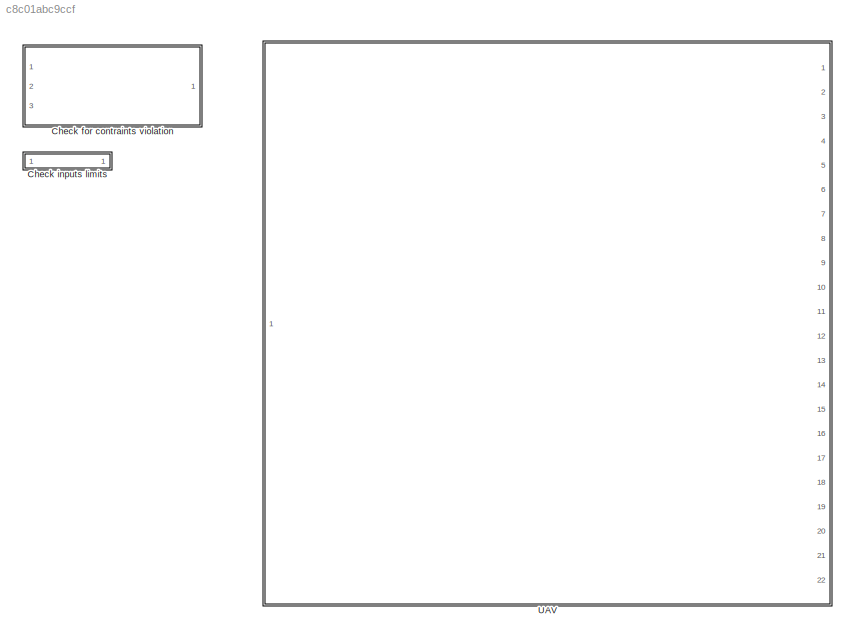
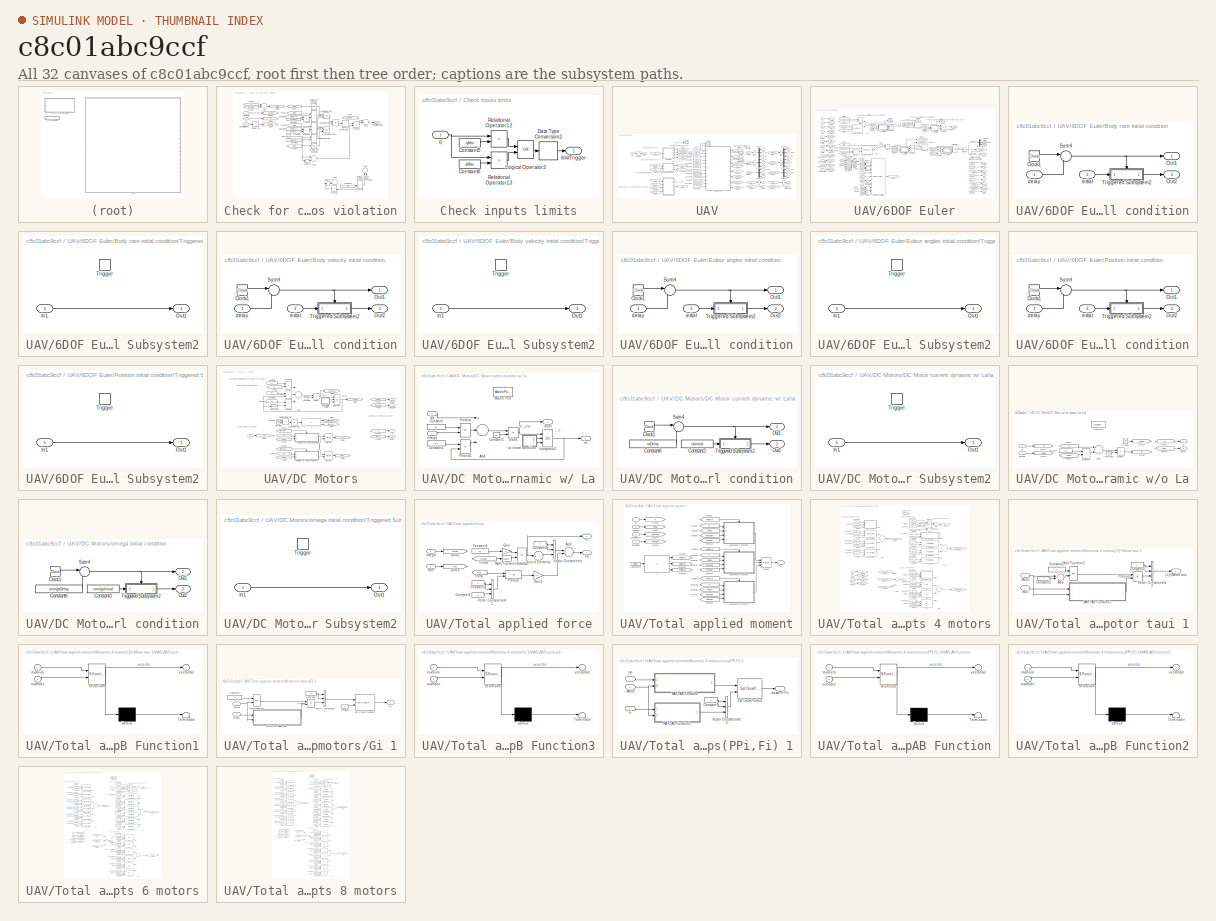
[diagram: thumbnail index - all 32 canvases of the model, root first then tree order]
MODEL slx_c8c01abc9ccf
KIND library
CONFIG AbsTol = auto
CONFIG FixedStep = auto
CONFIG MaxStep = auto
CONFIG MinStep = auto
CONFIG RelTol = 1e-3
CONFIG SampleTimeConstraint = Unconstrained
CONFIG Solver = ode45
CONFIG SolverMode = Auto
CONFIG SolverName = ode45
CONFIG StartTime = 0.0
CONFIG StopTime = 10.0
BLOCK [SubSystem] Check for contraints violation
  Ports = [3, 1]
  RequestExecContextInheritance = off
  Variant = off
BLOCK [Sum] Check for contraints violation/Add
  InputSameDT = off
  Inputs = +-
  OutDataTypeStr = Inherit: Inherit via internal rule
  Ports = [2, 1]
  SaturateOnIntegerOverflow = off
BLOCK [Sum] Check for contraints violation/Add1
  InputSameDT = off
  OutDataTypeStr = Inherit: Inherit via internal rule
  Ports = [2, 1]
  SaturateOnIntegerOverflow = off
BLOCK [Sum] Check for contraints violation/Add2
  InputSameDT = off
  Inputs = +-
  OutDataTypeStr = Inherit: Inherit via internal rule
  Ports = [2, 1]
  SaturateOnIntegerOverflow = off
BLOCK [Sum] Check for contraints violation/Add3
  Commented = on
  InputSameDT = off
  OutDataTypeStr = Inherit: Inherit via internal rule
  Ports = [2, 1]
  SaturateOnIntegerOverflow = off
BLOCK [Sum] Check for contraints violation/Add4
  Commented = on
  InputSameDT = off
  Inputs = -+
  OutDataTypeStr = Inherit: Inherit via internal rule
  Ports = [2, 1]
  SaturateOnIntegerOverflow = off
BLOCK [Clock] Check for contraints violation/Clock
BLOCK [Reference] Check for contraints violation/Compare To Constant  REF=simulink/Logic and Bit
Operations/Compare
To Constant
  Ports = [1, 1]
  SourceBlock = simulink/Logic and Bit\nOperations/Compare\nTo Constant
  SourceType = Compare To Constant
BLOCK [Reference] Check for contraints violation/Compare To Constant3  REF=simulink/Logic and Bit
Operations/Compare
To Constant
  Ports = [1, 1]
  SourceBlock = simulink/Logic and Bit\nOperations/Compare\nTo Constant
  SourceType = Compare To Constant
BLOCK [Constant] Check for contraints violation/Constant1
  Commented = on
BLOCK [Constant] Check for contraints violation/Constant2
  Value = currentTimeThreshold
BLOCK [Constant] Check for contraints violation/Constant3
  Commented = on
  Value = 0.05
BLOCK [Constant] Check for contraints violation/Constant4
  Value = violationFactor
BLOCK [Constant] Check for contraints violation/Constant5
  Value = lowerQTol
BLOCK [Constant] Check for contraints violation/Constant6
  Value = violationFactor
BLOCK [Constant] Check for contraints violation/Constant7
  Value = upperQTol
BLOCK [DataTypeConversion] Check for contraints violation/Data Type Conversion2
  OutDataTypeStr = double
  RndMeth = Floor
  SaturateOnIntegerOverflow = off
BLOCK [From] Check for contraints violation/From
  GotoTag = errorQ
BLOCK [From] Check for contraints violation/From1
  GotoTag = qDesired
BLOCK [From] Check for contraints violation/From2
  GotoTag = errorQ
BLOCK [From] Check for contraints violation/From3
  GotoTag = errorQ
BLOCK [From] Check for contraints violation/From4
  GotoTag = errorQ
BLOCK [From] Check for contraints violation/From5
  GotoTag = q
BLOCK [From] Check for contraints violation/From7
  GotoTag = sumVioliationQ
BLOCK [Goto] Check for contraints violation/Goto1
  GotoTag = q
BLOCK [Goto] Check for contraints violation/Goto33
  GotoTag = qDesired
BLOCK [Goto] Check for contraints violation/Goto4
  GotoTag = sumVioliationQ
BLOCK [Goto] Check for contraints violation/Goto5
  GotoTag = errorQ
BLOCK [Logic] Check for contraints violation/Logical Operator
  AllPortsSameDT = off
  Inputs = 3
  OutDataTypeStr = boolean
  Ports = [3, 1]
BLOCK [Logic] Check for contraints violation/Logical Operator1
  AllPortsSameDT = off
  Inputs = 3
  OutDataTypeStr = boolean
  Ports = [3, 1]
BLOCK [Logic] Check for contraints violation/Logical Operator2
  AllPortsSameDT = off
  Operator = OR
  OutDataTypeStr = boolean
  Ports = [2, 1]
BLOCK [Memory] Check for contraints violation/Memory1
BLOCK [Memory] Check for contraints violation/Memory11
BLOCK [Memory] Check for contraints violation/Memory2
  Commented = on
BLOCK [Product] Check for contraints violation/Product
  InputSameDT = off
  OutDataTypeStr = Inherit: Inherit via internal rule
  Ports = [2, 1]
  RndMeth = Floor
  SaturateOnIntegerOverflow = off
BLOCK [Product] Check for contraints violation/Product1
  InputSameDT = off
  OutDataTypeStr = Inherit: Inherit via internal rule
  Ports = [2, 1]
  RndMeth = Floor
  SaturateOnIntegerOverflow = off
BLOCK [Product] Check for contraints violation/Product2
  InputSameDT = off
  OutDataTypeStr = Inherit: Inherit via internal rule
  Ports = [2, 1]
  RndMeth = Floor
  SaturateOnIntegerOverflow = off
BLOCK [Product] Check for contraints violation/Product3
  Commented = on
  InputSameDT = off
  OutDataTypeStr = Inherit: Inherit via internal rule
  Ports = [2, 1]
  RndMeth = Floor
  SaturateOnIntegerOverflow = off
BLOCK [RelationalOperator] Check for contraints violation/Relational Operator
  InputSameDT = off
  Operator = >
  OutDataTypeStr = boolean
  Ports = [2, 1]
  ZeroCross = off
BLOCK [RelationalOperator] Check for contraints violation/Relational Operator1
  InputSameDT = off
  Operator = >
  OutDataTypeStr = boolean
  Ports = [2, 1]
  ZeroCross = off
BLOCK [RelationalOperator] Check for contraints violation/Relational Operator2
  InputSameDT = off
  Operator = <
  OutDataTypeStr = boolean
  Ports = [2, 1]
  ZeroCross = off
BLOCK [RelationalOperator] Check for contraints violation/Relational Operator3
  Commented = on
  InputSameDT = off
  Operator = <
  OutDataTypeStr = boolean
  Ports = [2, 1]
  ZeroCross = off
BLOCK [Inport] Check for contraints violation/q
  IconDisplay = Port number
  Port = 2
BLOCK [Inport] Check for contraints violation/qDesired
  IconDisplay = Port number
BLOCK [Inport] Check for contraints violation/sumVioliationQ
  IconDisplay = Port number
  Port = 3
BLOCK [Outport] Check for contraints violation/sumVioliationQOut
  IconDisplay = Port number
BLOCK [SubSystem] Check inputs limits
  Ports = [1, 1]
  RequestExecContextInheritance = off
  Variant = off
BLOCK [Constant] Check inputs limits/Constant5
  Value = qMin
BLOCK [Constant] Check inputs limits/Constant6
  Value = qMax
BLOCK [DataTypeConversion] Check inputs limits/Data Type Conversion2
  OutDataTypeStr = double
  RndMeth = Floor
  SaturateOnIntegerOverflow = off
BLOCK [Logic] Check inputs limits/Logical Operator2
  AllPortsSameDT = off
  Operator = OR
  OutDataTypeStr = boolean
  Ports = [2, 1]
BLOCK [RelationalOperator] Check inputs limits/Relational Operator12
  InputSameDT = off
  Operator = <
  OutDataTypeStr = boolean
  Ports = [2, 1]
  ZeroCross = off
BLOCK [RelationalOperator] Check inputs limits/Relational Operator13
  InputSameDT = off
  Operator = >
  OutDataTypeStr = boolean
  Ports = [2, 1]
  ZeroCross = off
BLOCK [Outport] Check inputs limits/limitTrigger
  IconDisplay = Port number
BLOCK [Inport] Check inputs limits/q
  IconDisplay = Port number
BLOCK [SubSystem] UAV
  Ports = [1, 22]
  RequestExecContextInheritance = off
  Variant = off
BLOCK [Scope] UAV/ omega
  Commented = on
  Ports = [1]
  ScopeSpecificationString = Simulink.scopes.TimeScopeBlockCfg('CurrentConfiguration', extmgr.ConfigurationSet(extmgr.Configuration('Core','General UI',true),extmgr.Configuration('Core','Source UI',true),extmgr.Configuration('Sources','WiredSimulink',true),extmgr.Configuration('Visuals','Time Domain',true,'SerializedDisplays',{struct('MinYLimReal','-120.20208','MaxYLimReal','1081.8187','YLabelReal','','MinYLimMag',' 0.00000',...<+1473ch>
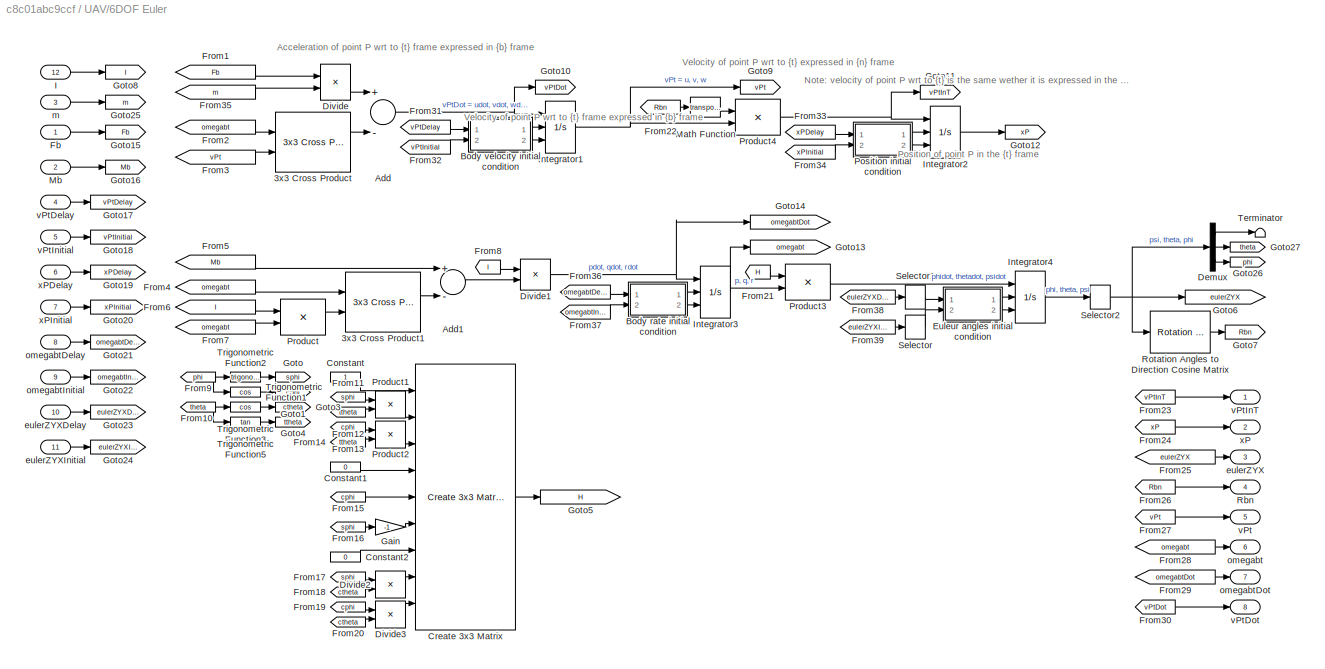
BLOCK [SubSystem] UAV/6DOF Euler
  Ports = [12, 8]
  RequestExecContextInheritance = off
  Variant = off
BLOCK [Reference] UAV/6DOF Euler/3x3 Cross Product  REF=aerolibutil/3x3 Cross Product
  Ports = [2, 1]
  SourceBlock = aerolibutil/3x3 Cross Product
  SourceType = CrossProduct
BLOCK [Reference] UAV/6DOF Euler/3x3 Cross Product1  REF=aerolibutil/3x3 Cross Product
  Ports = [2, 1]
  SourceBlock = aerolibutil/3x3 Cross Product
  SourceType = CrossProduct
BLOCK [Sum] UAV/6DOF Euler/Add
  InputSameDT = off
  Inputs = +-
  OutDataTypeStr = Inherit: Inherit via internal rule
  Ports = [2, 1]
  SaturateOnIntegerOverflow = off
BLOCK [Sum] UAV/6DOF Euler/Add1
  InputSameDT = off
  Inputs = +-
  OutDataTypeStr = Inherit: Inherit via internal rule
  Ports = [2, 1]
  SaturateOnIntegerOverflow = off
BLOCK [SubSystem] UAV/6DOF Euler/Body rate initial condition
  Ports = [2, 2]
  RequestExecContextInheritance = off
  Variant = off
BLOCK [Clock] UAV/6DOF Euler/Body rate initial condition/Clock1
BLOCK [Outport] UAV/6DOF Euler/Body rate initial condition/Out1
  IconDisplay = Port number
BLOCK [Outport] UAV/6DOF Euler/Body rate initial condition/Out2
  IconDisplay = Port number
  Port = 2
BLOCK [Sum] UAV/6DOF Euler/Body rate initial condition/Sum4
  IconShape = round
  InputSameDT = off
  Inputs = |-+
  OutDataTypeStr = Inherit: Inherit via internal rule
  Ports = [2, 1]
  SaturateOnIntegerOverflow = off
BLOCK [SubSystem] UAV/6DOF Euler/Body rate initial condition/Triggered Subsystem2
  Ports = [1, 1, 0, 1]
  RequestExecContextInheritance = off
  TreatAsAtomicUnit = on
  Variant = off
BLOCK [Inport] UAV/6DOF Euler/Body rate initial condition/Triggered Subsystem2/In1
  IconDisplay = Port number
BLOCK [Outport] UAV/6DOF Euler/Body rate initial condition/Triggered Subsystem2/Out1
  IconDisplay = Port number
BLOCK [TriggerPort] UAV/6DOF Euler/Body rate initial condition/Triggered Subsystem2/Trigger
  Ports = []
  StatesWhenEnabling = held
  TriggerType = falling
  VariantControl = Variant
BLOCK [Inport] UAV/6DOF Euler/Body rate initial condition/delay
  IconDisplay = Port number
BLOCK [Inport] UAV/6DOF Euler/Body rate initial condition/initial
  IconDisplay = Port number
  Port = 2
BLOCK [SubSystem] UAV/6DOF Euler/Body velocity initial condition
  Ports = [2, 2]
  RequestExecContextInheritance = off
  Variant = off
BLOCK [Clock] UAV/6DOF Euler/Body velocity initial condition/Clock1
BLOCK [Outport] UAV/6DOF Euler/Body velocity initial condition/Out1
  IconDisplay = Port number
BLOCK [Outport] UAV/6DOF Euler/Body velocity initial condition/Out2
  IconDisplay = Port number
  Port = 2
BLOCK [Sum] UAV/6DOF Euler/Body velocity initial condition/Sum4
  IconShape = round
  InputSameDT = off
  Inputs = |-+
  OutDataTypeStr = Inherit: Inherit via internal rule
  Ports = [2, 1]
  SaturateOnIntegerOverflow = off
BLOCK [SubSystem] UAV/6DOF Euler/Body velocity initial condition/Triggered Subsystem2
  Ports = [1, 1, 0, 1]
  RequestExecContextInheritance = off
  TreatAsAtomicUnit = on
  Variant = off
BLOCK [Inport] UAV/6DOF Euler/Body velocity initial condition/Triggered Subsystem2/In1
  IconDisplay = Port number
BLOCK [Outport] UAV/6DOF Euler/Body velocity initial condition/Triggered Subsystem2/Out1
  IconDisplay = Port number
BLOCK [TriggerPort] UAV/6DOF Euler/Body velocity initial condition/Triggered Subsystem2/Trigger
  Ports = []
  StatesWhenEnabling = held
  TriggerType = falling
  VariantControl = Variant
BLOCK [Inport] UAV/6DOF Euler/Body velocity initial condition/delay
  IconDisplay = Port number
BLOCK [Inport] UAV/6DOF Euler/Body velocity initial condition/initial
  IconDisplay = Port number
  Port = 2
BLOCK [Constant] UAV/6DOF Euler/Constant
BLOCK [Constant] UAV/6DOF Euler/Constant1
  Value = 0
BLOCK [Constant] UAV/6DOF Euler/Constant2
  Value = 0
BLOCK [Reference] UAV/6DOF Euler/Create 3x3 Matrix  REF=aerolibutil/Create 3x3 Matrix
  Ports = [9, 1]
  SourceBlock = aerolibutil/Create 3x3 Matrix
  SourceType = Create 3x3 Matrix
BLOCK [Demux] UAV/6DOF Euler/Demux
  DisplayOption = bar
  Outputs = 3
  Ports = [1, 3]
BLOCK [Product] UAV/6DOF Euler/Divide
  InputSameDT = off
  Inputs = */
  OutDataTypeStr = Inherit: Inherit via internal rule
  Ports = [2, 1]
  RndMeth = Floor
  SaturateOnIntegerOverflow = off
BLOCK [Product] UAV/6DOF Euler/Divide1
  InputSameDT = off
  Inputs = /*
  Multiplication = Matrix(*)
  OutDataTypeStr = Inherit: Inherit via internal rule
  Ports = [2, 1]
  RndMeth = Floor
  SaturateOnIntegerOverflow = off
BLOCK [Product] UAV/6DOF Euler/Divide2
  InputSameDT = off
  Inputs = */
  OutDataTypeStr = Inherit: Inherit via internal rule
  Ports = [2, 1]
  RndMeth = Floor
  SaturateOnIntegerOverflow = off
BLOCK [Product] UAV/6DOF Euler/Divide3
  InputSameDT = off
  Inputs = */
  OutDataTypeStr = Inherit: Inherit via internal rule
  Ports = [2, 1]
  RndMeth = Floor
  SaturateOnIntegerOverflow = off
BLOCK [SubSystem] UAV/6DOF Euler/Euleur angles initial condition
  Ports = [2, 2]
  RequestExecContextInheritance = off
  Variant = off
BLOCK [Clock] UAV/6DOF Euler/Euleur angles initial condition/Clock1
BLOCK [Outport] UAV/6DOF Euler/Euleur angles initial condition/Out1
  IconDisplay = Port number
BLOCK [Outport] UAV/6DOF Euler/Euleur angles initial condition/Out2
  IconDisplay = Port number
  Port = 2
BLOCK [Sum] UAV/6DOF Euler/Euleur angles initial condition/Sum4
  IconShape = round
  InputSameDT = off
  Inputs = |-+
  OutDataTypeStr = Inherit: Inherit via internal rule
  Ports = [2, 1]
  SaturateOnIntegerOverflow = off
BLOCK [SubSystem] UAV/6DOF Euler/Euleur angles initial condition/Triggered Subsystem2
  Ports = [1, 1, 0, 1]
  RequestExecContextInheritance = off
  TreatAsAtomicUnit = on
  Variant = off
BLOCK [Inport] UAV/6DOF Euler/Euleur angles initial condition/Triggered Subsystem2/In1
  IconDisplay = Port number
BLOCK [Outport] UAV/6DOF Euler/Euleur angles initial condition/Triggered Subsystem2/Out1
  IconDisplay = Port number
BLOCK [TriggerPort] UAV/6DOF Euler/Euleur angles initial condition/Triggered Subsystem2/Trigger
  Ports = []
  StatesWhenEnabling = held
  TriggerType = falling
  VariantControl = Variant
BLOCK [Inport] UAV/6DOF Euler/Euleur angles initial condition/delay
  IconDisplay = Port number
BLOCK [Inport] UAV/6DOF Euler/Euleur angles initial condition/initial
  IconDisplay = Port number
  Port = 2
BLOCK [Inport] UAV/6DOF Euler/Fb
  IconDisplay = Port number
BLOCK [From] UAV/6DOF Euler/From1
  GotoTag = Fb
BLOCK [From] UAV/6DOF Euler/From10
  GotoTag = theta
BLOCK [From] UAV/6DOF Euler/From11
  GotoTag = sphi
BLOCK [From] UAV/6DOF Euler/From12
  GotoTag = ttheta
BLOCK [From] UAV/6DOF Euler/From13
  GotoTag = cphi
BLOCK [From] UAV/6DOF Euler/From14
  GotoTag = ttheta
BLOCK [From] UAV/6DOF Euler/From15
  GotoTag = cphi
BLOCK [From] UAV/6DOF Euler/From16
  GotoTag = sphi
BLOCK [From] UAV/6DOF Euler/From17
  GotoTag = sphi
BLOCK [From] UAV/6DOF Euler/From18
  GotoTag = ctheta
BLOCK [From] UAV/6DOF Euler/From19
  GotoTag = cphi
BLOCK [From] UAV/6DOF Euler/From2
  GotoTag = omegabt
BLOCK [From] UAV/6DOF Euler/From20
  GotoTag = ctheta
BLOCK [From] UAV/6DOF Euler/From21
  GotoTag = H
BLOCK [From] UAV/6DOF Euler/From22
  GotoTag = Rbn
BLOCK [From] UAV/6DOF Euler/From23
  GotoTag = vPtInT
BLOCK [From] UAV/6DOF Euler/From24
  GotoTag = xP
BLOCK [From] UAV/6DOF Euler/From25
  GotoTag = eulerZYX
BLOCK [From] UAV/6DOF Euler/From26
  GotoTag = Rbn
BLOCK [From] UAV/6DOF Euler/From27
  GotoTag = vPt
BLOCK [From] UAV/6DOF Euler/From28
  GotoTag = omegabt
BLOCK [From] UAV/6DOF Euler/From29
  GotoTag = omegabtDot
BLOCK [From] UAV/6DOF Euler/From3
  GotoTag = vPt
BLOCK [From] UAV/6DOF Euler/From30
  GotoTag = vPtDot
BLOCK [From] UAV/6DOF Euler/From31
  GotoTag = vPtDelay
BLOCK [From] UAV/6DOF Euler/From32
  GotoTag = vPtInitial
BLOCK [From] UAV/6DOF Euler/From33
  GotoTag = xPDelay
BLOCK [From] UAV/6DOF Euler/From34
  GotoTag = xPInitial
BLOCK [From] UAV/6DOF Euler/From35
  GotoTag = m
BLOCK [From] UAV/6DOF Euler/From36
  GotoTag = omegabtDelay
BLOCK [From] UAV/6DOF Euler/From37
  GotoTag = omegabtInitial
BLOCK [From] UAV/6DOF Euler/From38
  GotoTag = eulerZYXDelay
BLOCK [From] UAV/6DOF Euler/From39
  GotoTag = eulerZYXInitial
BLOCK [From] UAV/6DOF Euler/From4
  GotoTag = omegabt
BLOCK [From] UAV/6DOF Euler/From5
  GotoTag = Mb
BLOCK [From] UAV/6DOF Euler/From6
  GotoTag = I
BLOCK [From] UAV/6DOF Euler/From7
  GotoTag = omegabt
BLOCK [From] UAV/6DOF Euler/From8
  GotoTag = I
BLOCK [From] UAV/6DOF Euler/From9
  GotoTag = phi
BLOCK [Gain] UAV/6DOF Euler/Gain
  Gain = -1
  OutDataTypeStr = Inherit: Inherit via internal rule
  ParamDataTypeStr = Inherit: Inherit via internal rule
  SaturateOnIntegerOverflow = off
BLOCK [Goto] UAV/6DOF Euler/Goto
  GotoTag = sphi
BLOCK [Goto] UAV/6DOF Euler/Goto1
  GotoTag = cphi
BLOCK [Goto] UAV/6DOF Euler/Goto10
  GotoTag = vPtDot
BLOCK [Goto] UAV/6DOF Euler/Goto11
  GotoTag = vPtInT
BLOCK [Goto] UAV/6DOF Euler/Goto12
  GotoTag = xP
BLOCK [Goto] UAV/6DOF Euler/Goto13
  GotoTag = omegabt
BLOCK [Goto] UAV/6DOF Euler/Goto14
  GotoTag = omegabtDot
BLOCK [Goto] UAV/6DOF Euler/Goto15
  GotoTag = Fb
BLOCK [Goto] UAV/6DOF Euler/Goto16
  GotoTag = Mb
BLOCK [Goto] UAV/6DOF Euler/Goto17
  GotoTag = vPtDelay
BLOCK [Goto] UAV/6DOF Euler/Goto18
  GotoTag = vPtInitial
BLOCK [Goto] UAV/6DOF Euler/Goto19
  GotoTag = xPDelay
BLOCK [Goto] UAV/6DOF Euler/Goto20
  GotoTag = xPInitial
BLOCK [Goto] UAV/6DOF Euler/Goto21
  GotoTag = omegabtDelay
BLOCK [Goto] UAV/6DOF Euler/Goto22
  GotoTag = omegabtInitial
BLOCK [Goto] UAV/6DOF Euler/Goto23
  GotoTag = eulerZYXDelay
BLOCK [Goto] UAV/6DOF Euler/Goto24
  GotoTag = eulerZYXInitial
BLOCK [Goto] UAV/6DOF Euler/Goto25
  GotoTag = m
BLOCK [Goto] UAV/6DOF Euler/Goto26
  GotoTag = phi
BLOCK [Goto] UAV/6DOF Euler/Goto27
  GotoTag = theta
BLOCK [Goto] UAV/6DOF Euler/Goto3
  GotoTag = ctheta
BLOCK [Goto] UAV/6DOF Euler/Goto4
  GotoTag = ttheta
BLOCK [Goto] UAV/6DOF Euler/Goto5
  GotoTag = H
BLOCK [Goto] UAV/6DOF Euler/Goto6
  GotoTag = eulerZYX
BLOCK [Goto] UAV/6DOF Euler/Goto7
  GotoTag = Rbn
BLOCK [Goto] UAV/6DOF Euler/Goto8
  GotoTag = I
BLOCK [Goto] UAV/6DOF Euler/Goto9
  GotoTag = vPt
BLOCK [Inport] UAV/6DOF Euler/I
  IconDisplay = Port number
  Port = 12
BLOCK [Integrator] UAV/6DOF Euler/Integrator1
  ExternalReset = falling
  InitialConditionSource = external
  Ports = [3, 1]
BLOCK [Integrator] UAV/6DOF Euler/Integrator2
  ExternalReset = falling
  InitialConditionSource = external
  Ports = [3, 1]
BLOCK [Integrator] UAV/6DOF Euler/Integrator3
  ExternalReset = falling
  InitialConditionSource = external
  Ports = [3, 1]
BLOCK [Integrator] UAV/6DOF Euler/Integrator4
  ExternalReset = falling
  InitialConditionSource = external
  Ports = [3, 1]
  WrapState = on
  WrappedStateLowerValue = -[pi;pi/2;pi]
  WrappedStateUpperValue = [pi;pi/2;pi]
BLOCK [Math] UAV/6DOF Euler/Math Function
  Operator = transpose
  Ports = [1, 1]
BLOCK [Inport] UAV/6DOF Euler/Mb
  IconDisplay = Port number
  Port = 2
BLOCK [SubSystem] UAV/6DOF Euler/Position initial condition
  Ports = [2, 2]
  RequestExecContextInheritance = off
  Variant = off
BLOCK [Clock] UAV/6DOF Euler/Position initial condition/Clock1
BLOCK [Outport] UAV/6DOF Euler/Position initial condition/Out1
  IconDisplay = Port number
BLOCK [Outport] UAV/6DOF Euler/Position initial condition/Out2
  IconDisplay = Port number
  Port = 2
BLOCK [Sum] UAV/6DOF Euler/Position initial condition/Sum4
  IconShape = round
  InputSameDT = off
  Inputs = |-+
  OutDataTypeStr = Inherit: Inherit via internal rule
  Ports = [2, 1]
  SaturateOnIntegerOverflow = off
BLOCK [SubSystem] UAV/6DOF Euler/Position initial condition/Triggered Subsystem2
  Ports = [1, 1, 0, 1]
  RequestExecContextInheritance = off
  TreatAsAtomicUnit = on
  Variant = off
BLOCK [Inport] UAV/6DOF Euler/Position initial condition/Triggered Subsystem2/In1
  IconDisplay = Port number
BLOCK [Outport] UAV/6DOF Euler/Position initial condition/Triggered Subsystem2/Out1
  IconDisplay = Port number
BLOCK [TriggerPort] UAV/6DOF Euler/Position initial condition/Triggered Subsystem2/Trigger
  Ports = []
  StatesWhenEnabling = held
  TriggerType = falling
  VariantControl = Variant
BLOCK [Inport] UAV/6DOF Euler/Position initial condition/delay
  IconDisplay = Port number
BLOCK [Inport] UAV/6DOF Euler/Position initial condition/initial
  IconDisplay = Port number
  Port = 2
BLOCK [Product] UAV/6DOF Euler/Product
  InputSameDT = off
  Multiplication = Matrix(*)
  OutDataTypeStr = Inherit: Inherit via internal rule
  Ports = [2, 1]
  RndMeth = Floor
  SaturateOnIntegerOverflow = off
BLOCK [Product] UAV/6DOF Euler/Product1
  InputSameDT = off
  OutDataTypeStr = Inherit: Inherit via internal rule
  Ports = [2, 1]
  RndMeth = Floor
  SaturateOnIntegerOverflow = off
BLOCK [Product] UAV/6DOF Euler/Product2
  InputSameDT = off
  OutDataTypeStr = Inherit: Inherit via internal rule
  Ports = [2, 1]
  RndMeth = Floor
  SaturateOnIntegerOverflow = off
BLOCK [Product] UAV/6DOF Euler/Product3
  InputSameDT = off
  Multiplication = Matrix(*)
  OutDataTypeStr = Inherit: Inherit via internal rule
  Ports = [2, 1]
  RndMeth = Floor
  SaturateOnIntegerOverflow = off
BLOCK [Product] UAV/6DOF Euler/Product4
  InputSameDT = off
  Multiplication = Matrix(*)
  OutDataTypeStr = Inherit: Inherit via internal rule
  Ports = [2, 1]
  RndMeth = Floor
  SaturateOnIntegerOverflow = off
BLOCK [Outport] UAV/6DOF Euler/Rbn
  IconDisplay = Port number
  Port = 4
BLOCK [Reference] UAV/6DOF Euler/Rotation Angles to Direction Cosine Matrix  REF=aerolibtransform2/Rotation Angles to
Direction Cosine Matrix
  AttributesFormatString = Rotation Order: %<rotationOrder>
  Ports = [1, 1]
  SourceBlock = aerolibtransform2/Rotation Angles to\nDirection Cosine Matrix
  SourceType = Ang2DCM
BLOCK [Selector] UAV/6DOF Euler/Selector
  IndexOptions = Index vector (dialog)
  Indices = [3 2 1]
  InputPortWidth = 3
  OutputSizes = 1
  Ports = [1, 1]
BLOCK [Selector] UAV/6DOF Euler/Selector1
  IndexOptions = Index vector (dialog)
  Indices = [3 2 1]
  InputPortWidth = 3
  OutputSizes = 1
  Ports = [1, 1]
BLOCK [Selector] UAV/6DOF Euler/Selector2
  IndexOptions = Index vector (dialog)
  Indices = [3 2 1]
  InputPortWidth = 3
  OutputSizes = 1
  Ports = [1, 1]
BLOCK [Terminator] UAV/6DOF Euler/Terminator
BLOCK [Trigonometry] UAV/6DOF Euler/Trigonometric Function1
  Operator = cos
  Ports = [1, 1]
BLOCK [Trigonometry] UAV/6DOF Euler/Trigonometric Function2
  Ports = [1, 1]
BLOCK [Trigonometry] UAV/6DOF Euler/Trigonometric Function3
  Operator = cos
  Ports = [1, 1]
BLOCK [Trigonometry] UAV/6DOF Euler/Trigonometric Function5
  Operator = tan
  Ports = [1, 1]
BLOCK [Outport] UAV/6DOF Euler/eulerZYX
  IconDisplay = Port number
  Port = 3
BLOCK [Inport] UAV/6DOF Euler/eulerZYXDelay
  IconDisplay = Port number
  Port = 10
BLOCK [Inport] UAV/6DOF Euler/eulerZYXInitial
  IconDisplay = Port number
  Port = 11
BLOCK [Inport] UAV/6DOF Euler/m
  IconDisplay = Port number
  Port = 3
BLOCK [Outport] UAV/6DOF Euler/omegabt
  IconDisplay = Port number
  Port = 6
BLOCK [Inport] UAV/6DOF Euler/omegabtDelay
  IconDisplay = Port number
  Port = 8
BLOCK [Outport] UAV/6DOF Euler/omegabtDot
  IconDisplay = Port number
  Port = 7
BLOCK [Inport] UAV/6DOF Euler/omegabtInitial
  IconDisplay = Port number
  Port = 9
BLOCK [Outport] UAV/6DOF Euler/vPt
  IconDisplay = Port number
  Port = 5
BLOCK [Inport] UAV/6DOF Euler/vPtDelay
  IconDisplay = Port number
  Port = 4
BLOCK [Outport] UAV/6DOF Euler/vPtDot
  IconDisplay = Port number
  Port = 8
BLOCK [Outport] UAV/6DOF Euler/vPtInT
  IconDisplay = Port number
BLOCK [Inport] UAV/6DOF Euler/vPtInitial
  IconDisplay = Port number
  Port = 5
BLOCK [Outport] UAV/6DOF Euler/xP
  IconDisplay = Port number
  Port = 2
BLOCK [Inport] UAV/6DOF Euler/xPDelay
  IconDisplay = Port number
  Port = 6
BLOCK [Inport] UAV/6DOF Euler/xPInitial
  IconDisplay = Port number
  Port = 7
BLOCK [Constant] UAV/Constant1
  Value = vPtDelay
BLOCK [Constant] UAV/Constant10
  Value = eulerZYXInitial
BLOCK [Constant] UAV/Constant2
  Value = xPInitial
BLOCK [Constant] UAV/Constant3
  Value = omegabtDelay
BLOCK [Constant] UAV/Constant4
  Value = I
BLOCK [Constant] UAV/Constant5
  Value = vPtInitial
BLOCK [Constant] UAV/Constant6
  Value = xPDelay
BLOCK [Constant] UAV/Constant7
  Value = m
BLOCK [Constant] UAV/Constant8
  Value = omegabtInitial
BLOCK [Constant] UAV/Constant9
  Value = eulerZYXDelay
BLOCK [SubSystem] UAV/DC Motors
  Ports = [1, 4]
  RequestExecContextInheritance = off
  Variant = off
BLOCK [Sum] UAV/DC Motors/Add1
  InputSameDT = off
  Inputs = +--
  OutDataTypeStr = Inherit: Inherit via internal rule
  Ports = [3, 1]
  SaturateOnIntegerOverflow = off
BLOCK [Constant] UAV/DC Motors/Constant2
  Value = 0
BLOCK [Constant] UAV/DC Motors/Constant3
  Value = Bm
BLOCK [Constant] UAV/DC Motors/Constant4
  Value = kD
BLOCK [Constant] UAV/DC Motors/Constant5
  Value = Jm
BLOCK [Constant] UAV/DC Motors/Constant6
  Value = km
BLOCK [Constant] UAV/DC Motors/Constant7
  Value = La
BLOCK [SubSystem] UAV/DC Motors/DC Motor current dynamic w// La
  Ports = [2, 2, 0, 0, 0, 0, 0, 1]
  RequestExecContextInheritance = off
  TreatAsAtomicUnit = on
  Variant = off
BLOCK [ActionPort] UAV/DC Motors/DC Motor current dynamic w// La/Action Port
BLOCK [Sum] UAV/DC Motors/DC Motor current dynamic w// La/Add
  InputSameDT = off
  Inputs = +--
  OutDataTypeStr = Inherit: Inherit via internal rule
  Ports = [3, 1]
  SaturateOnIntegerOverflow = off
BLOCK [Constant] UAV/DC Motors/DC Motor current dynamic w// La/Constant
  Value = ke
BLOCK [Constant] UAV/DC Motors/DC Motor current dynamic w// La/Constant1
  Value = Ra
BLOCK [Constant] UAV/DC Motors/DC Motor current dynamic w// La/Constant2
  Value = La
BLOCK [Product] UAV/DC Motors/DC Motor current dynamic w// La/Divide
  InputSameDT = off
  Inputs = */
  OutDataTypeStr = Inherit: Inherit via internal rule
  Ports = [2, 1]
  RndMeth = Floor
  SaturateOnIntegerOverflow = off
BLOCK [Integrator] UAV/DC Motors/DC Motor current dynamic w// La/Integrator2
  ExternalReset = falling
  InitialConditionSource = external
  Ports = [3, 1]
BLOCK [Product] UAV/DC Motors/DC Motor current dynamic w// La/Product
  InputSameDT = off
  OutDataTypeStr = Inherit: Inherit via internal rule
  Ports = [2, 1]
  RndMeth = Floor
  SaturateOnIntegerOverflow = off
BLOCK [Product] UAV/DC Motors/DC Motor current dynamic w// La/Product1
  InputSameDT = off
  OutDataTypeStr = Inherit: Inherit via internal rule
  Ports = [2, 1]
  RndMeth = Floor
  SaturateOnIntegerOverflow = off
BLOCK [Inport] UAV/DC Motors/DC Motor current dynamic w// La/Va
  IconDisplay = Port number
BLOCK [Outport] UAV/DC Motors/DC Motor current dynamic w// La/ia
  IconDisplay = Port number
BLOCK [SubSystem] UAV/DC Motors/DC Motor current dynamic w// La/ia initial condition
  Ports = [0, 2]
  RequestExecContextInheritance = off
  Variant = off
BLOCK [Clock] UAV/DC Motors/DC Motor current dynamic w// La/ia initial condition/Clock1
BLOCK [Constant] UAV/DC Motors/DC Motor current dynamic w// La/ia initial condition/Constant3
  Value = iaInitial
BLOCK [Constant] UAV/DC Motors/DC Motor current dynamic w// La/ia initial condition/Constant6
  Value = iaDelay
BLOCK [Outport] UAV/DC Motors/DC Motor current dynamic w// La/ia initial condition/Out1
  IconDisplay = Port number
BLOCK [Outport] UAV/DC Motors/DC Motor current dynamic w// La/ia initial condition/Out2
  IconDisplay = Port number
  Port = 2
BLOCK [Sum] UAV/DC Motors/DC Motor current dynamic w// La/ia initial condition/Sum4
  IconShape = round
  InputSameDT = off
  Inputs = |-+
  OutDataTypeStr = Inherit: Inherit via internal rule
  Ports = [2, 1]
  SaturateOnIntegerOverflow = off
BLOCK [SubSystem] UAV/DC Motors/DC Motor current dynamic w// La/ia initial condition/Triggered Subsystem2
  Ports = [1, 1, 0, 1]
  RequestExecContextInheritance = off
  TreatAsAtomicUnit = on
  Variant = off
BLOCK [Inport] UAV/DC Motors/DC Motor current dynamic w// La/ia initial condition/Triggered Subsystem2/In1
  IconDisplay = Port number
BLOCK [Outport] UAV/DC Motors/DC Motor current dynamic w// La/ia initial condition/Triggered Subsystem2/Out1
  IconDisplay = Port number
BLOCK [TriggerPort] UAV/DC Motors/DC Motor current dynamic w// La/ia initial condition/Triggered Subsystem2/Trigger
  Ports = []
  StatesWhenEnabling = held
  TriggerType = falling
  VariantControl = Variant
BLOCK [Outport] UAV/DC Motors/DC Motor current dynamic w// La/iaDot
  IconDisplay = Port number
  Port = 2
BLOCK [Inport] UAV/DC Motors/DC Motor current dynamic w// La/omega
  IconDisplay = Port number
  Port = 2
BLOCK [SubSystem] UAV/DC Motors/DC Motor current dynamic w//o La
  Ports = [2, 2, 0, 0, 0, 0, 0, 1]
  RequestExecContextInheritance = off
  TreatAsAtomicUnit = on
  Variant = off
BLOCK [ActionPort] UAV/DC Motors/DC Motor current dynamic w//o La/Action Port
BLOCK [Sum] UAV/DC Motors/DC Motor current dynamic w//o La/Add2
  InputSameDT = off
  Inputs = +-
  OutDataTypeStr = Inherit: Inherit via internal rule
  Ports = [2, 1]
  SaturateOnIntegerOverflow = off
BLOCK [Constant] UAV/DC Motors/DC Motor current dynamic w//o La/Constant7
  Value = ke
BLOCK [Constant] UAV/DC Motors/DC Motor current dynamic w//o La/Constant9
  Value = Ra
BLOCK [Product] UAV/DC Motors/DC Motor current dynamic w//o La/Divide2
  InputSameDT = off
  Inputs = */
  OutDataTypeStr = Inherit: Inherit via internal rule
  Ports = [2, 1]
  RndMeth = Floor
  SaturateOnIntegerOverflow = off
BLOCK [From] UAV/DC Motors/DC Motor current dynamic w//o La/From1
  GotoTag = ia
BLOCK [From] UAV/DC Motors/DC Motor current dynamic w//o La/From2
  GotoTag = iaDot
BLOCK [From] UAV/DC Motors/DC Motor current dynamic w//o La/From7
  GotoTag = Va
BLOCK [From] UAV/DC Motors/DC Motor current dynamic w//o La/From8
  GotoTag = omega
BLOCK [Goto] UAV/DC Motors/DC Motor current dynamic w//o La/Goto1
  GotoTag = Va
BLOCK [Goto] UAV/DC Motors/DC Motor current dynamic w//o La/Goto2
  GotoTag = omega
BLOCK [Goto] UAV/DC Motors/DC Motor current dynamic w//o La/Goto5
  GotoTag = ia
BLOCK [Goto] UAV/DC Motors/DC Motor current dynamic w//o La/Goto7
  GotoTag = iaDot
BLOCK [Ground] UAV/DC Motors/DC Motor current dynamic w//o La/Ground
BLOCK [Product] UAV/DC Motors/DC Motor current dynamic w//o La/Product5
  InputSameDT = off
  OutDataTypeStr = Inherit: Inherit via internal rule
  Ports = [2, 1]
  RndMeth = Floor
  SaturateOnIntegerOverflow = off
BLOCK [Inport] UAV/DC Motors/DC Motor current dynamic w//o La/Va
  IconDisplay = Port number
BLOCK [Outport] UAV/DC Motors/DC Motor current dynamic w//o La/ia
  IconDisplay = Port number
BLOCK [Outport] UAV/DC Motors/DC Motor current dynamic w//o La/iaDot
  IconDisplay = Port number
  Port = 2
BLOCK [Inport] UAV/DC Motors/DC Motor current dynamic w//o La/omega
  IconDisplay = Port number
  Port = 2
BLOCK [Product] UAV/DC Motors/Divide1
  InputSameDT = off
  Inputs = */
  OutDataTypeStr = Inherit: Inherit via internal rule
  Ports = [2, 1]
  RndMeth = Floor
  SaturateOnIntegerOverflow = off
BLOCK [From] UAV/DC Motors/From
  GotoTag = Va
BLOCK [From] UAV/DC Motors/From1
  GotoTag = withLaEnable
BLOCK [From] UAV/DC Motors/From10
  GotoTag = withoutLaEnable
BLOCK [From] UAV/DC Motors/From2
  GotoTag = ia
BLOCK [From] UAV/DC Motors/From3
  GotoTag = ia
BLOCK [From] UAV/DC Motors/From4
  GotoTag = omega
BLOCK [From] UAV/DC Motors/From5
  GotoTag = omegaDot
BLOCK [From] UAV/DC Motors/From6
  GotoTag = iaDot
BLOCK [From] UAV/DC Motors/From7
  GotoTag = omega
BLOCK [From] UAV/DC Motors/From8
  GotoTag = Va
BLOCK [From] UAV/DC Motors/From9
  GotoTag = omega
BLOCK [Goto] UAV/DC Motors/Goto1
  GotoTag = omega
BLOCK [Goto] UAV/DC Motors/Goto2
  GotoTag = Va
BLOCK [Goto] UAV/DC Motors/Goto3
  GotoTag = omegaDot
BLOCK [Goto] UAV/DC Motors/Goto4
  GotoTag = withLaEnable
BLOCK [Goto] UAV/DC Motors/Goto5
  GotoTag = ia
BLOCK [Goto] UAV/DC Motors/Goto6
  GotoTag = iaDot
BLOCK [Goto] UAV/DC Motors/Goto7
  GotoTag = withoutLaEnable
BLOCK [If] UAV/DC Motors/If
  IfExpression = u1 == 0
  Ports = [1, 2]
BLOCK [Integrator] UAV/DC Motors/Integrator1
  ExternalReset = falling
  InitialConditionSource = external
  Ports = [3, 1]
BLOCK [Logic] UAV/DC Motors/Logical Operator
  AllPortsSameDT = off
  Inputs = 1
  Operator = OR
  OutDataTypeStr = boolean
  Ports = [1, 1]
BLOCK [Math] UAV/DC Motors/Math Function
  Operator = square
  Ports = [1, 1]
BLOCK [Merge] UAV/DC Motors/Merge
  Ports = [2, 1]
BLOCK [Merge] UAV/DC Motors/Merge1
  Ports = [2, 1]
BLOCK [Product] UAV/DC Motors/Product2
  InputSameDT = off
  OutDataTypeStr = Inherit: Inherit via internal rule
  Ports = [2, 1]
  RndMeth = Floor
  SaturateOnIntegerOverflow = off
BLOCK [Product] UAV/DC Motors/Product3
  InputSameDT = off
  OutDataTypeStr = Inherit: Inherit via internal rule
  Ports = [2, 1]
  RndMeth = Floor
  SaturateOnIntegerOverflow = off
BLOCK [Product] UAV/DC Motors/Product4
  InputSameDT = off
  OutDataTypeStr = Inherit: Inherit via internal rule
  Ports = [2, 1]
  RndMeth = Floor
  SaturateOnIntegerOverflow = off
BLOCK [RelationalOperator] UAV/DC Motors/Relational Operator
  InputSameDT = off
  Operator = ==
  OutDataTypeStr = boolean
  Ports = [2, 1]
BLOCK [Inport] UAV/DC Motors/Va
  IconDisplay = Port number
BLOCK [Outport] UAV/DC Motors/ia
  IconDisplay = Port number
  Port = 3
BLOCK [Outport] UAV/DC Motors/iaDot
  IconDisplay = Port number
  Port = 4
BLOCK [Outport] UAV/DC Motors/omega
  IconDisplay = Port number
BLOCK [SubSystem] UAV/DC Motors/omega initial condition
  Ports = [0, 2]
  RequestExecContextInheritance = off
  Variant = off
BLOCK [Clock] UAV/DC Motors/omega initial condition/Clock1
BLOCK [Constant] UAV/DC Motors/omega initial condition/Constant3
  Value = omegaInitial
BLOCK [Constant] UAV/DC Motors/omega initial condition/Constant6
  Value = omegaDelay
BLOCK [Outport] UAV/DC Motors/omega initial condition/Out1
  IconDisplay = Port number
BLOCK [Outport] UAV/DC Motors/omega initial condition/Out2
  IconDisplay = Port number
  Port = 2
BLOCK [Sum] UAV/DC Motors/omega initial condition/Sum4
  IconShape = round
  InputSameDT = off
  Inputs = |-+
  OutDataTypeStr = Inherit: Inherit via internal rule
  Ports = [2, 1]
  SaturateOnIntegerOverflow = off
BLOCK [SubSystem] UAV/DC Motors/omega initial condition/Triggered Subsystem2
  Ports = [1, 1, 0, 1]
  RequestExecContextInheritance = off
  TreatAsAtomicUnit = on
  Variant = off
BLOCK [Inport] UAV/DC Motors/omega initial condition/Triggered Subsystem2/In1
  IconDisplay = Port number
BLOCK [Outport] UAV/DC Motors/omega initial condition/Triggered Subsystem2/Out1
  IconDisplay = Port number
BLOCK [TriggerPort] UAV/DC Motors/omega initial condition/Triggered Subsystem2/Trigger
  Ports = []
  StatesWhenEnabling = held
  TriggerType = falling
  VariantControl = Variant
BLOCK [Outport] UAV/DC Motors/omegaDot
  IconDisplay = Port number
  Port = 2
BLOCK [Demux] UAV/Demux
  DisplayOption = bar
  Outputs = 3
  Ports = [1, 3]
BLOCK [Demux] UAV/Demux1
  DisplayOption = bar
  Outputs = 3
  Ports = [1, 3]
BLOCK [Demux] UAV/Demux2
  DisplayOption = bar
  Outputs = 3
  Ports = [1, 3]
BLOCK [Demux] UAV/Demux3
  DisplayOption = bar
  Outputs = 3
  Ports = [1, 3]
BLOCK [Demux] UAV/Demux4
  DisplayOption = bar
  Outputs = 3
  Ports = [1, 3]
BLOCK [Demux] UAV/Demux5
  DisplayOption = bar
  Outputs = 3
  Ports = [1, 3]
BLOCK [Scope] UAV/Euler Angles
  Commented = on
  Ports = [1]
  ScopeSpecificationString = Simulink.scopes.TimeScopeBlockCfg('CurrentConfiguration', extmgr.ConfigurationSet(extmgr.Configuration('Core','General UI',true),extmgr.Configuration('Core','Source UI',true),extmgr.Configuration('Sources','WiredSimulink',true,'DataLoggingVariableName','ScopeData1'),extmgr.Configuration('Visuals','Time Domain',true,'SerializedDisplays',{struct('MinYLimReal','-0.54323','MaxYLimReal','0.06036','YLab...<+1625ch>
BLOCK [Scope] UAV/Fb & Mb
  Commented = on
  NumInputPorts = 2
  Ports = [2]
  ScopeSpecificationString = Simulink.scopes.TimeScopeBlockCfg('CurrentConfiguration', extmgr.ConfigurationSet(extmgr.Configuration('Core','General UI',true),extmgr.Configuration('Core','Source UI',true),extmgr.Configuration('Sources','WiredSimulink',true,'DataLoggingVariableName','ScopeData2'),extmgr.Configuration('Visuals','Time Domain',true,'SerializedDisplays',{struct('MinYLimReal','-3.8547','MaxYLimReal','11.32458','YLab...<+2091ch>
BLOCK [From] UAV/From1
  GotoTag = Fb
BLOCK [From] UAV/From10
  GotoTag = xP
BLOCK [From] UAV/From11
  GotoTag = vPt
BLOCK [From] UAV/From12
  GotoTag = vPtDot
BLOCK [From] UAV/From13
  GotoTag = eulerZYX
BLOCK [From] UAV/From14
  GotoTag = omegabt
BLOCK [From] UAV/From15
  GotoTag = omegabtDot
BLOCK [From] UAV/From16
  GotoTag = omega
BLOCK [From] UAV/From17
  GotoTag = omegaDot
BLOCK [From] UAV/From18
  GotoTag = ia
BLOCK [From] UAV/From19
  GotoTag = iaDot
BLOCK [From] UAV/From2
  GotoTag = Mb
BLOCK [From] UAV/From20
  GotoTag = vPtInT
BLOCK [From] UAV/From3
  GotoTag = omega
BLOCK [From] UAV/From4
  GotoTag = Rbn
BLOCK [From] UAV/From5
  GotoTag = Va
BLOCK [From] UAV/From6
  GotoTag = Fi
BLOCK [From] UAV/From7
  GotoTag = omega
BLOCK [From] UAV/From8
  GotoTag = omegaDot
BLOCK [From] UAV/From9
  GotoTag = omegabt
BLOCK [Goto] UAV/Goto1
  GotoTag = omega
BLOCK [Goto] UAV/Goto14
  GotoTag = vPtInT
BLOCK [Goto] UAV/Goto15
  GotoTag = Va
BLOCK [Goto] UAV/Goto16
  GotoTag = xP
BLOCK [Goto] UAV/Goto17
  GotoTag = eulerZYX
BLOCK [Goto] UAV/Goto18
  GotoTag = Rbn
BLOCK [Goto] UAV/Goto19
  GotoTag = vPt
BLOCK [Goto] UAV/Goto20
  GotoTag = omegabt
BLOCK [Goto] UAV/Goto21
  GotoTag = omegabtDot
BLOCK [Goto] UAV/Goto22
  GotoTag = vPtDot
BLOCK [Goto] UAV/Goto3
  GotoTag = ia
BLOCK [Goto] UAV/Goto4
  GotoTag = omegaDot
BLOCK [Goto] UAV/Goto5
  GotoTag = iaDot
BLOCK [Goto] UAV/Goto6
  GotoTag = Fb
BLOCK [Goto] UAV/Goto7
  GotoTag = Fi
BLOCK [Goto] UAV/Goto9
  GotoTag = Mb
BLOCK [InitialCondition] UAV/IC
  Value = omegaInitial
BLOCK [InitialCondition] UAV/IC1
  Value = xPInitial
BLOCK [InitialCondition] UAV/IC2
  Value = iaInitial
BLOCK [InitialCondition] UAV/IC3
  Value = vPtInitial
BLOCK [InitialCondition] UAV/IC4
  Value = eulerZYXInitial
BLOCK [InitialCondition] UAV/IC5
  Value = omegabtInitial
BLOCK [Scope] UAV/Position
  Commented = on
  Ports = [1]
  ScopeSpecificationString = Simulink.scopes.TimeScopeBlockCfg('CurrentConfiguration', extmgr.ConfigurationSet(extmgr.Configuration('Core','General UI',true),extmgr.Configuration('Core','Source UI',true),extmgr.Configuration('Sources','WiredSimulink',true,'DataLoggingVariableName','ScopeData3'),extmgr.Configuration('Visuals','Time Domain',true,'SerializedDisplays',{struct('MinYLimReal','-204.20939','MaxYLimReal','81.26424','Y...<+1498ch>
BLOCK [Saturate] UAV/Saturation
  InputPortMap = u0
  LowerLimit = VaMin
  Ports = [1, 1]
  UpperLimit = VaMax
BLOCK [Terminator] UAV/Terminator
BLOCK [SubSystem] UAV/Total applied force
  Ports = [2, 2]
  RequestExecContextInheritance = off
  Variant = off
BLOCK [Sum] UAV/Total applied force/Add
  InputSameDT = off
  OutDataTypeStr = Inherit: Inherit via internal rule
  Ports = [2, 1]
  SaturateOnIntegerOverflow = off
BLOCK [Constant] UAV/Total applied force/Constant1
  Value = 0
BLOCK [Constant] UAV/Total applied force/Constant2
  Value = 0
BLOCK [Constant] UAV/Total applied force/Constant3
  Value = g
BLOCK [Constant] UAV/Total applied force/Constant4
  Value = kT
BLOCK [Outport] UAV/Total applied force/Fb
  IconDisplay = Port number
BLOCK [Outport] UAV/Total applied force/Fi
  IconDisplay = Port number
  Port = 2
BLOCK [From] UAV/Total applied force/From1
  GotoTag = omega
BLOCK [From] UAV/Total applied force/From2
  GotoTag = Rbn
BLOCK [Gain] UAV/Total applied force/Gain
  Gain = -1
  OutDataTypeStr = Inherit: Inherit via internal rule
  ParamDataTypeStr = Inherit: Inherit via internal rule
  SaturateOnIntegerOverflow = off
BLOCK [Gain] UAV/Total applied force/Gain1
  Gain = m
  OutDataTypeStr = Inherit: Inherit via internal rule
  ParamDataTypeStr = Inherit: Inherit via internal rule
  SaturateOnIntegerOverflow = off
BLOCK [Goto] UAV/Total applied force/Goto1
  GotoTag = omega
BLOCK [Goto] UAV/Total applied force/Goto3
  GotoTag = Rbn
BLOCK [Math] UAV/Total applied force/Math Function1
  Operator = square
  Ports = [1, 1]
BLOCK [Product] UAV/Total applied force/Product
  InputSameDT = off
  Multiplication = Matrix(*)
  OutDataTypeStr = Inherit: Inherit via internal rule
  Ports = [2, 1]
  RndMeth = Floor
  SaturateOnIntegerOverflow = off
BLOCK [Product] UAV/Total applied force/Product3
  InputSameDT = off
  OutDataTypeStr = Inherit: Inherit via internal rule
  Ports = [2, 1]
  RndMeth = Floor
  SaturateOnIntegerOverflow = off
BLOCK [Inport] UAV/Total applied force/Rbn
  IconDisplay = Port number
  Port = 2
BLOCK [Sum] UAV/Total applied force/Sum of Elements
  InputSameDT = off
  Inputs = +
  OutDataTypeStr = Inherit: Inherit via internal rule
  Ports = [1, 1]
  SaturateOnIntegerOverflow = off
BLOCK [Concatenate] UAV/Total applied force/Vector Concatenate
  NumInputs = 3
  Ports = [3, 1]
BLOCK [Concatenate] UAV/Total applied force/Vector Concatenate1
  NumInputs = 3
  Ports = [3, 1]
BLOCK [Inport] UAV/Total applied force/omega
  IconDisplay = Port number
BLOCK [SubSystem] UAV/Total applied moment
  Ports = [4, 1]
  RequestExecContextInheritance = off
  Variant = off
BLOCK [Constant] UAV/Total applied moment/Constant19
  Value = nMotors
BLOCK [Inport] UAV/Total applied moment/Fi
  IconDisplay = Port number
BLOCK [From] UAV/Total applied moment/From13
  GotoTag = omegabt
BLOCK [From] UAV/Total applied moment/From14
  GotoTag = omegabt
BLOCK [From] UAV/Total applied moment/From2
  GotoTag = nMotors4
BLOCK [From] UAV/Total applied moment/From3
  GotoTag = nMotors6
BLOCK [From] UAV/Total applied moment/From30
  GotoTag = Fi
BLOCK [From] UAV/Total applied moment/From31
  GotoTag = omega
BLOCK [From] UAV/Total applied moment/From32
  GotoTag = omegaDot
BLOCK [From] UAV/Total applied moment/From33
  GotoTag = omegabt
BLOCK [From] UAV/Total applied moment/From35
  GotoTag = Fi
BLOCK [From] UAV/Total applied moment/From36
  GotoTag = omega
BLOCK [From] UAV/Total applied moment/From37
  GotoTag = omegaDot
BLOCK [From] UAV/Total applied moment/From4
  GotoTag = nMotors8
BLOCK [From] UAV/Total applied moment/From5
  GotoTag = Fi
BLOCK [From] UAV/Total applied moment/From6
  GotoTag = omega
BLOCK [From] UAV/Total applied moment/From8
  GotoTag = omegaDot
BLOCK [Goto] UAV/Total applied moment/Goto1
  GotoTag = Fi
BLOCK [Goto] UAV/Total applied moment/Goto12
  GotoTag = nMotors6
BLOCK [Goto] UAV/Total applied moment/Goto13
  GotoTag = nMotors8
BLOCK [Goto] UAV/Total applied moment/Goto2
  GotoTag = omega
BLOCK [Goto] UAV/Total applied moment/Goto4
  GotoTag = omegaDot
BLOCK [Goto] UAV/Total applied moment/Goto5
  GotoTag = omegabt
BLOCK [Goto] UAV/Total applied moment/Goto6
  GotoTag = nMotors4
BLOCK [If] UAV/Total applied moment/If
  ElseIfExpressions = u1 == 6, u1 == 8
  IfExpression = u1 == 4
  Ports = [1, 3]
  ShowElse = off
BLOCK [Outport] UAV/Total applied moment/Mb
  IconDisplay = Port number
BLOCK [Merge] UAV/Total applied moment/Merge
  Inputs = 3
  Ports = [3, 1]
BLOCK [SubSystem] UAV/Total applied moment/Moments 4 motors
  Ports = [4, 1, 0, 0, 0, 0, 0, 1]
  RequestExecContextInheritance = off
  TreatAsAtomicUnit = on
  Variant = off
BLOCK [SubSystem] UAV/Total applied moment/Moments 4 motors/(-1)^iMotor taui 1
  Ports = [2, 1]
  RequestExecContextInheritance = off
  Variant = off
BLOCK [Outport] UAV/Total applied moment/Moments 4 motors/(-1)^iMotor taui 1/(-1)^iMotor taui
  IconDisplay = Port number
BLOCK [Sum] UAV/Total applied moment/Moments 4 motors/(-1)^iMotor taui 1/Add
  InputSameDT = off
  Inputs = +-
  OutDataTypeStr = Inherit: Inherit via internal rule
  Ports = [2, 1]
  SaturateOnIntegerOverflow = off
BLOCK [Constant] UAV/Total applied moment/Moments 4 motors/(-1)^iMotor taui 1/Constant1
  Value = 0
BLOCK [Constant] UAV/Total applied moment/Moments 4 motors/(-1)^iMotor taui 1/Constant2
  Value = -1
BLOCK [Constant] UAV/Total applied moment/Moments 4 motors/(-1)^iMotor taui 1/Constant3
BLOCK [SubSystem] UAV/Total applied moment/Moments 4 motors/(-1)^iMotor taui 1/MATLAB Function1
  ErrorFcn = Stateflow.Translate.translate
  PermitHierarchicalResolution = ExplicitOnly
  Ports = [2, 1]
  RequestExecContextInheritance = off
  SFBlockType = MATLAB Function
  TreatAsAtomicUnit = on
  Variant = off
BLOCK [Demux] UAV/Total applied moment/Moments 4 motors/(-1)^iMotor taui 1/MATLAB Function1/ Demux 
  Outputs = 1
  Ports = [1, 1]
BLOCK [S-Function] UAV/Total applied moment/Moments 4 motors/(-1)^iMotor taui 1/MATLAB Function1/ SFunction 
  EnableBusSupport = off
  FunctionName = sf_sfun
  PortCounts = [2 2]
  Ports = [2, 2]
  SFunctionDeploymentMode = off
  Tag = Stateflow S-Function uav_library 25
BLOCK [Terminator] UAV/Total applied moment/Moments 4 motors/(-1)^iMotor taui 1/MATLAB Function1/ Terminator 
BLOCK [Inport] UAV/Total applied moment/Moments 4 motors/(-1)^iMotor taui 1/MATLAB Function1/matrixIn
  IconDisplay = Port number
BLOCK [Inport] UAV/Total applied moment/Moments 4 motors/(-1)^iMotor taui 1/MATLAB Function1/rowIndex
  IconDisplay = Port number
  Port = 2
BLOCK [Outport] UAV/Total applied moment/Moments 4 motors/(-1)^iMotor taui 1/MATLAB Function1/vectorOut
  IconDisplay = Port number
BLOCK [Math] UAV/Total applied moment/Moments 4 motors/(-1)^iMotor taui 1/Math Function2
  Operator = pow
  Ports = [2, 1]
BLOCK [Product] UAV/Total applied moment/Moments 4 motors/(-1)^iMotor taui 1/Product1
  InputSameDT = off
  OutDataTypeStr = Inherit: Inherit via internal rule
  Ports = [2, 1]
  RndMeth = Floor
  SaturateOnIntegerOverflow = off
BLOCK [Concatenate] UAV/Total applied moment/Moments 4 motors/(-1)^iMotor taui 1/Vector Concatenate2
  NumInputs = 3
  Ports = [3, 1]
BLOCK [Inport] UAV/Total applied moment/Moments 4 motors/(-1)^iMotor taui 1/iMotor
  IconDisplay = Port number
BLOCK [Inport] UAV/Total applied moment/Moments 4 motors/(-1)^iMotor taui 1/taui
  IconDisplay = Port number
  Port = 2
BLOCK [Reference] UAV/Total applied moment/Moments 4 motors/(-1)^iMotor taui 2  REF=uav_library/UAV/Total applied moment/Moments 4 motors/(-1)^iMotor taui 1  (lib defined in slx_c8c01abc9ccf)
  Ports = [2, 1]
  SourceBlock = uav_library/UAV/Total applied moment/Moments 4 motors/(-1)^iMotor taui 1
  SourceType = SubSystem
BLOCK [Reference] UAV/Total applied moment/Moments 4 motors/(-1)^iMotor taui 3  REF=uav_library/UAV/Total applied moment/Moments 4 motors/(-1)^iMotor taui 1  (lib defined in slx_c8c01abc9ccf)
  Ports = [2, 1]
  SourceBlock = uav_library/UAV/Total applied moment/Moments 4 motors/(-1)^iMotor taui 1
  SourceType = SubSystem
BLOCK [Reference] UAV/Total applied moment/Moments 4 motors/(-1)^iMotor taui 4  REF=uav_library/UAV/Total applied moment/Moments 4 motors/(-1)^iMotor taui 1  (lib defined in slx_c8c01abc9ccf)
  Ports = [2, 1]
  SourceBlock = uav_library/UAV/Total applied moment/Moments 4 motors/(-1)^iMotor taui 1
  SourceType = SubSystem
BLOCK [ActionPort] UAV/Total applied moment/Moments 4 motors/Action Port
BLOCK [Sum] UAV/Total applied moment/Moments 4 motors/Add
  InputSameDT = off
  OutDataTypeStr = Inherit: Inherit via internal rule
  Ports = [2, 1]
  SaturateOnIntegerOverflow = off
BLOCK [Sum] UAV/Total applied moment/Moments 4 motors/Add1
  InputSameDT = off
  Inputs = +++
  OutDataTypeStr = Inherit: Inherit via internal rule
  Ports = [3, 1]
  SaturateOnIntegerOverflow = off
BLOCK [Sum] UAV/Total applied moment/Moments 4 motors/Add2
  InputSameDT = off
  Inputs = ++++
  OutDataTypeStr = Inherit: Inherit via internal rule
  Ports = [4, 1]
  SaturateOnIntegerOverflow = off
BLOCK [Sum] UAV/Total applied moment/Moments 4 motors/Add3
  InputSameDT = off
  Inputs = ++++
  OutDataTypeStr = Inherit: Inherit via internal rule
  Ports = [4, 1]
  SaturateOnIntegerOverflow = off
BLOCK [Sum] UAV/Total applied moment/Moments 4 motors/Add4
  InputSameDT = off
  Inputs = ++++
  OutDataTypeStr = Inherit: Inherit via internal rule
  Ports = [4, 1]
  SaturateOnIntegerOverflow = off
BLOCK [Constant] UAV/Total applied moment/Moments 4 motors/Constant1
  Value = kD
BLOCK [Constant] UAV/Total applied moment/Moments 4 motors/Constant10
  Value = 3
BLOCK [Constant] UAV/Total applied moment/Moments 4 motors/Constant11
  Value = PP
BLOCK [Constant] UAV/Total applied moment/Moments 4 motors/Constant12
  Value = 4
BLOCK [Constant] UAV/Total applied moment/Moments 4 motors/Constant13
  Value = 4
BLOCK [Constant] UAV/Total applied moment/Moments 4 motors/Constant14
  Value = PP
BLOCK [Constant] UAV/Total applied moment/Moments 4 motors/Constant15
  Value = 4
BLOCK [Constant] UAV/Total applied moment/Moments 4 motors/Constant16
BLOCK [Constant] UAV/Total applied moment/Moments 4 motors/Constant17
  Value = PP
BLOCK [Constant] UAV/Total applied moment/Moments 4 motors/Constant2
  Value = Jm
BLOCK [Constant] UAV/Total applied moment/Moments 4 motors/Constant27
BLOCK [Constant] UAV/Total applied moment/Moments 4 motors/Constant3
  Value = 2
BLOCK [Constant] UAV/Total applied moment/Moments 4 motors/Constant4
  Value = 3
BLOCK [Constant] UAV/Total applied moment/Moments 4 motors/Constant5
  Value = 2
BLOCK [Constant] UAV/Total applied moment/Moments 4 motors/Constant6
BLOCK [Constant] UAV/Total applied moment/Moments 4 motors/Constant7
  Value = 3
BLOCK [Constant] UAV/Total applied moment/Moments 4 motors/Constant8
  Value = PP
BLOCK [Constant] UAV/Total applied moment/Moments 4 motors/Constant9
  Value = 2
BLOCK [Inport] UAV/Total applied moment/Moments 4 motors/Fi
  IconDisplay = Port number
BLOCK [From] UAV/Total applied moment/Moments 4 motors/From1
  GotoTag = omega
BLOCK [From] UAV/Total applied moment/Moments 4 motors/From10
  GotoTag = omega
BLOCK [From] UAV/Total applied moment/Moments 4 motors/From11
  GotoTag = taui
BLOCK [From] UAV/Total applied moment/Moments 4 motors/From12
  GotoTag = omegaDot
BLOCK [From] UAV/Total applied moment/Moments 4 motors/From15
  GotoTag = taui
BLOCK [From] UAV/Total applied moment/Moments 4 motors/From16
  GotoTag = omega
BLOCK [From] UAV/Total applied moment/Moments 4 motors/From17
  GotoTag = omegabt
BLOCK [From] UAV/Total applied moment/Moments 4 motors/From18
  GotoTag = omega
BLOCK [From] UAV/Total applied moment/Moments 4 motors/From19
  GotoTag = omegabt
BLOCK [From] UAV/Total applied moment/Moments 4 motors/From20
  GotoTag = taui
BLOCK [From] UAV/Total applied moment/Moments 4 motors/From21
  GotoTag = Fi
BLOCK [From] UAV/Total applied moment/Moments 4 motors/From22
  GotoTag = Fi
BLOCK [From] UAV/Total applied moment/Moments 4 motors/From23
  GotoTag = Fi
BLOCK [From] UAV/Total applied moment/Moments 4 motors/From24
  GotoTag = omega
BLOCK [From] UAV/Total applied moment/Moments 4 motors/From25
  GotoTag = omegabt
BLOCK [From] UAV/Total applied moment/Moments 4 motors/From26
  GotoTag = omegabt
BLOCK [From] UAV/Total applied moment/Moments 4 motors/From27
  GotoTag = sumGeneratedMoment
BLOCK [From] UAV/Total applied moment/Moments 4 motors/From28
  GotoTag = sumInducedMoment
BLOCK [From] UAV/Total applied moment/Moments 4 motors/From29
  GotoTag = sumGyroscopicMoment
BLOCK [From] UAV/Total applied moment/Moments 4 motors/From7
  GotoTag = taui
BLOCK [From] UAV/Total applied moment/Moments 4 motors/From9
  GotoTag = Fi
BLOCK [SubSystem] UAV/Total applied moment/Moments 4 motors/Gi 1
  Ports = [3, 1]
  RequestExecContextInheritance = off
  Variant = off
BLOCK [Reference] UAV/Total applied moment/Moments 4 motors/Gi 1/3x3 Cross Product1  REF=aerolibutil/3x3 Cross Product
  Ports = [2, 1]
  SourceBlock = aerolibutil/3x3 Cross Product
  SourceType = CrossProduct
BLOCK [Constant] UAV/Total applied moment/Moments 4 motors/Gi 1/Constant3
  Value = -1
BLOCK [Constant] UAV/Total applied moment/Moments 4 motors/Gi 1/Constant5
  Value = 0
BLOCK [Outport] UAV/Total applied moment/Moments 4 motors/Gi 1/Gi
  IconDisplay = Port number
BLOCK [SubSystem] UAV/Total applied moment/Moments 4 motors/Gi 1/MATLAB Function3
  ErrorFcn = Stateflow.Translate.translate
  PermitHierarchicalResolution = ExplicitOnly
  Ports = [2, 1]
  RequestExecContextInheritance = off
  SFBlockType = MATLAB Function
  TreatAsAtomicUnit = on
  Variant = off
BLOCK [Demux] UAV/Total applied moment/Moments 4 motors/Gi 1/MATLAB Function3/ Demux 
  Outputs = 1
  Ports = [1, 1]
BLOCK [S-Function] UAV/Total applied moment/Moments 4 motors/Gi 1/MATLAB Function3/ SFunction 
  EnableBusSupport = off
  FunctionName = sf_sfun
  PortCounts = [2 2]
  Ports = [2, 2]
  SFunctionDeploymentMode = off
  Tag = Stateflow S-Function uav_library 29
BLOCK [Terminator] UAV/Total applied moment/Moments 4 motors/Gi 1/MATLAB Function3/ Terminator 
BLOCK [Inport] UAV/Total applied moment/Moments 4 motors/Gi 1/MATLAB Function3/matrixIn
  IconDisplay = Port number
BLOCK [Inport] UAV/Total applied moment/Moments 4 motors/Gi 1/MATLAB Function3/rowIndex
  IconDisplay = Port number
  Port = 2
BLOCK [Outport] UAV/Total applied moment/Moments 4 motors/Gi 1/MATLAB Function3/vectorOut
  IconDisplay = Port number
BLOCK [Math] UAV/Total applied moment/Moments 4 motors/Gi 1/Math Function
  Operator = pow
  Ports = [2, 1]
BLOCK [Product] UAV/Total applied moment/Moments 4 motors/Gi 1/Product
  InputSameDT = off
  OutDataTypeStr = Inherit: Inherit via internal rule
  Ports = [2, 1]
  RndMeth = Floor
  SaturateOnIntegerOverflow = off
BLOCK [Concatenate] UAV/Total applied moment/Moments 4 motors/Gi 1/Vector Concatenate1
  NumInputs = 3
  Ports = [3, 1]
BLOCK [Inport] UAV/Total applied moment/Moments 4 motors/Gi 1/iMotor
  IconDisplay = Port number
BLOCK [Inport] UAV/Total applied moment/Moments 4 motors/Gi 1/omega
  IconDisplay = Port number
  Port = 3
BLOCK [Inport] UAV/Total applied moment/Moments 4 motors/Gi 1/omegabt
  IconDisplay = Port number
  Port = 2
BLOCK [Reference] UAV/Total applied moment/Moments 4 motors/Gi 2  REF=uav_library/UAV/Total applied moment/Moments 4 motors/Gi 1  (lib defined in slx_c8c01abc9ccf)
  Ports = [3, 1]
  SourceBlock = uav_library/UAV/Total applied moment/Moments 4 motors/Gi 1
  SourceType = SubSystem
BLOCK [Reference] UAV/Total applied moment/Moments 4 motors/Gi 3  REF=uav_library/UAV/Total applied moment/Moments 4 motors/Gi 1  (lib defined in slx_c8c01abc9ccf)
  Ports = [3, 1]
  SourceBlock = uav_library/UAV/Total applied moment/Moments 4 motors/Gi 1
  SourceType = SubSystem
BLOCK [Reference] UAV/Total applied moment/Moments 4 motors/Gi 4  REF=uav_library/UAV/Total applied moment/Moments 4 motors/Gi 1  (lib defined in slx_c8c01abc9ccf)
  Ports = [3, 1]
  SourceBlock = uav_library/UAV/Total applied moment/Moments 4 motors/Gi 1
  SourceType = SubSystem
BLOCK [Goto] UAV/Total applied moment/Moments 4 motors/Goto1
  GotoTag = Fi
BLOCK [Goto] UAV/Total applied moment/Moments 4 motors/Goto10
  GotoTag = sumInducedMoment
BLOCK [Goto] UAV/Total applied moment/Moments 4 motors/Goto2
  GotoTag = omega
BLOCK [Goto] UAV/Total applied moment/Moments 4 motors/Goto3
  GotoTag = taui
BLOCK [Goto] UAV/Total applied moment/Moments 4 motors/Goto4
  GotoTag = omegaDot
BLOCK [Goto] UAV/Total applied moment/Moments 4 motors/Goto5
  GotoTag = omegabt
BLOCK [Goto] UAV/Total applied moment/Moments 4 motors/Goto7
  GotoTag = sumGeneratedMoment
BLOCK [Goto] UAV/Total applied moment/Moments 4 motors/Goto8
  GotoTag = sumGyroscopicMoment
BLOCK [Math] UAV/Total applied moment/Moments 4 motors/Math Function2
  Operator = square
  Ports = [1, 1]
BLOCK [Outport] UAV/Total applied moment/Moments 4 motors/Mb
  IconDisplay = Port number
BLOCK [Product] UAV/Total applied moment/Moments 4 motors/Product1
  InputSameDT = off
  OutDataTypeStr = Inherit: Inherit via internal rule
  Ports = [2, 1]
  RndMeth = Floor
  SaturateOnIntegerOverflow = off
BLOCK [Product] UAV/Total applied moment/Moments 4 motors/Product2
  InputSameDT = off
  OutDataTypeStr = Inherit: Inherit via internal rule
  Ports = [2, 1]
  RndMeth = Floor
  SaturateOnIntegerOverflow = off
BLOCK [SubSystem] UAV/Total applied moment/Moments 4 motors/cross(PPi,Fi) 1
  Ports = [3, 1]
  RequestExecContextInheritance = off
  Variant = off
BLOCK [Reference] UAV/Total applied moment/Moments 4 motors/cross(PPi,Fi) 1/3x3 Cross Product  REF=aerolibutil/3x3 Cross Product
  Ports = [2, 1]
  SourceBlock = aerolibutil/3x3 Cross Product
  SourceType = CrossProduct
BLOCK [Constant] UAV/Total applied moment/Moments 4 motors/cross(PPi,Fi) 1/Constant7
  Value = 0
BLOCK [Inport] UAV/Total applied moment/Moments 4 motors/cross(PPi,Fi) 1/Fi
  IconDisplay = Port number
  Port = 3
BLOCK [SubSystem] UAV/Total applied moment/Moments 4 motors/cross(PPi,Fi) 1/MATLAB Function
  ErrorFcn = Stateflow.Translate.translate
  PermitHierarchicalResolution = ExplicitOnly
  Ports = [2, 1]
  RequestExecContextInheritance = off
  SFBlockType = MATLAB Function
  TreatAsAtomicUnit = on
  Variant = off
BLOCK [Demux] UAV/Total applied moment/Moments 4 motors/cross(PPi,Fi) 1/MATLAB Function/ Demux 
  Outputs = 1
  Ports = [1, 1]
BLOCK [S-Function] UAV/Total applied moment/Moments 4 motors/cross(PPi,Fi) 1/MATLAB Function/ SFunction 
  EnableBusSupport = off
  FunctionName = sf_sfun
  PortCounts = [2 2]
  Ports = [2, 2]
  SFunctionDeploymentMode = off
  Tag = Stateflow S-Function uav_library 1
BLOCK [Terminator] UAV/Total applied moment/Moments 4 motors/cross(PPi,Fi) 1/MATLAB Function/ Terminator 
BLOCK [Inport] UAV/Total applied moment/Moments 4 motors/cross(PPi,Fi) 1/MATLAB Function/colIndex
  IconDisplay = Port number
  Port = 2
BLOCK [Inport] UAV/Total applied moment/Moments 4 motors/cross(PPi,Fi) 1/MATLAB Function/matrixIn
  IconDisplay = Port number
BLOCK [Outport] UAV/Total applied moment/Moments 4 motors/cross(PPi,Fi) 1/MATLAB Function/vectorOut
  IconDisplay = Port number
BLOCK [SubSystem] UAV/Total applied moment/Moments 4 motors/cross(PPi,Fi) 1/MATLAB Function2
  ErrorFcn = Stateflow.Translate.translate
  PermitHierarchicalResolution = ExplicitOnly
  Ports = [2, 1]
  RequestExecContextInheritance = off
  SFBlockType = MATLAB Function
  TreatAsAtomicUnit = on
  Variant = off
BLOCK [Demux] UAV/Total applied moment/Moments 4 motors/cross(PPi,Fi) 1/MATLAB Function2/ Demux 
  Outputs = 1
  Ports = [1, 1]
BLOCK [S-Function] UAV/Total applied moment/Moments 4 motors/cross(PPi,Fi) 1/MATLAB Function2/ SFunction 
  EnableBusSupport = off
  FunctionName = sf_sfun
  PortCounts = [2 2]
  Ports = [2, 2]
  SFunctionDeploymentMode = off
  Tag = Stateflow S-Function uav_library 2
BLOCK [Terminator] UAV/Total applied moment/Moments 4 motors/cross(PPi,Fi) 1/MATLAB Function2/ Terminator 
BLOCK [Inport] UAV/Total applied moment/Moments 4 motors/cross(PPi,Fi) 1/MATLAB Function2/matrixIn
  IconDisplay = Port number
BLOCK [Inport] UAV/Total applied moment/Moments 4 motors/cross(PPi,Fi) 1/MATLAB Function2/rowIndex
  IconDisplay = Port number
  Port = 2
BLOCK [Outport] UAV/Total applied moment/Moments 4 motors/cross(PPi,Fi) 1/MATLAB Function2/vectorOut
  IconDisplay = Port number
BLOCK [Inport] UAV/Total applied moment/Moments 4 motors/cross(PPi,Fi) 1/PP
  IconDisplay = Port number
BLOCK [Concatenate] UAV/Total applied moment/Moments 4 motors/cross(PPi,Fi) 1/Vector Concatenate3
  NumInputs = 3
  Ports = [3, 1]
BLOCK [Outport] UAV/Total applied moment/Moments 4 motors/cross(PPi,Fi) 1/cross(PPi,Fi)
  IconDisplay = Port number
BLOCK [Inport] UAV/Total applied moment/Moments 4 motors/cross(PPi,Fi) 1/iMotor
  IconDisplay = Port number
  Port = 2
BLOCK [Reference] UAV/Total applied moment/Moments 4 motors/cross(PPi,Fi) 2  REF=uav_library/UAV/Total applied moment/Moments 4 motors/cross(PPi,Fi) 1  (lib defined in slx_c8c01abc9ccf)
  Ports = [3, 1]
  SourceBlock = uav_library/UAV/Total applied moment/Moments 4 motors/cross(PPi,Fi) 1
  SourceType = SubSystem
BLOCK [Reference] UAV/Total applied moment/Moments 4 motors/cross(PPi,Fi) 3  REF=uav_library/UAV/Total applied moment/Moments 4 motors/cross(PPi,Fi) 1  (lib defined in slx_c8c01abc9ccf)
  Ports = [3, 1]
  SourceBlock = uav_library/UAV/Total applied moment/Moments 4 motors/cross(PPi,Fi) 1
  SourceType = SubSystem
BLOCK [Reference] UAV/Total applied moment/Moments 4 motors/cross(PPi,Fi) 4  REF=uav_library/UAV/Total applied moment/Moments 4 motors/cross(PPi,Fi) 1  (lib defined in slx_c8c01abc9ccf)
  Ports = [3, 1]
  SourceBlock = uav_library/UAV/Total applied moment/Moments 4 motors/cross(PPi,Fi) 1
  SourceType = SubSystem
BLOCK [Inport] UAV/Total applied moment/Moments 4 motors/omega
  IconDisplay = Port number
  Port = 2
BLOCK [Inport] UAV/Total applied moment/Moments 4 motors/omegaDot
  IconDisplay = Port number
  Port = 3
BLOCK [Inport] UAV/Total applied moment/Moments 4 motors/omegabt
  IconDisplay = Port number
  Port = 4
BLOCK [SubSystem] UAV/Total applied moment/Moments 6 motors
  Ports = [4, 1, 0, 0, 0, 0, 0, 1]
  RequestExecContextInheritance = off
  TreatAsAtomicUnit = on
  Variant = off
BLOCK [Reference] UAV/Total applied moment/Moments 6 motors/(-1)^iMotor taui 1  REF=uav_library/UAV/Total applied moment/Moments 4 motors/(-1)^iMotor taui 1  (lib defined in slx_c8c01abc9ccf)
  Ports = [2, 1]
  SourceBlock = uav_library/UAV/Total applied moment/Moments 4 motors/(-1)^iMotor taui 1
  SourceType = SubSystem
BLOCK [Reference] UAV/Total applied moment/Moments 6 motors/(-1)^iMotor taui 2  REF=uav_library/UAV/Total applied moment/Moments 4 motors/(-1)^iMotor taui 1  (lib defined in slx_c8c01abc9ccf)
  Ports = [2, 1]
  SourceBlock = uav_library/UAV/Total applied moment/Moments 4 motors/(-1)^iMotor taui 1
  SourceType = SubSystem
BLOCK [Reference] UAV/Total applied moment/Moments 6 motors/(-1)^iMotor taui 3  REF=uav_library/UAV/Total applied moment/Moments 4 motors/(-1)^iMotor taui 1  (lib defined in slx_c8c01abc9ccf)
  Ports = [2, 1]
  SourceBlock = uav_library/UAV/Total applied moment/Moments 4 motors/(-1)^iMotor taui 1
  SourceType = SubSystem
BLOCK [Reference] UAV/Total applied moment/Moments 6 motors/(-1)^iMotor taui 4  REF=uav_library/UAV/Total applied moment/Moments 4 motors/(-1)^iMotor taui 1  (lib defined in slx_c8c01abc9ccf)
  Ports = [2, 1]
  SourceBlock = uav_library/UAV/Total applied moment/Moments 4 motors/(-1)^iMotor taui 1
  SourceType = SubSystem
BLOCK [Reference] UAV/Total applied moment/Moments 6 motors/(-1)^iMotor taui 5  REF=uav_library/UAV/Total applied moment/Moments 4 motors/(-1)^iMotor taui 1  (lib defined in slx_c8c01abc9ccf)
  Ports = [2, 1]
  SourceBlock = uav_library/UAV/Total applied moment/Moments 4 motors/(-1)^iMotor taui 1
  SourceType = SubSystem
BLOCK [Reference] UAV/Total applied moment/Moments 6 motors/(-1)^iMotor taui 6  REF=uav_library/UAV/Total applied moment/Moments 4 motors/(-1)^iMotor taui 1  (lib defined in slx_c8c01abc9ccf)
  Ports = [2, 1]
  SourceBlock = uav_library/UAV/Total applied moment/Moments 4 motors/(-1)^iMotor taui 1
  SourceType = SubSystem
BLOCK [ActionPort] UAV/Total applied moment/Moments 6 motors/Action Port
  ActionType = elseif
BLOCK [Sum] UAV/Total applied moment/Moments 6 motors/Add
  InputSameDT = off
  OutDataTypeStr = Inherit: Inherit via internal rule
  Ports = [2, 1]
  SaturateOnIntegerOverflow = off
BLOCK [Sum] UAV/Total applied moment/Moments 6 motors/Add1
  InputSameDT = off
  Inputs = +++
  OutDataTypeStr = Inherit: Inherit via internal rule
  Ports = [3, 1]
  SaturateOnIntegerOverflow = off
BLOCK [Sum] UAV/Total applied moment/Moments 6 motors/Add2
  InputSameDT = off
  Inputs = ++++++
  OutDataTypeStr = Inherit: Inherit via internal rule
  Ports = [6, 1]
  SaturateOnIntegerOverflow = off
BLOCK [Sum] UAV/Total applied moment/Moments 6 motors/Add3
  InputSameDT = off
  Inputs = ++++++
  OutDataTypeStr = Inherit: Inherit via internal rule
  Ports = [6, 1]
  SaturateOnIntegerOverflow = off
BLOCK [Sum] UAV/Total applied moment/Moments 6 motors/Add4
  InputSameDT = off
  Inputs = ++++++
  OutDataTypeStr = Inherit: Inherit via internal rule
  Ports = [6, 1]
  SaturateOnIntegerOverflow = off
BLOCK [Constant] UAV/Total applied moment/Moments 6 motors/Constant1
  Value = kD
BLOCK [Constant] UAV/Total applied moment/Moments 6 motors/Constant10
  Value = 3
BLOCK [Constant] UAV/Total applied moment/Moments 6 motors/Constant11
  Value = PP
BLOCK [Constant] UAV/Total applied moment/Moments 6 motors/Constant12
  Value = 4
BLOCK [Constant] UAV/Total applied moment/Moments 6 motors/Constant13
  Value = 4
BLOCK [Constant] UAV/Total applied moment/Moments 6 motors/Constant14
  Value = PP
BLOCK [Constant] UAV/Total applied moment/Moments 6 motors/Constant15
  Value = 4
BLOCK [Constant] UAV/Total applied moment/Moments 6 motors/Constant16
BLOCK [Constant] UAV/Total applied moment/Moments 6 motors/Constant17
  Value = PP
BLOCK [Constant] UAV/Total applied moment/Moments 6 motors/Constant18
  Value = 5
BLOCK [Constant] UAV/Total applied moment/Moments 6 motors/Constant19
  Value = PP
BLOCK [Constant] UAV/Total applied moment/Moments 6 motors/Constant2
  Value = Jm
BLOCK [Constant] UAV/Total applied moment/Moments 6 motors/Constant20
  Value = 6
BLOCK [Constant] UAV/Total applied moment/Moments 6 motors/Constant21
  Value = PP
BLOCK [Constant] UAV/Total applied moment/Moments 6 motors/Constant22
  Value = 5
BLOCK [Constant] UAV/Total applied moment/Moments 6 motors/Constant23
  Value = 6
BLOCK [Constant] UAV/Total applied moment/Moments 6 motors/Constant24
  Value = 5
BLOCK [Constant] UAV/Total applied moment/Moments 6 motors/Constant25
  Value = 6
BLOCK [Constant] UAV/Total applied moment/Moments 6 motors/Constant27
BLOCK [Constant] UAV/Total applied moment/Moments 6 motors/Constant3
  Value = 2
BLOCK [Constant] UAV/Total applied moment/Moments 6 motors/Constant4
  Value = 3
BLOCK [Constant] UAV/Total applied moment/Moments 6 motors/Constant5
  Value = 2
BLOCK [Constant] UAV/Total applied moment/Moments 6 motors/Constant6
BLOCK [Constant] UAV/Total applied moment/Moments 6 motors/Constant7
  Value = 3
BLOCK [Constant] UAV/Total applied moment/Moments 6 motors/Constant8
  Value = PP
BLOCK [Constant] UAV/Total applied moment/Moments 6 motors/Constant9
  Value = 2
BLOCK [Inport] UAV/Total applied moment/Moments 6 motors/Fi
  IconDisplay = Port number
BLOCK [From] UAV/Total applied moment/Moments 6 motors/From1
  GotoTag = omega
BLOCK [From] UAV/Total applied moment/Moments 6 motors/From10
  GotoTag = omega
BLOCK [From] UAV/Total applied moment/Moments 6 motors/From11
  GotoTag = taui
BLOCK [From] UAV/Total applied moment/Moments 6 motors/From12
  GotoTag = omegaDot
BLOCK [From] UAV/Total applied moment/Moments 6 motors/From13
  GotoTag = omega
BLOCK [From] UAV/Total applied moment/Moments 6 motors/From14
  GotoTag = omegabt
BLOCK [From] UAV/Total applied moment/Moments 6 motors/From15
  GotoTag = taui
BLOCK [From] UAV/Total applied moment/Moments 6 motors/From16
  GotoTag = omega
BLOCK [From] UAV/Total applied moment/Moments 6 motors/From17
  GotoTag = omegabt
BLOCK [From] UAV/Total applied moment/Moments 6 motors/From18
  GotoTag = omega
BLOCK [From] UAV/Total applied moment/Moments 6 motors/From19
  GotoTag = omegabt
BLOCK [From] UAV/Total applied moment/Moments 6 motors/From2
  GotoTag = Fi
BLOCK [From] UAV/Total applied moment/Moments 6 motors/From20
  GotoTag = taui
BLOCK [From] UAV/Total applied moment/Moments 6 motors/From21
  GotoTag = Fi
BLOCK [From] UAV/Total applied moment/Moments 6 motors/From22
  GotoTag = Fi
BLOCK [From] UAV/Total applied moment/Moments 6 motors/From23
  GotoTag = Fi
BLOCK [From] UAV/Total applied moment/Moments 6 motors/From24
  GotoTag = omega
BLOCK [From] UAV/Total applied moment/Moments 6 motors/From25
  GotoTag = omegabt
BLOCK [From] UAV/Total applied moment/Moments 6 motors/From26
  GotoTag = omegabt
BLOCK [From] UAV/Total applied moment/Moments 6 motors/From27
  GotoTag = sumGeneratedMoment
BLOCK [From] UAV/Total applied moment/Moments 6 motors/From28
  GotoTag = sumInducedMoment
BLOCK [From] UAV/Total applied moment/Moments 6 motors/From29
  GotoTag = sumGyroscopicMoment
BLOCK [From] UAV/Total applied moment/Moments 6 motors/From3
  GotoTag = Fi
BLOCK [From] UAV/Total applied moment/Moments 6 motors/From4
  GotoTag = taui
BLOCK [From] UAV/Total applied moment/Moments 6 motors/From5
  GotoTag = taui
BLOCK [From] UAV/Total applied moment/Moments 6 motors/From6
  GotoTag = omega
BLOCK [From] UAV/Total applied moment/Moments 6 motors/From7
  GotoTag = taui
BLOCK [From] UAV/Total applied moment/Moments 6 motors/From8
  GotoTag = omegabt
BLOCK [From] UAV/Total applied moment/Moments 6 motors/From9
  GotoTag = Fi
BLOCK [Reference] UAV/Total applied moment/Moments 6 motors/Gi 1  REF=uav_library/UAV/Total applied moment/Moments 4 motors/Gi 1  (lib defined in slx_c8c01abc9ccf)
  Ports = [3, 1]
  SourceBlock = uav_library/UAV/Total applied moment/Moments 4 motors/Gi 1
  SourceType = SubSystem
BLOCK [Reference] UAV/Total applied moment/Moments 6 motors/Gi 2  REF=uav_library/UAV/Total applied moment/Moments 4 motors/Gi 1  (lib defined in slx_c8c01abc9ccf)
  Ports = [3, 1]
  SourceBlock = uav_library/UAV/Total applied moment/Moments 4 motors/Gi 1
  SourceType = SubSystem
BLOCK [Reference] UAV/Total applied moment/Moments 6 motors/Gi 3  REF=uav_library/UAV/Total applied moment/Moments 4 motors/Gi 1  (lib defined in slx_c8c01abc9ccf)
  Ports = [3, 1]
  SourceBlock = uav_library/UAV/Total applied moment/Moments 4 motors/Gi 1
  SourceType = SubSystem
BLOCK [Reference] UAV/Total applied moment/Moments 6 motors/Gi 4  REF=uav_library/UAV/Total applied moment/Moments 4 motors/Gi 1  (lib defined in slx_c8c01abc9ccf)
  Ports = [3, 1]
  SourceBlock = uav_library/UAV/Total applied moment/Moments 4 motors/Gi 1
  SourceType = SubSystem
BLOCK [Reference] UAV/Total applied moment/Moments 6 motors/Gi 5  REF=uav_library/UAV/Total applied moment/Moments 4 motors/Gi 1  (lib defined in slx_c8c01abc9ccf)
  Ports = [3, 1]
  SourceBlock = uav_library/UAV/Total applied moment/Moments 4 motors/Gi 1
  SourceType = SubSystem
BLOCK [Reference] UAV/Total applied moment/Moments 6 motors/Gi 6  REF=uav_library/UAV/Total applied moment/Moments 4 motors/Gi 1  (lib defined in slx_c8c01abc9ccf)
  Ports = [3, 1]
  SourceBlock = uav_library/UAV/Total applied moment/Moments 4 motors/Gi 1
  SourceType = SubSystem
BLOCK [Goto] UAV/Total applied moment/Moments 6 motors/Goto1
  GotoTag = Fi
BLOCK [Goto] UAV/Total applied moment/Moments 6 motors/Goto10
  GotoTag = sumInducedMoment
BLOCK [Goto] UAV/Total applied moment/Moments 6 motors/Goto2
  GotoTag = omega
BLOCK [Goto] UAV/Total applied moment/Moments 6 motors/Goto3
  GotoTag = taui
BLOCK [Goto] UAV/Total applied moment/Moments 6 motors/Goto4
  GotoTag = omegaDot
BLOCK [Goto] UAV/Total applied moment/Moments 6 motors/Goto5
  GotoTag = omegabt
BLOCK [Goto] UAV/Total applied moment/Moments 6 motors/Goto7
  GotoTag = sumGeneratedMoment
BLOCK [Goto] UAV/Total applied moment/Moments 6 motors/Goto8
  GotoTag = sumGyroscopicMoment
BLOCK [Math] UAV/Total applied moment/Moments 6 motors/Math Function2
  Operator = square
  Ports = [1, 1]
BLOCK [Outport] UAV/Total applied moment/Moments 6 motors/Mb
  IconDisplay = Port number
BLOCK [Product] UAV/Total applied moment/Moments 6 motors/Product1
  InputSameDT = off
  OutDataTypeStr = Inherit: Inherit via internal rule
  Ports = [2, 1]
  RndMeth = Floor
  SaturateOnIntegerOverflow = off
BLOCK [Product] UAV/Total applied moment/Moments 6 motors/Product2
  InputSameDT = off
  OutDataTypeStr = Inherit: Inherit via internal rule
  Ports = [2, 1]
  RndMeth = Floor
  SaturateOnIntegerOverflow = off
BLOCK [Reference] UAV/Total applied moment/Moments 6 motors/cross(PPi,Fi) 1  REF=uav_library/UAV/Total applied moment/Moments 4 motors/cross(PPi,Fi) 1  (lib defined in slx_c8c01abc9ccf)
  Ports = [3, 1]
  SourceBlock = uav_library/UAV/Total applied moment/Moments 4 motors/cross(PPi,Fi) 1
  SourceType = SubSystem
BLOCK [Reference] UAV/Total applied moment/Moments 6 motors/cross(PPi,Fi) 2  REF=uav_library/UAV/Total applied moment/Moments 4 motors/cross(PPi,Fi) 1  (lib defined in slx_c8c01abc9ccf)
  Ports = [3, 1]
  SourceBlock = uav_library/UAV/Total applied moment/Moments 4 motors/cross(PPi,Fi) 1
  SourceType = SubSystem
BLOCK [Reference] UAV/Total applied moment/Moments 6 motors/cross(PPi,Fi) 3  REF=uav_library/UAV/Total applied moment/Moments 4 motors/cross(PPi,Fi) 1  (lib defined in slx_c8c01abc9ccf)
  Ports = [3, 1]
  SourceBlock = uav_library/UAV/Total applied moment/Moments 4 motors/cross(PPi,Fi) 1
  SourceType = SubSystem
BLOCK [Reference] UAV/Total applied moment/Moments 6 motors/cross(PPi,Fi) 4  REF=uav_library/UAV/Total applied moment/Moments 4 motors/cross(PPi,Fi) 1  (lib defined in slx_c8c01abc9ccf)
  Ports = [3, 1]
  SourceBlock = uav_library/UAV/Total applied moment/Moments 4 motors/cross(PPi,Fi) 1
  SourceType = SubSystem
BLOCK [Reference] UAV/Total applied moment/Moments 6 motors/cross(PPi,Fi) 5  REF=uav_library/UAV/Total applied moment/Moments 4 motors/cross(PPi,Fi) 1  (lib defined in slx_c8c01abc9ccf)
  Ports = [3, 1]
  SourceBlock = uav_library/UAV/Total applied moment/Moments 4 motors/cross(PPi,Fi) 1
  SourceType = SubSystem
BLOCK [Reference] UAV/Total applied moment/Moments 6 motors/cross(PPi,Fi) 6  REF=uav_library/UAV/Total applied moment/Moments 4 motors/cross(PPi,Fi) 1  (lib defined in slx_c8c01abc9ccf)
  Ports = [3, 1]
  SourceBlock = uav_library/UAV/Total applied moment/Moments 4 motors/cross(PPi,Fi) 1
  SourceType = SubSystem
BLOCK [Inport] UAV/Total applied moment/Moments 6 motors/omega
  IconDisplay = Port number
  Port = 2
BLOCK [Inport] UAV/Total applied moment/Moments 6 motors/omegaDot
  IconDisplay = Port number
  Port = 3
BLOCK [Inport] UAV/Total applied moment/Moments 6 motors/omegabt
  IconDisplay = Port number
  Port = 4
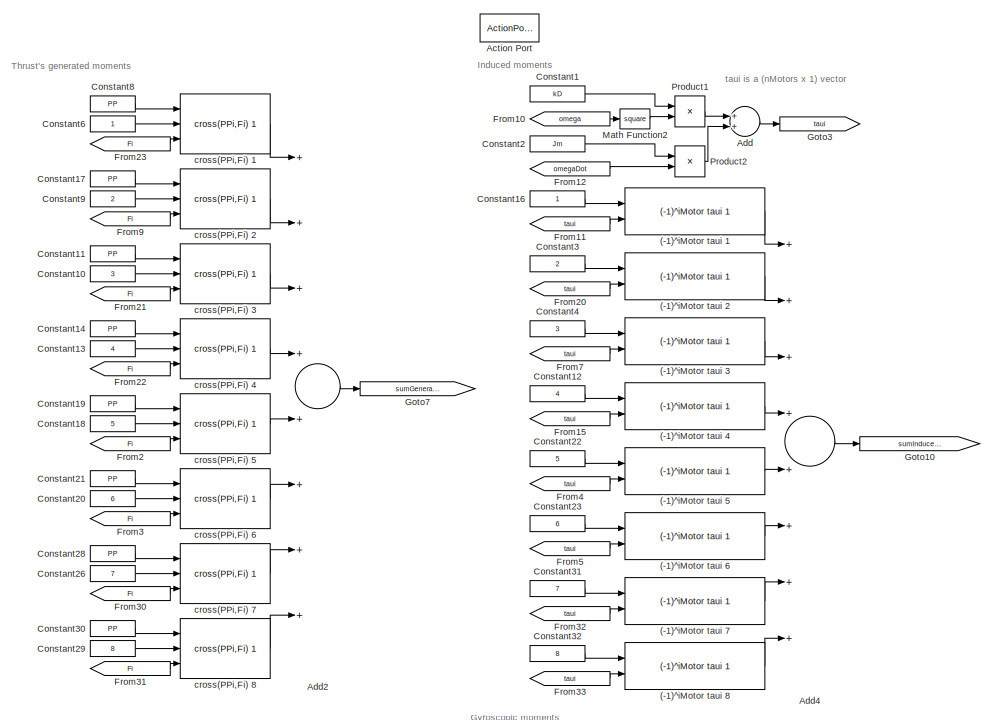
[diagram: UAV/Total applied moment/Moments 8 motors - part 1/2, full width, top band]
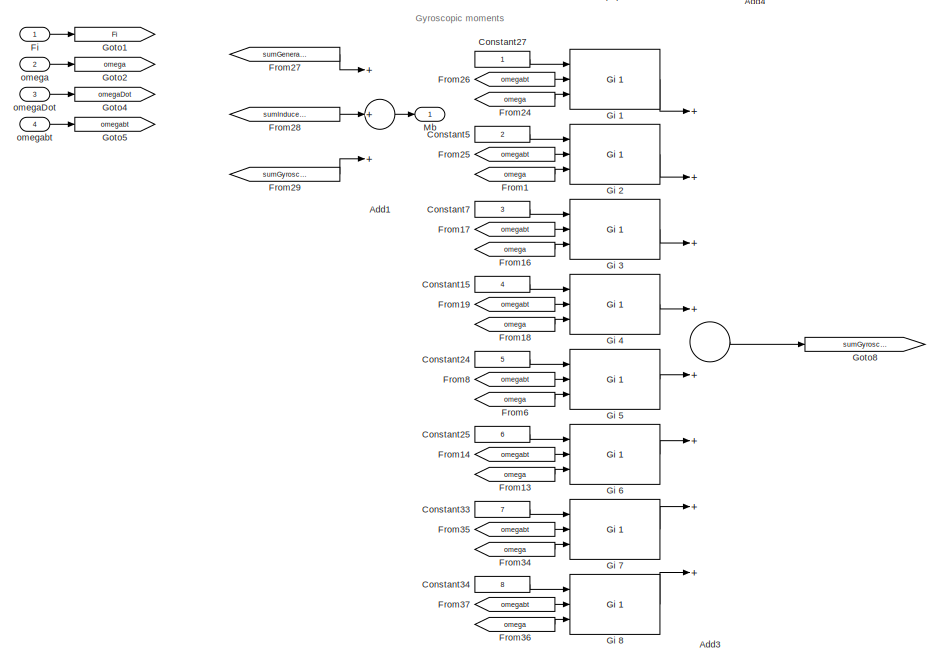
[diagram: UAV/Total applied moment/Moments 8 motors - part 2/2, full width, bottom band]
BLOCK [SubSystem] UAV/Total applied moment/Moments 8 motors
  Ports = [4, 1, 0, 0, 0, 0, 0, 1]
  RequestExecContextInheritance = off
  TreatAsAtomicUnit = on
  Variant = off
BLOCK [Reference] UAV/Total applied moment/Moments 8 motors/(-1)^iMotor taui 1  REF=uav_library/UAV/Total applied moment/Moments 4 motors/(-1)^iMotor taui 1  (lib defined in slx_c8c01abc9ccf)
  Ports = [2, 1]
  SourceBlock = uav_library/UAV/Total applied moment/Moments 4 motors/(-1)^iMotor taui 1
  SourceType = SubSystem
BLOCK [Reference] UAV/Total applied moment/Moments 8 motors/(-1)^iMotor taui 2  REF=uav_library/UAV/Total applied moment/Moments 4 motors/(-1)^iMotor taui 1  (lib defined in slx_c8c01abc9ccf)
  Ports = [2, 1]
  SourceBlock = uav_library/UAV/Total applied moment/Moments 4 motors/(-1)^iMotor taui 1
  SourceType = SubSystem
BLOCK [Reference] UAV/Total applied moment/Moments 8 motors/(-1)^iMotor taui 3  REF=uav_library/UAV/Total applied moment/Moments 4 motors/(-1)^iMotor taui 1  (lib defined in slx_c8c01abc9ccf)
  Ports = [2, 1]
  SourceBlock = uav_library/UAV/Total applied moment/Moments 4 motors/(-1)^iMotor taui 1
  SourceType = SubSystem
BLOCK [Reference] UAV/Total applied moment/Moments 8 motors/(-1)^iMotor taui 4  REF=uav_library/UAV/Total applied moment/Moments 4 motors/(-1)^iMotor taui 1  (lib defined in slx_c8c01abc9ccf)
  Ports = [2, 1]
  SourceBlock = uav_library/UAV/Total applied moment/Moments 4 motors/(-1)^iMotor taui 1
  SourceType = SubSystem
BLOCK [Reference] UAV/Total applied moment/Moments 8 motors/(-1)^iMotor taui 5  REF=uav_library/UAV/Total applied moment/Moments 4 motors/(-1)^iMotor taui 1  (lib defined in slx_c8c01abc9ccf)
  Ports = [2, 1]
  SourceBlock = uav_library/UAV/Total applied moment/Moments 4 motors/(-1)^iMotor taui 1
  SourceType = SubSystem
BLOCK [Reference] UAV/Total applied moment/Moments 8 motors/(-1)^iMotor taui 6  REF=uav_library/UAV/Total applied moment/Moments 4 motors/(-1)^iMotor taui 1  (lib defined in slx_c8c01abc9ccf)
  Ports = [2, 1]
  SourceBlock = uav_library/UAV/Total applied moment/Moments 4 motors/(-1)^iMotor taui 1
  SourceType = SubSystem
BLOCK [Reference] UAV/Total applied moment/Moments 8 motors/(-1)^iMotor taui 7  REF=uav_library/UAV/Total applied moment/Moments 4 motors/(-1)^iMotor taui 1  (lib defined in slx_c8c01abc9ccf)
  Ports = [2, 1]
  SourceBlock = uav_library/UAV/Total applied moment/Moments 4 motors/(-1)^iMotor taui 1
  SourceType = SubSystem
BLOCK [Reference] UAV/Total applied moment/Moments 8 motors/(-1)^iMotor taui 8  REF=uav_library/UAV/Total applied moment/Moments 4 motors/(-1)^iMotor taui 1  (lib defined in slx_c8c01abc9ccf)
  Ports = [2, 1]
  SourceBlock = uav_library/UAV/Total applied moment/Moments 4 motors/(-1)^iMotor taui 1
  SourceType = SubSystem
BLOCK [ActionPort] UAV/Total applied moment/Moments 8 motors/Action Port
  ActionType = elseif
BLOCK [Sum] UAV/Total applied moment/Moments 8 motors/Add
  InputSameDT = off
  OutDataTypeStr = Inherit: Inherit via internal rule
  Ports = [2, 1]
  SaturateOnIntegerOverflow = off
BLOCK [Sum] UAV/Total applied moment/Moments 8 motors/Add1
  InputSameDT = off
  Inputs = +++
  OutDataTypeStr = Inherit: Inherit via internal rule
  Ports = [3, 1]
  SaturateOnIntegerOverflow = off
BLOCK [Sum] UAV/Total applied moment/Moments 8 motors/Add2
  InputSameDT = off
  Inputs = ++++++++
  OutDataTypeStr = Inherit: Inherit via internal rule
  Ports = [8, 1]
  SaturateOnIntegerOverflow = off
BLOCK [Sum] UAV/Total applied moment/Moments 8 motors/Add3
  InputSameDT = off
  Inputs = ++++++++
  OutDataTypeStr = Inherit: Inherit via internal rule
  Ports = [8, 1]
  SaturateOnIntegerOverflow = off
BLOCK [Sum] UAV/Total applied moment/Moments 8 motors/Add4
  InputSameDT = off
  Inputs = ++++++++
  OutDataTypeStr = Inherit: Inherit via internal rule
  Ports = [8, 1]
  SaturateOnIntegerOverflow = off
BLOCK [Constant] UAV/Total applied moment/Moments 8 motors/Constant1
  Value = kD
BLOCK [Constant] UAV/Total applied moment/Moments 8 motors/Constant10
  Value = 3
BLOCK [Constant] UAV/Total applied moment/Moments 8 motors/Constant11
  Value = PP
BLOCK [Constant] UAV/Total applied moment/Moments 8 motors/Constant12
  Value = 4
BLOCK [Constant] UAV/Total applied moment/Moments 8 motors/Constant13
  Value = 4
BLOCK [Constant] UAV/Total applied moment/Moments 8 motors/Constant14
  Value = PP
BLOCK [Constant] UAV/Total applied moment/Moments 8 motors/Constant15
  Value = 4
BLOCK [Constant] UAV/Total applied moment/Moments 8 motors/Constant16
BLOCK [Constant] UAV/Total applied moment/Moments 8 motors/Constant17
  Value = PP
BLOCK [Constant] UAV/Total applied moment/Moments 8 motors/Constant18
  Value = 5
BLOCK [Constant] UAV/Total applied moment/Moments 8 motors/Constant19
  Value = PP
BLOCK [Constant] UAV/Total applied moment/Moments 8 motors/Constant2
  Value = Jm
BLOCK [Constant] UAV/Total applied moment/Moments 8 motors/Constant20
  Value = 6
BLOCK [Constant] UAV/Total applied moment/Moments 8 motors/Constant21
  Value = PP
BLOCK [Constant] UAV/Total applied moment/Moments 8 motors/Constant22
  Value = 5
BLOCK [Constant] UAV/Total applied moment/Moments 8 motors/Constant23
  Value = 6
BLOCK [Constant] UAV/Total applied moment/Moments 8 motors/Constant24
  Value = 5
BLOCK [Constant] UAV/Total applied moment/Moments 8 motors/Constant25
  Value = 6
BLOCK [Constant] UAV/Total applied moment/Moments 8 motors/Constant26
  Value = 7
BLOCK [Constant] UAV/Total applied moment/Moments 8 motors/Constant27
BLOCK [Constant] UAV/Total applied moment/Moments 8 motors/Constant28
  Value = PP
BLOCK [Constant] UAV/Total applied moment/Moments 8 motors/Constant29
  Value = 8
BLOCK [Constant] UAV/Total applied moment/Moments 8 motors/Constant3
  Value = 2
BLOCK [Constant] UAV/Total applied moment/Moments 8 motors/Constant30
  Value = PP
BLOCK [Constant] UAV/Total applied moment/Moments 8 motors/Constant31
  Value = 7
BLOCK [Constant] UAV/Total applied moment/Moments 8 motors/Constant32
  Value = 8
BLOCK [Constant] UAV/Total applied moment/Moments 8 motors/Constant33
  Value = 7
BLOCK [Constant] UAV/Total applied moment/Moments 8 motors/Constant34
  Value = 8
BLOCK [Constant] UAV/Total applied moment/Moments 8 motors/Constant4
  Value = 3
BLOCK [Constant] UAV/Total applied moment/Moments 8 motors/Constant5
  Value = 2
BLOCK [Constant] UAV/Total applied moment/Moments 8 motors/Constant6
BLOCK [Constant] UAV/Total applied moment/Moments 8 motors/Constant7
  Value = 3
BLOCK [Constant] UAV/Total applied moment/Moments 8 motors/Constant8
  Value = PP
BLOCK [Constant] UAV/Total applied moment/Moments 8 motors/Constant9
  Value = 2
BLOCK [Inport] UAV/Total applied moment/Moments 8 motors/Fi
  IconDisplay = Port number
BLOCK [From] UAV/Total applied moment/Moments 8 motors/From1
  GotoTag = omega
BLOCK [From] UAV/Total applied moment/Moments 8 motors/From10
  GotoTag = omega
BLOCK [From] UAV/Total applied moment/Moments 8 motors/From11
  GotoTag = taui
BLOCK [From] UAV/Total applied moment/Moments 8 motors/From12
  GotoTag = omegaDot
BLOCK [From] UAV/Total applied moment/Moments 8 motors/From13
  GotoTag = omega
BLOCK [From] UAV/Total applied moment/Moments 8 motors/From14
  GotoTag = omegabt
BLOCK [From] UAV/Total applied moment/Moments 8 motors/From15
  GotoTag = taui
BLOCK [From] UAV/Total applied moment/Moments 8 motors/From16
  GotoTag = omega
BLOCK [From] UAV/Total applied moment/Moments 8 motors/From17
  GotoTag = omegabt
BLOCK [From] UAV/Total applied moment/Moments 8 motors/From18
  GotoTag = omega
BLOCK [From] UAV/Total applied moment/Moments 8 motors/From19
  GotoTag = omegabt
BLOCK [From] UAV/Total applied moment/Moments 8 motors/From2
  GotoTag = Fi
BLOCK [From] UAV/Total applied moment/Moments 8 motors/From20
  GotoTag = taui
BLOCK [From] UAV/Total applied moment/Moments 8 motors/From21
  GotoTag = Fi
BLOCK [From] UAV/Total applied moment/Moments 8 motors/From22
  GotoTag = Fi
BLOCK [From] UAV/Total applied moment/Moments 8 motors/From23
  GotoTag = Fi
BLOCK [From] UAV/Total applied moment/Moments 8 motors/From24
  GotoTag = omega
BLOCK [From] UAV/Total applied moment/Moments 8 motors/From25
  GotoTag = omegabt
BLOCK [From] UAV/Total applied moment/Moments 8 motors/From26
  GotoTag = omegabt
BLOCK [From] UAV/Total applied moment/Moments 8 motors/From27
  GotoTag = sumGeneratedMoment
BLOCK [From] UAV/Total applied moment/Moments 8 motors/From28
  GotoTag = sumInducedMoment
BLOCK [From] UAV/Total applied moment/Moments 8 motors/From29
  GotoTag = sumGyroscopicMoment
BLOCK [From] UAV/Total applied moment/Moments 8 motors/From3
  GotoTag = Fi
BLOCK [From] UAV/Total applied moment/Moments 8 motors/From30
  GotoTag = Fi
BLOCK [From] UAV/Total applied moment/Moments 8 motors/From31
  GotoTag = Fi
BLOCK [From] UAV/Total applied moment/Moments 8 motors/From32
  GotoTag = taui
BLOCK [From] UAV/Total applied moment/Moments 8 motors/From33
  GotoTag = taui
BLOCK [From] UAV/Total applied moment/Moments 8 motors/From34
  GotoTag = omega
BLOCK [From] UAV/Total applied moment/Moments 8 motors/From35
  GotoTag = omegabt
BLOCK [From] UAV/Total applied moment/Moments 8 motors/From36
  GotoTag = omega
BLOCK [From] UAV/Total applied moment/Moments 8 motors/From37
  GotoTag = omegabt
BLOCK [From] UAV/Total applied moment/Moments 8 motors/From4
  GotoTag = taui
BLOCK [From] UAV/Total applied moment/Moments 8 motors/From5
  GotoTag = taui
BLOCK [From] UAV/Total applied moment/Moments 8 motors/From6
  GotoTag = omega
BLOCK [From] UAV/Total applied moment/Moments 8 motors/From7
  GotoTag = taui
BLOCK [From] UAV/Total applied moment/Moments 8 motors/From8
  GotoTag = omegabt
BLOCK [From] UAV/Total applied moment/Moments 8 motors/From9
  GotoTag = Fi
BLOCK [Reference] UAV/Total applied moment/Moments 8 motors/Gi 1  REF=uav_library/UAV/Total applied moment/Moments 4 motors/Gi 1  (lib defined in slx_c8c01abc9ccf)
  Ports = [3, 1]
  SourceBlock = uav_library/UAV/Total applied moment/Moments 4 motors/Gi 1
  SourceType = SubSystem
BLOCK [Reference] UAV/Total applied moment/Moments 8 motors/Gi 2  REF=uav_library/UAV/Total applied moment/Moments 4 motors/Gi 1  (lib defined in slx_c8c01abc9ccf)
  Ports = [3, 1]
  SourceBlock = uav_library/UAV/Total applied moment/Moments 4 motors/Gi 1
  SourceType = SubSystem
BLOCK [Reference] UAV/Total applied moment/Moments 8 motors/Gi 3  REF=uav_library/UAV/Total applied moment/Moments 4 motors/Gi 1  (lib defined in slx_c8c01abc9ccf)
  Ports = [3, 1]
  SourceBlock = uav_library/UAV/Total applied moment/Moments 4 motors/Gi 1
  SourceType = SubSystem
BLOCK [Reference] UAV/Total applied moment/Moments 8 motors/Gi 4  REF=uav_library/UAV/Total applied moment/Moments 4 motors/Gi 1  (lib defined in slx_c8c01abc9ccf)
  Ports = [3, 1]
  SourceBlock = uav_library/UAV/Total applied moment/Moments 4 motors/Gi 1
  SourceType = SubSystem
BLOCK [Reference] UAV/Total applied moment/Moments 8 motors/Gi 5  REF=uav_library/UAV/Total applied moment/Moments 4 motors/Gi 1  (lib defined in slx_c8c01abc9ccf)
  Ports = [3, 1]
  SourceBlock = uav_library/UAV/Total applied moment/Moments 4 motors/Gi 1
  SourceType = SubSystem
BLOCK [Reference] UAV/Total applied moment/Moments 8 motors/Gi 6  REF=uav_library/UAV/Total applied moment/Moments 4 motors/Gi 1  (lib defined in slx_c8c01abc9ccf)
  Ports = [3, 1]
  SourceBlock = uav_library/UAV/Total applied moment/Moments 4 motors/Gi 1
  SourceType = SubSystem
BLOCK [Reference] UAV/Total applied moment/Moments 8 motors/Gi 7  REF=uav_library/UAV/Total applied moment/Moments 4 motors/Gi 1  (lib defined in slx_c8c01abc9ccf)
  Ports = [3, 1]
  SourceBlock = uav_library/UAV/Total applied moment/Moments 4 motors/Gi 1
  SourceType = SubSystem
BLOCK [Reference] UAV/Total applied moment/Moments 8 motors/Gi 8  REF=uav_library/UAV/Total applied moment/Moments 4 motors/Gi 1  (lib defined in slx_c8c01abc9ccf)
  Ports = [3, 1]
  SourceBlock = uav_library/UAV/Total applied moment/Moments 4 motors/Gi 1
  SourceType = SubSystem
BLOCK [Goto] UAV/Total applied moment/Moments 8 motors/Goto1
  GotoTag = Fi
BLOCK [Goto] UAV/Total applied moment/Moments 8 motors/Goto10
  GotoTag = sumInducedMoment
BLOCK [Goto] UAV/Total applied moment/Moments 8 motors/Goto2
  GotoTag = omega
BLOCK [Goto] UAV/Total applied moment/Moments 8 motors/Goto3
  GotoTag = taui
BLOCK [Goto] UAV/Total applied moment/Moments 8 motors/Goto4
  GotoTag = omegaDot
BLOCK [Goto] UAV/Total applied moment/Moments 8 motors/Goto5
  GotoTag = omegabt
BLOCK [Goto] UAV/Total applied moment/Moments 8 motors/Goto7
  GotoTag = sumGeneratedMoment
BLOCK [Goto] UAV/Total applied moment/Moments 8 motors/Goto8
  GotoTag = sumGyroscopicMoment
BLOCK [Math] UAV/Total applied moment/Moments 8 motors/Math Function2
  Operator = square
  Ports = [1, 1]
BLOCK [Outport] UAV/Total applied moment/Moments 8 motors/Mb
  IconDisplay = Port number
BLOCK [Product] UAV/Total applied moment/Moments 8 motors/Product1
  InputSameDT = off
  OutDataTypeStr = Inherit: Inherit via internal rule
  Ports = [2, 1]
  RndMeth = Floor
  SaturateOnIntegerOverflow = off
BLOCK [Product] UAV/Total applied moment/Moments 8 motors/Product2
  InputSameDT = off
  OutDataTypeStr = Inherit: Inherit via internal rule
  Ports = [2, 1]
  RndMeth = Floor
  SaturateOnIntegerOverflow = off
BLOCK [Reference] UAV/Total applied moment/Moments 8 motors/cross(PPi,Fi) 1  REF=uav_library/UAV/Total applied moment/Moments 4 motors/cross(PPi,Fi) 1  (lib defined in slx_c8c01abc9ccf)
  Ports = [3, 1]
  SourceBlock = uav_library/UAV/Total applied moment/Moments 4 motors/cross(PPi,Fi) 1
  SourceType = SubSystem
BLOCK [Reference] UAV/Total applied moment/Moments 8 motors/cross(PPi,Fi) 2  REF=uav_library/UAV/Total applied moment/Moments 4 motors/cross(PPi,Fi) 1  (lib defined in slx_c8c01abc9ccf)
  Ports = [3, 1]
  SourceBlock = uav_library/UAV/Total applied moment/Moments 4 motors/cross(PPi,Fi) 1
  SourceType = SubSystem
BLOCK [Reference] UAV/Total applied moment/Moments 8 motors/cross(PPi,Fi) 3  REF=uav_library/UAV/Total applied moment/Moments 4 motors/cross(PPi,Fi) 1  (lib defined in slx_c8c01abc9ccf)
  Ports = [3, 1]
  SourceBlock = uav_library/UAV/Total applied moment/Moments 4 motors/cross(PPi,Fi) 1
  SourceType = SubSystem
BLOCK [Reference] UAV/Total applied moment/Moments 8 motors/cross(PPi,Fi) 4  REF=uav_library/UAV/Total applied moment/Moments 4 motors/cross(PPi,Fi) 1  (lib defined in slx_c8c01abc9ccf)
  Ports = [3, 1]
  SourceBlock = uav_library/UAV/Total applied moment/Moments 4 motors/cross(PPi,Fi) 1
  SourceType = SubSystem
BLOCK [Reference] UAV/Total applied moment/Moments 8 motors/cross(PPi,Fi) 5  REF=uav_library/UAV/Total applied moment/Moments 4 motors/cross(PPi,Fi) 1  (lib defined in slx_c8c01abc9ccf)
  Ports = [3, 1]
  SourceBlock = uav_library/UAV/Total applied moment/Moments 4 motors/cross(PPi,Fi) 1
  SourceType = SubSystem
BLOCK [Reference] UAV/Total applied moment/Moments 8 motors/cross(PPi,Fi) 6  REF=uav_library/UAV/Total applied moment/Moments 4 motors/cross(PPi,Fi) 1  (lib defined in slx_c8c01abc9ccf)
  Ports = [3, 1]
  SourceBlock = uav_library/UAV/Total applied moment/Moments 4 motors/cross(PPi,Fi) 1
  SourceType = SubSystem
BLOCK [Reference] UAV/Total applied moment/Moments 8 motors/cross(PPi,Fi) 7  REF=uav_library/UAV/Total applied moment/Moments 4 motors/cross(PPi,Fi) 1  (lib defined in slx_c8c01abc9ccf)
  Ports = [3, 1]
  SourceBlock = uav_library/UAV/Total applied moment/Moments 4 motors/cross(PPi,Fi) 1
  SourceType = SubSystem
BLOCK [Reference] UAV/Total applied moment/Moments 8 motors/cross(PPi,Fi) 8  REF=uav_library/UAV/Total applied moment/Moments 4 motors/cross(PPi,Fi) 1  (lib defined in slx_c8c01abc9ccf)
  Ports = [3, 1]
  SourceBlock = uav_library/UAV/Total applied moment/Moments 4 motors/cross(PPi,Fi) 1
  SourceType = SubSystem
BLOCK [Inport] UAV/Total applied moment/Moments 8 motors/omega
  IconDisplay = Port number
  Port = 2
BLOCK [Inport] UAV/Total applied moment/Moments 8 motors/omegaDot
  IconDisplay = Port number
  Port = 3
BLOCK [Inport] UAV/Total applied moment/Moments 8 motors/omegabt
  IconDisplay = Port number
  Port = 4
BLOCK [Inport] UAV/Total applied moment/omega
  IconDisplay = Port number
  Port = 2
BLOCK [Inport] UAV/Total applied moment/omegaDot
  IconDisplay = Port number
  Port = 3
BLOCK [Inport] UAV/Total applied moment/omegabt
  IconDisplay = Port number
  Port = 4
BLOCK [Inport] UAV/Va
  IconDisplay = Port number
BLOCK [Outport] UAV/ia
  IconDisplay = Port number
  Port = 21
BLOCK [Outport] UAV/iadot
  IconDisplay = Port number
  Port = 22
BLOCK [Outport] UAV/omega
  IconDisplay = Port number
  Port = 19
BLOCK [Outport] UAV/omegadot
  IconDisplay = Port number
  Port = 20
BLOCK [Outport] UAV/p
  IconDisplay = Port number
  Port = 13
BLOCK [Outport] UAV/pdot
  IconDisplay = Port number
  Port = 16
BLOCK [Outport] UAV/phi
  IconDisplay = Port number
  Port = 12
BLOCK [Outport] UAV/psi
  IconDisplay = Port number
  Port = 10
BLOCK [Outport] UAV/q
  IconDisplay = Port number
  Port = 14
BLOCK [Outport] UAV/qdot
  IconDisplay = Port number
  Port = 17
BLOCK [Outport] UAV/r
  IconDisplay = Port number
  Port = 15
BLOCK [Outport] UAV/rdot
  IconDisplay = Port number
  Port = 18
BLOCK [Outport] UAV/theta
  IconDisplay = Port number
  Port = 11
BLOCK [Outport] UAV/u
  IconDisplay = Port number
  Port = 4
BLOCK [Outport] UAV/udot
  IconDisplay = Port number
  Port = 7
BLOCK [Outport] UAV/v
  IconDisplay = Port number
  Port = 5
BLOCK [Outport] UAV/vdot
  IconDisplay = Port number
  Port = 8
BLOCK [Outport] UAV/w
  IconDisplay = Port number
  Port = 6
BLOCK [Outport] UAV/wdot
  IconDisplay = Port number
  Port = 9
BLOCK [Outport] UAV/x
  IconDisplay = Port number
BLOCK [Outport] UAV/y
  IconDisplay = Port number
  Port = 2
BLOCK [Outport] UAV/z
  IconDisplay = Port number
  Port = 3
ANNOTATION UAV: All outputs are (nMotors x 1) vectors
ANNOTATION UAV: Fb is a 3x1 vector
ANNOTATION UAV: Fi is a (nMotors x 1) vector and corresponds to the thrusth of each motor
ANNOTATION UAV: Mb is a 3x1 vector
ANNOTATION UAV: Rbn is the rotation matrix from body frame to NED frame
ANNOTATION UAV: Va is a (nMotors x 1) vector
ANNOTATION UAV: omega is a (nMotors x 1) vector
ANNOTATION UAV: omegabt is a 3x1 vector and corresponds the the angular rate p, q, r
ANNOTATION UAV/6DOF Euler: Acceleration of point P wrt to {t} frame expressed in {b} frame
ANNOTATION UAV/6DOF Euler: Note: velocity of point P wrt to {t} is the same wether it is expressed in the {t} or {n} frame.
ANNOTATION UAV/6DOF Euler: Position of point P in the {t} frame
ANNOTATION UAV/6DOF Euler: Velocity of point P wrt to {t} expressed in {n} frame
ANNOTATION UAV/6DOF Euler: Velocity of point P wrt to {t} frame expressed in {b} frame
ANNOTATION UAV/DC Motors: All constants (km, Bm, kD, etc.) are (nMotors x 1) vectors. All operations are element-wises.
ANNOTATION UAV/DC Motors: All outputs are (nMotors x 1) vectors
ANNOTATION UAV/DC Motors: Va is a (nMotors x 1) vector
ANNOTATION UAV/DC Motors: \omega
ANNOTATION UAV/DC Motors: d\omega/dt
ANNOTATION UAV/DC Motors/DC Motor current dynamic w// La: di_a/dt
ANNOTATION UAV/DC Motors/DC Motor current dynamic w// La: i_a
ANNOTATION UAV/DC Motors/DC Motor current dynamic w//o La: i_a
ANNOTATION UAV/Total applied moment/Moments 4 motors: Gyroscopic moments
ANNOTATION UAV/Total applied moment/Moments 4 motors: Induced moments
ANNOTATION UAV/Total applied moment/Moments 4 motors: Thrust's generated moments
ANNOTATION UAV/Total applied moment/Moments 4 motors: taui is a (nMotors x 1) vector
ANNOTATION UAV/Total applied moment/Moments 6 motors: Gyroscopic moments
ANNOTATION UAV/Total applied moment/Moments 6 motors: Induced moments
ANNOTATION UAV/Total applied moment/Moments 6 motors: Thrust's generated moments
ANNOTATION UAV/Total applied moment/Moments 6 motors: taui is a (nMotors x 1) vector
ANNOTATION UAV/Total applied moment/Moments 8 motors: Gyroscopic moments
ANNOTATION UAV/Total applied moment/Moments 8 motors: Induced moments
ANNOTATION UAV/Total applied moment/Moments 8 motors: Thrust's generated moments
ANNOTATION UAV/Total applied moment/Moments 8 motors: taui is a (nMotors x 1) vector
LINE Check for contraints violation/Add1:1 -> Check for contraints violation/sumVioliationQOut:1
LINE Check for contraints violation/Add2:1 -> Check for contraints violation/Product2:2
LINE Check for contraints violation/Add:1 -> Check for contraints violation/Goto5:1
NET Check for contraints violation/Clock:1 -> Check for contraints violation/Add2:1, Check for contraints violation/Memory1:1, Check for contraints violation/Relational Operator:1
LINE Check for contraints violation/Compare To Constant3:1 -> Check for contraints violation/Logical Operator1:3
LINE Check for contraints violation/Compare To Constant:1 -> Check for contraints violation/Logical Operator:1
LINE Check for contraints violation/Constant1:1 -> Check for contraints violation/Add4:2
LINE Check for contraints violation/Constant2:1 -> Check for contraints violation/Relational Operator:2
LINE Check for contraints violation/Constant3:1 -> Check for contraints violation/Relational Operator3:2
LINE Check for contraints violation/Constant4:1 -> Check for contraints violation/Product:1
LINE Check for contraints violation/Constant5:1 -> Check for contraints violation/Product:2
LINE Check for contraints violation/Constant6:1 -> Check for contraints violation/Product1:1
LINE Check for contraints violation/Constant7:1 -> Check for contraints violation/Product1:2
LINE Check for contraints violation/Data Type Conversion2:1 -> Check for contraints violation/Product2:1
LINE Check for contraints violation/From1:1 -> Check for contraints violation/Add:2
LINE Check for contraints violation/From2:1 -> Check for contraints violation/Relational Operator1:1
LINE Check for contraints violation/From3:1 -> Check for contraints violation/Relational Operator2:1
LINE Check for contraints violation/From4:1 -> Check for contraints violation/Compare To Constant3:1
LINE Check for contraints violation/From5:1 -> Check for contraints violation/Add:1
LINE Check for contraints violation/From7:1 -> Check for contraints violation/Add1:1
LINE Check for contraints violation/From:1 -> Check for contraints violation/Compare To Constant:1
LINE Check for contraints violation/Logical Operator1:1 -> Check for contraints violation/Logical Operator2:2
LINE Check for contraints violation/Logical Operator2:1 -> Check for contraints violation/Data Type Conversion2:1
LINE Check for contraints violation/Logical Operator:1 -> Check for contraints violation/Logical Operator2:1
LINE Check for contraints violation/Memory11:1 -> Check for contraints violation/Goto4:1
LINE Check for contraints violation/Memory1:1 -> Check for contraints violation/Add2:2
LINE Check for contraints violation/Memory2:1 -> Check for contraints violation/Add3:2
LINE Check for contraints violation/Product1:1 -> Check for contraints violation/Relational Operator1:2
LINE Check for contraints violation/Product2:1 -> Check for contraints violation/Add1:2
LINE Check for contraints violation/Product3:1 -> Check for contraints violation/Memory2:1
LINE Check for contraints violation/Product:1 -> Check for contraints violation/Relational Operator2:2
LINE Check for contraints violation/Relational Operator1:1 -> Check for contraints violation/Logical Operator:2
LINE Check for contraints violation/Relational Operator2:1 -> Check for contraints violation/Logical Operator1:1
NET Check for contraints violation/Relational Operator3:1 -> Check for contraints violation/Add4:1, Check for contraints violation/Product3:2
NET Check for contraints violation/Relational Operator:1 -> Check for contraints violation/Logical Operator1:2, Check for contraints violation/Logical Operator:3
LINE Check for contraints violation/q:1 -> Check for contraints violation/Goto1:1
LINE Check for contraints violation/qDesired:1 -> Check for contraints violation/Goto33:1
LINE Check for contraints violation/sumVioliationQ:1 -> Check for contraints violation/Memory11:1
LINE Check inputs limits/Constant5:1 -> Check inputs limits/Relational Operator12:2
LINE Check inputs limits/Constant6:1 -> Check inputs limits/Relational Operator13:2
LINE Check inputs limits/Data Type Conversion2:1 -> Check inputs limits/limitTrigger:1
LINE Check inputs limits/Logical Operator2:1 -> Check inputs limits/Data Type Conversion2:1
LINE Check inputs limits/Relational Operator12:1 -> Check inputs limits/Logical Operator2:1
LINE Check inputs limits/Relational Operator13:1 -> Check inputs limits/Logical Operator2:2
NET Check inputs limits/q:1 -> Check inputs limits/Relational Operator12:1, Check inputs limits/Relational Operator13:1
LINE UAV/6DOF Euler/3x3 Cross Product1:1 -> UAV/6DOF Euler/Add1:2
LINE UAV/6DOF Euler/3x3 Cross Product:1 -> UAV/6DOF Euler/Add:2
LINE UAV/6DOF Euler/Add1:1 -> UAV/6DOF Euler/Divide1:2
NET UAV/6DOF Euler/Add:1 -> UAV/6DOF Euler/Goto10:1, UAV/6DOF Euler/Integrator1:1
LINE UAV/6DOF Euler/Body rate initial condition/Clock1:1 -> UAV/6DOF Euler/Body rate initial condition/Sum4:1
NET UAV/6DOF Euler/Body rate initial condition/Sum4:1 -> UAV/6DOF Euler/Body rate initial condition/Out1:1, UAV/6DOF Euler/Body rate initial condition/Triggered Subsystem2:trigger
LINE UAV/6DOF Euler/Body rate initial condition/Triggered Subsystem2/In1:1 -> UAV/6DOF Euler/Body rate initial condition/Triggered Subsystem2/Out1:1
LINE UAV/6DOF Euler/Body rate initial condition/Triggered Subsystem2:1 -> UAV/6DOF Euler/Body rate initial condition/Out2:1
LINE UAV/6DOF Euler/Body rate initial condition/delay:1 -> UAV/6DOF Euler/Body rate initial condition/Sum4:2
LINE UAV/6DOF Euler/Body rate initial condition/initial:1 -> UAV/6DOF Euler/Body rate initial condition/Triggered Subsystem2:1
LINE UAV/6DOF Euler/Body rate initial condition:1 -> UAV/6DOF Euler/Integrator3:2
LINE UAV/6DOF Euler/Body rate initial condition:2 -> UAV/6DOF Euler/Integrator3:3
LINE UAV/6DOF Euler/Body velocity initial condition/Clock1:1 -> UAV/6DOF Euler/Body velocity initial condition/Sum4:1
NET UAV/6DOF Euler/Body velocity initial condition/Sum4:1 -> UAV/6DOF Euler/Body velocity initial condition/Out1:1, UAV/6DOF Euler/Body velocity initial condition/Triggered Subsystem2:trigger
LINE UAV/6DOF Euler/Body velocity initial condition/Triggered Subsystem2/In1:1 -> UAV/6DOF Euler/Body velocity initial condition/Triggered Subsystem2/Out1:1
LINE UAV/6DOF Euler/Body velocity initial condition/Triggered Subsystem2:1 -> UAV/6DOF Euler/Body velocity initial condition/Out2:1
LINE UAV/6DOF Euler/Body velocity initial condition/delay:1 -> UAV/6DOF Euler/Body velocity initial condition/Sum4:2
LINE UAV/6DOF Euler/Body velocity initial condition/initial:1 -> UAV/6DOF Euler/Body velocity initial condition/Triggered Subsystem2:1
LINE UAV/6DOF Euler/Body velocity initial condition:1 -> UAV/6DOF Euler/Integrator1:2
LINE UAV/6DOF Euler/Body velocity initial condition:2 -> UAV/6DOF Euler/Integrator1:3
LINE UAV/6DOF Euler/Constant1:1 -> UAV/6DOF Euler/Create 3x3 Matrix:4
LINE UAV/6DOF Euler/Constant2:1 -> UAV/6DOF Euler/Create 3x3 Matrix:7
LINE UAV/6DOF Euler/Constant:1 -> UAV/6DOF Euler/Create 3x3 Matrix:1
LINE UAV/6DOF Euler/Create 3x3 Matrix:1 -> UAV/6DOF Euler/Goto5:1
LINE UAV/6DOF Euler/Demux:1 -> UAV/6DOF Euler/Terminator:1
LINE UAV/6DOF Euler/Demux:2 -> UAV/6DOF Euler/Goto27:1
LINE UAV/6DOF Euler/Demux:3 -> UAV/6DOF Euler/Goto26:1
NET UAV/6DOF Euler/Divide1:1 -> UAV/6DOF Euler/Goto14:1, UAV/6DOF Euler/Integrator3:1
LINE UAV/6DOF Euler/Divide2:1 -> UAV/6DOF Euler/Create 3x3 Matrix:8
LINE UAV/6DOF Euler/Divide3:1 -> UAV/6DOF Euler/Create 3x3 Matrix:9
LINE UAV/6DOF Euler/Divide:1 -> UAV/6DOF Euler/Add:1
LINE UAV/6DOF Euler/Euleur angles initial condition/Clock1:1 -> UAV/6DOF Euler/Euleur angles initial condition/Sum4:1
NET UAV/6DOF Euler/Euleur angles initial condition/Sum4:1 -> UAV/6DOF Euler/Euleur angles initial condition/Out1:1, UAV/6DOF Euler/Euleur angles initial condition/Triggered Subsystem2:trigger
LINE UAV/6DOF Euler/Euleur angles initial condition/Triggered Subsystem2/In1:1 -> UAV/6DOF Euler/Euleur angles initial condition/Triggered Subsystem2/Out1:1
LINE UAV/6DOF Euler/Euleur angles initial condition/Triggered Subsystem2:1 -> UAV/6DOF Euler/Euleur angles initial condition/Out2:1
LINE UAV/6DOF Euler/Euleur angles initial condition/delay:1 -> UAV/6DOF Euler/Euleur angles initial condition/Sum4:2
LINE UAV/6DOF Euler/Euleur angles initial condition/initial:1 -> UAV/6DOF Euler/Euleur angles initial condition/Triggered Subsystem2:1
LINE UAV/6DOF Euler/Euleur angles initial condition:1 -> UAV/6DOF Euler/Integrator4:2
LINE UAV/6DOF Euler/Euleur angles initial condition:2 -> UAV/6DOF Euler/Integrator4:3
LINE UAV/6DOF Euler/Fb:1 -> UAV/6DOF Euler/Goto15:1
NET UAV/6DOF Euler/From10:1 -> UAV/6DOF Euler/Trigonometric Function3:1, UAV/6DOF Euler/Trigonometric Function5:1
LINE UAV/6DOF Euler/From11:1 -> UAV/6DOF Euler/Product1:1
LINE UAV/6DOF Euler/From12:1 -> UAV/6DOF Euler/Product1:2
LINE UAV/6DOF Euler/From13:1 -> UAV/6DOF Euler/Product2:1
LINE UAV/6DOF Euler/From14:1 -> UAV/6DOF Euler/Product2:2
LINE UAV/6DOF Euler/From15:1 -> UAV/6DOF Euler/Create 3x3 Matrix:5
LINE UAV/6DOF Euler/From16:1 -> UAV/6DOF Euler/Gain:1
LINE UAV/6DOF Euler/From17:1 -> UAV/6DOF Euler/Divide2:1
LINE UAV/6DOF Euler/From18:1 -> UAV/6DOF Euler/Divide2:2
LINE UAV/6DOF Euler/From19:1 -> UAV/6DOF Euler/Divide3:1
LINE UAV/6DOF Euler/From1:1 -> UAV/6DOF Euler/Divide:1
LINE UAV/6DOF Euler/From20:1 -> UAV/6DOF Euler/Divide3:2
LINE UAV/6DOF Euler/From21:1 -> UAV/6DOF Euler/Product3:1
LINE UAV/6DOF Euler/From22:1 -> UAV/6DOF Euler/Math Function:1
LINE UAV/6DOF Euler/From23:1 -> UAV/6DOF Euler/vPtInT:1
LINE UAV/6DOF Euler/From24:1 -> UAV/6DOF Euler/xP:1
LINE UAV/6DOF Euler/From25:1 -> UAV/6DOF Euler/eulerZYX:1
LINE UAV/6DOF Euler/From26:1 -> UAV/6DOF Euler/Rbn:1
LINE UAV/6DOF Euler/From27:1 -> UAV/6DOF Euler/vPt:1
LINE UAV/6DOF Euler/From28:1 -> UAV/6DOF Euler/omegabt:1
LINE UAV/6DOF Euler/From29:1 -> UAV/6DOF Euler/omegabtDot:1
LINE UAV/6DOF Euler/From2:1 -> UAV/6DOF Euler/3x3 Cross Product:1
LINE UAV/6DOF Euler/From30:1 -> UAV/6DOF Euler/vPtDot:1
LINE UAV/6DOF Euler/From31:1 -> UAV/6DOF Euler/Body velocity initial condition:1
LINE UAV/6DOF Euler/From32:1 -> UAV/6DOF Euler/Body velocity initial condition:2
LINE UAV/6DOF Euler/From33:1 -> UAV/6DOF Euler/Position initial condition:1
LINE UAV/6DOF Euler/From34:1 -> UAV/6DOF Euler/Position initial condition:2
LINE UAV/6DOF Euler/From35:1 -> UAV/6DOF Euler/Divide:2
LINE UAV/6DOF Euler/From36:1 -> UAV/6DOF Euler/Body rate initial condition:1
LINE UAV/6DOF Euler/From37:1 -> UAV/6DOF Euler/Body rate initial condition:2
LINE UAV/6DOF Euler/From38:1 -> UAV/6DOF Euler/Selector1:1
LINE UAV/6DOF Euler/From39:1 -> UAV/6DOF Euler/Selector:1
LINE UAV/6DOF Euler/From3:1 -> UAV/6DOF Euler/3x3 Cross Product:2
LINE UAV/6DOF Euler/From4:1 -> UAV/6DOF Euler/3x3 Cross Product1:1
LINE UAV/6DOF Euler/From5:1 -> UAV/6DOF Euler/Add1:1
LINE UAV/6DOF Euler/From6:1 -> UAV/6DOF Euler/Product:1
LINE UAV/6DOF Euler/From7:1 -> UAV/6DOF Euler/Product:2
LINE UAV/6DOF Euler/From8:1 -> UAV/6DOF Euler/Divide1:1
NET UAV/6DOF Euler/From9:1 -> UAV/6DOF Euler/Trigonometric Function1:1, UAV/6DOF Euler/Trigonometric Function2:1
LINE UAV/6DOF Euler/Gain:1 -> UAV/6DOF Euler/Create 3x3 Matrix:6
LINE UAV/6DOF Euler/I:1 -> UAV/6DOF Euler/Goto8:1
NET UAV/6DOF Euler/Integrator1:1 -> UAV/6DOF Euler/Goto9:1, UAV/6DOF Euler/Product4:2
LINE UAV/6DOF Euler/Integrator2:1 -> UAV/6DOF Euler/Goto12:1
NET UAV/6DOF Euler/Integrator3:1 -> UAV/6DOF Euler/Goto13:1, UAV/6DOF Euler/Product3:2
LINE UAV/6DOF Euler/Integrator4:1 -> UAV/6DOF Euler/Selector2:1
LINE UAV/6DOF Euler/Math Function:1 -> UAV/6DOF Euler/Product4:1
LINE UAV/6DOF Euler/Mb:1 -> UAV/6DOF Euler/Goto16:1
LINE UAV/6DOF Euler/Position initial condition/Clock1:1 -> UAV/6DOF Euler/Position initial condition/Sum4:1
NET UAV/6DOF Euler/Position initial condition/Sum4:1 -> UAV/6DOF Euler/Position initial condition/Out1:1, UAV/6DOF Euler/Position initial condition/Triggered Subsystem2:trigger
LINE UAV/6DOF Euler/Position initial condition/Triggered Subsystem2/In1:1 -> UAV/6DOF Euler/Position initial condition/Triggered Subsystem2/Out1:1
LINE UAV/6DOF Euler/Position initial condition/Triggered Subsystem2:1 -> UAV/6DOF Euler/Position initial condition/Out2:1
LINE UAV/6DOF Euler/Position initial condition/delay:1 -> UAV/6DOF Euler/Position initial condition/Sum4:2
LINE UAV/6DOF Euler/Position initial condition/initial:1 -> UAV/6DOF Euler/Position initial condition/Triggered Subsystem2:1
LINE UAV/6DOF Euler/Position initial condition:1 -> UAV/6DOF Euler/Integrator2:2
LINE UAV/6DOF Euler/Position initial condition:2 -> UAV/6DOF Euler/Integrator2:3
LINE UAV/6DOF Euler/Product1:1 -> UAV/6DOF Euler/Create 3x3 Matrix:2
LINE UAV/6DOF Euler/Product2:1 -> UAV/6DOF Euler/Create 3x3 Matrix:3
LINE UAV/6DOF Euler/Product3:1 -> UAV/6DOF Euler/Integrator4:1
NET UAV/6DOF Euler/Product4:1 -> UAV/6DOF Euler/Goto11:1, UAV/6DOF Euler/Integrator2:1
LINE UAV/6DOF Euler/Product:1 -> UAV/6DOF Euler/3x3 Cross Product1:2
LINE UAV/6DOF Euler/Rotation Angles to Direction Cosine Matrix:1 -> UAV/6DOF Euler/Goto7:1
LINE UAV/6DOF Euler/Selector1:1 -> UAV/6DOF Euler/Euleur angles initial condition:1
NET UAV/6DOF Euler/Selector2:1 -> UAV/6DOF Euler/Demux:1, UAV/6DOF Euler/Goto6:1, UAV/6DOF Euler/Rotation Angles to Direction Cosine Matrix:1
LINE UAV/6DOF Euler/Selector:1 -> UAV/6DOF Euler/Euleur angles initial condition:2
LINE UAV/6DOF Euler/Trigonometric Function1:1 -> UAV/6DOF Euler/Goto1:1
LINE UAV/6DOF Euler/Trigonometric Function2:1 -> UAV/6DOF Euler/Goto:1
LINE UAV/6DOF Euler/Trigonometric Function3:1 -> UAV/6DOF Euler/Goto3:1
LINE UAV/6DOF Euler/Trigonometric Function5:1 -> UAV/6DOF Euler/Goto4:1
LINE UAV/6DOF Euler/eulerZYXDelay:1 -> UAV/6DOF Euler/Goto23:1
LINE UAV/6DOF Euler/eulerZYXInitial:1 -> UAV/6DOF Euler/Goto24:1
LINE UAV/6DOF Euler/m:1 -> UAV/6DOF Euler/Goto25:1
LINE UAV/6DOF Euler/omegabtDelay:1 -> UAV/6DOF Euler/Goto21:1
LINE UAV/6DOF Euler/omegabtInitial:1 -> UAV/6DOF Euler/Goto22:1
LINE UAV/6DOF Euler/vPtDelay:1 -> UAV/6DOF Euler/Goto17:1
LINE UAV/6DOF Euler/vPtInitial:1 -> UAV/6DOF Euler/Goto18:1
LINE UAV/6DOF Euler/xPDelay:1 -> UAV/6DOF Euler/Goto19:1
LINE UAV/6DOF Euler/xPInitial:1 -> UAV/6DOF Euler/Goto20:1
LINE UAV/6DOF Euler:1 -> UAV/Goto14:1
NET UAV/6DOF Euler:2 -> UAV/Goto16:1, UAV/Position:1
NET UAV/6DOF Euler:3 -> UAV/Euler Angles:1, UAV/Goto17:1
LINE UAV/6DOF Euler:4 -> UAV/Goto18:1
LINE UAV/6DOF Euler:5 -> UAV/Goto19:1
LINE UAV/6DOF Euler:6 -> UAV/Goto20:1
LINE UAV/6DOF Euler:7 -> UAV/Goto21:1
LINE UAV/6DOF Euler:8 -> UAV/Goto22:1
LINE UAV/Constant10:1 -> UAV/6DOF Euler:11
LINE UAV/Constant1:1 -> UAV/6DOF Euler:4
LINE UAV/Constant2:1 -> UAV/6DOF Euler:7
LINE UAV/Constant3:1 -> UAV/6DOF Euler:8
LINE UAV/Constant4:1 -> UAV/6DOF Euler:12
LINE UAV/Constant5:1 -> UAV/6DOF Euler:5
LINE UAV/Constant6:1 -> UAV/6DOF Euler:6
LINE UAV/Constant7:1 -> UAV/6DOF Euler:3
LINE UAV/Constant8:1 -> UAV/6DOF Euler:9
LINE UAV/Constant9:1 -> UAV/6DOF Euler:10
LINE UAV/DC Motors/Add1:1 -> UAV/DC Motors/Divide1:1
LINE UAV/DC Motors/Constant2:1 -> UAV/DC Motors/Relational Operator:2
LINE UAV/DC Motors/Constant3:1 -> UAV/DC Motors/Product2:1
LINE UAV/DC Motors/Constant4:1 -> UAV/DC Motors/Product3:1
LINE UAV/DC Motors/Constant5:1 -> UAV/DC Motors/Divide1:2
LINE UAV/DC Motors/Constant6:1 -> UAV/DC Motors/Product4:1
LINE UAV/DC Motors/Constant7:1 -> UAV/DC Motors/Relational Operator:1
LINE UAV/DC Motors/DC Motor current dynamic w// La/Add:1 -> UAV/DC Motors/DC Motor current dynamic w// La/Divide:1
LINE UAV/DC Motors/DC Motor current dynamic w// La/Constant1:1 -> UAV/DC Motors/DC Motor current dynamic w// La/Product1:1
LINE UAV/DC Motors/DC Motor current dynamic w// La/Constant2:1 -> UAV/DC Motors/DC Motor current dynamic w// La/Divide:2
LINE UAV/DC Motors/DC Motor current dynamic w// La/Constant:1 -> UAV/DC Motors/DC Motor current dynamic w// La/Product:1
NET UAV/DC Motors/DC Motor current dynamic w// La/Divide:1 -> UAV/DC Motors/DC Motor current dynamic w// La/Integrator2:1, UAV/DC Motors/DC Motor current dynamic w// La/iaDot:1
NET UAV/DC Motors/DC Motor current dynamic w// La/Integrator2:1 -> UAV/DC Motors/DC Motor current dynamic w// La/Product1:2, UAV/DC Motors/DC Motor current dynamic w// La/ia:1
LINE UAV/DC Motors/DC Motor current dynamic w// La/Product1:1 -> UAV/DC Motors/DC Motor current dynamic w// La/Add:3
LINE UAV/DC Motors/DC Motor current dynamic w// La/Product:1 -> UAV/DC Motors/DC Motor current dynamic w// La/Add:2
LINE UAV/DC Motors/DC Motor current dynamic w// La/Va:1 -> UAV/DC Motors/DC Motor current dynamic w// La/Add:1
LINE UAV/DC Motors/DC Motor current dynamic w// La/ia initial condition/Clock1:1 -> UAV/DC Motors/DC Motor current dynamic w// La/ia initial condition/Sum4:1
LINE UAV/DC Motors/DC Motor current dynamic w// La/ia initial condition/Constant3:1 -> UAV/DC Motors/DC Motor current dynamic w// La/ia initial condition/Triggered Subsystem2:1
LINE UAV/DC Motors/DC Motor current dynamic w// La/ia initial condition/Constant6:1 -> UAV/DC Motors/DC Motor current dynamic w// La/ia initial condition/Sum4:2
NET UAV/DC Motors/DC Motor current dynamic w// La/ia initial condition/Sum4:1 -> UAV/DC Motors/DC Motor current dynamic w// La/ia initial condition/Out1:1, UAV/DC Motors/DC Motor current dynamic w// La/ia initial condition/Triggered Subsystem2:trigger
LINE UAV/DC Motors/DC Motor current dynamic w// La/ia initial condition/Triggered Subsystem2/In1:1 -> UAV/DC Motors/DC Motor current dynamic w// La/ia initial condition/Triggered Subsystem2/Out1:1
LINE UAV/DC Motors/DC Motor current dynamic w// La/ia initial condition/Triggered Subsystem2:1 -> UAV/DC Motors/DC Motor current dynamic w// La/ia initial condition/Out2:1
LINE UAV/DC Motors/DC Motor current dynamic w// La/ia initial condition:1 -> UAV/DC Motors/DC Motor current dynamic w// La/Integrator2:2
LINE UAV/DC Motors/DC Motor current dynamic w// La/ia initial condition:2 -> UAV/DC Motors/DC Motor current dynamic w// La/Integrator2:3
LINE UAV/DC Motors/DC Motor current dynamic w// La/omega:1 -> UAV/DC Motors/DC Motor current dynamic w// La/Product:2
LINE UAV/DC Motors/DC Motor current dynamic w// La:1 -> UAV/DC Motors/Merge:1
LINE UAV/DC Motors/DC Motor current dynamic w// La:2 -> UAV/DC Motors/Merge1:1
LINE UAV/DC Motors/DC Motor current dynamic w//o La/Add2:1 -> UAV/DC Motors/DC Motor current dynamic w//o La/Divide2:1
LINE UAV/DC Motors/DC Motor current dynamic w//o La/Constant7:1 -> UAV/DC Motors/DC Motor current dynamic w//o La/Product5:1
LINE UAV/DC Motors/DC Motor current dynamic w//o La/Constant9:1 -> UAV/DC Motors/DC Motor current dynamic w//o La/Divide2:2
LINE UAV/DC Motors/DC Motor current dynamic w//o La/Divide2:1 -> UAV/DC Motors/DC Motor current dynamic w//o La/Goto5:1
LINE UAV/DC Motors/DC Motor current dynamic w//o La/From1:1 -> UAV/DC Motors/DC Motor current dynamic w//o La/ia:1
LINE UAV/DC Motors/DC Motor current dynamic w//o La/From2:1 -> UAV/DC Motors/DC Motor current dynamic w//o La/iaDot:1
LINE UAV/DC Motors/DC Motor current dynamic w//o La/From7:1 -> UAV/DC Motors/DC Motor current dynamic w//o La/Add2:1
LINE UAV/DC Motors/DC Motor current dynamic w//o La/From8:1 -> UAV/DC Motors/DC Motor current dynamic w//o La/Product5:2
LINE UAV/DC Motors/DC Motor current dynamic w//o La/Ground:1 -> UAV/DC Motors/DC Motor current dynamic w//o La/Goto7:1
LINE UAV/DC Motors/DC Motor current dynamic w//o La/Product5:1 -> UAV/DC Motors/DC Motor current dynamic w//o La/Add2:2
LINE UAV/DC Motors/DC Motor current dynamic w//o La/Va:1 -> UAV/DC Motors/DC Motor current dynamic w//o La/Goto1:1
LINE UAV/DC Motors/DC Motor current dynamic w//o La/omega:1 -> UAV/DC Motors/DC Motor current dynamic w//o La/Goto2:1
LINE UAV/DC Motors/DC Motor current dynamic w//o La:1 -> UAV/DC Motors/Merge:2
LINE UAV/DC Motors/DC Motor current dynamic w//o La:2 -> UAV/DC Motors/Merge1:2
NET UAV/DC Motors/Divide1:1 -> UAV/DC Motors/Goto3:1, UAV/DC Motors/Integrator1:1
LINE UAV/DC Motors/From10:1 -> UAV/DC Motors/DC Motor current dynamic w//o La:ifaction
LINE UAV/DC Motors/From1:1 -> UAV/DC Motors/DC Motor current dynamic w// La:ifaction
LINE UAV/DC Motors/From2:1 -> UAV/DC Motors/Product4:2
LINE UAV/DC Motors/From3:1 -> UAV/DC Motors/ia:1
LINE UAV/DC Motors/From4:1 -> UAV/DC Motors/omega:1
LINE UAV/DC Motors/From5:1 -> UAV/DC Motors/omegaDot:1
LINE UAV/DC Motors/From6:1 -> UAV/DC Motors/iaDot:1
LINE UAV/DC Motors/From7:1 -> UAV/DC Motors/DC Motor current dynamic w// La:2
LINE UAV/DC Motors/From8:1 -> UAV/DC Motors/DC Motor current dynamic w//o La:1
LINE UAV/DC Motors/From9:1 -> UAV/DC Motors/DC Motor current dynamic w//o La:2
LINE UAV/DC Motors/From:1 -> UAV/DC Motors/DC Motor current dynamic w// La:1
LINE UAV/DC Motors/If:1 -> UAV/DC Motors/Goto4:1
LINE UAV/DC Motors/If:2 -> UAV/DC Motors/Goto7:1
NET UAV/DC Motors/Integrator1:1 -> UAV/DC Motors/Goto1:1, UAV/DC Motors/Math Function:1, UAV/DC Motors/Product2:2
LINE UAV/DC Motors/Logical Operator:1 -> UAV/DC Motors/If:1
LINE UAV/DC Motors/Math Function:1 -> UAV/DC Motors/Product3:2
LINE UAV/DC Motors/Merge1:1 -> UAV/DC Motors/Goto6:1
LINE UAV/DC Motors/Merge:1 -> UAV/DC Motors/Goto5:1
LINE UAV/DC Motors/Product2:1 -> UAV/DC Motors/Add1:2
LINE UAV/DC Motors/Product3:1 -> UAV/DC Motors/Add1:3
LINE UAV/DC Motors/Product4:1 -> UAV/DC Motors/Add1:1
LINE UAV/DC Motors/Relational Operator:1 -> UAV/DC Motors/Logical Operator:1
LINE UAV/DC Motors/Va:1 -> UAV/DC Motors/Goto2:1
LINE UAV/DC Motors/omega initial condition/Clock1:1 -> UAV/DC Motors/omega initial condition/Sum4:1
LINE UAV/DC Motors/omega initial condition/Constant3:1 -> UAV/DC Motors/omega initial condition/Triggered Subsystem2:1
LINE UAV/DC Motors/omega initial condition/Constant6:1 -> UAV/DC Motors/omega initial condition/Sum4:2
NET UAV/DC Motors/omega initial condition/Sum4:1 -> UAV/DC Motors/omega initial condition/Out1:1, UAV/DC Motors/omega initial condition/Triggered Subsystem2:trigger
LINE UAV/DC Motors/omega initial condition/Triggered Subsystem2/In1:1 -> UAV/DC Motors/omega initial condition/Triggered Subsystem2/Out1:1
LINE UAV/DC Motors/omega initial condition/Triggered Subsystem2:1 -> UAV/DC Motors/omega initial condition/Out2:1
LINE UAV/DC Motors/omega initial condition:1 -> UAV/DC Motors/Integrator1:2
LINE UAV/DC Motors/omega initial condition:2 -> UAV/DC Motors/Integrator1:3
NET UAV/DC Motors:1 -> UAV/ omega:1, UAV/Goto1:1
LINE UAV/DC Motors:2 -> UAV/Goto4:1
LINE UAV/DC Motors:3 -> UAV/Goto3:1
LINE UAV/DC Motors:4 -> UAV/Goto5:1
LINE UAV/Demux1:1 -> UAV/u:1
LINE UAV/Demux1:2 -> UAV/v:1
LINE UAV/Demux1:3 -> UAV/w:1
LINE UAV/Demux2:1 -> UAV/udot:1
LINE UAV/Demux2:2 -> UAV/vdot:1
LINE UAV/Demux2:3 -> UAV/wdot:1
LINE UAV/Demux3:1 -> UAV/psi:1
LINE UAV/Demux3:2 -> UAV/theta:1
LINE UAV/Demux3:3 -> UAV/phi:1
LINE UAV/Demux4:1 -> UAV/p:1
LINE UAV/Demux4:2 -> UAV/q:1
LINE UAV/Demux4:3 -> UAV/r:1
LINE UAV/Demux5:1 -> UAV/pdot:1
LINE UAV/Demux5:2 -> UAV/qdot:1
LINE UAV/Demux5:3 -> UAV/rdot:1
LINE UAV/Demux:1 -> UAV/x:1
LINE UAV/Demux:2 -> UAV/y:1
LINE UAV/Demux:3 -> UAV/z:1
LINE UAV/From10:1 -> UAV/IC1:1
LINE UAV/From11:1 -> UAV/IC3:1
LINE UAV/From12:1 -> UAV/Demux2:1
LINE UAV/From13:1 -> UAV/IC4:1
LINE UAV/From14:1 -> UAV/IC5:1
LINE UAV/From15:1 -> UAV/Demux5:1
LINE UAV/From16:1 -> UAV/IC:1
LINE UAV/From17:1 -> UAV/omegadot:1
LINE UAV/From18:1 -> UAV/IC2:1
LINE UAV/From19:1 -> UAV/iadot:1
NET UAV/From1:1 -> UAV/6DOF Euler:1, UAV/Fb & Mb:1
LINE UAV/From20:1 -> UAV/Terminator:1
NET UAV/From2:1 -> UAV/6DOF Euler:2, UAV/Fb & Mb:2
LINE UAV/From3:1 -> UAV/Total applied force:1
LINE UAV/From4:1 -> UAV/Total applied force:2
LINE UAV/From5:1 -> UAV/DC Motors:1
LINE UAV/From6:1 -> UAV/Total applied moment:1
LINE UAV/From7:1 -> UAV/Total applied moment:2
LINE UAV/From8:1 -> UAV/Total applied moment:3
LINE UAV/From9:1 -> UAV/Total applied moment:4
LINE UAV/IC1:1 -> UAV/Demux:1
LINE UAV/IC2:1 -> UAV/ia:1
LINE UAV/IC3:1 -> UAV/Demux1:1
LINE UAV/IC4:1 -> UAV/Demux3:1
LINE UAV/IC5:1 -> UAV/Demux4:1
LINE UAV/IC:1 -> UAV/omega:1
LINE UAV/Saturation:1 -> UAV/Goto15:1
LINE UAV/Total applied force/Add:1 -> UAV/Total applied force/Fb:1
NET UAV/Total applied force/Constant1:1 -> UAV/Total applied force/Vector Concatenate:1, UAV/Total applied force/Vector Concatenate:2
NET UAV/Total applied force/Constant2:1 -> UAV/Total applied force/Vector Concatenate1:1, UAV/Total applied force/Vector Concatenate1:2
LINE UAV/Total applied force/Constant3:1 -> UAV/Total applied force/Vector Concatenate1:3
LINE UAV/Total applied force/Constant4:1 -> UAV/Total applied force/Gain:1
LINE UAV/Total applied force/From1:1 -> UAV/Total applied force/Math Function1:1
LINE UAV/Total applied force/From2:1 -> UAV/Total applied force/Product:1
LINE UAV/Total applied force/Gain1:1 -> UAV/Total applied force/Add:2
LINE UAV/Total applied force/Gain:1 -> UAV/Total applied force/Product3:1
LINE UAV/Total applied force/Math Function1:1 -> UAV/Total applied force/Product3:2
NET UAV/Total applied force/Product3:1 -> UAV/Total applied force/Fi:1, UAV/Total applied force/Sum of Elements:1
LINE UAV/Total applied force/Product:1 -> UAV/Total applied force/Gain1:1
LINE UAV/Total applied force/Rbn:1 -> UAV/Total applied force/Goto3:1
LINE UAV/Total applied force/Sum of Elements:1 -> UAV/Total applied force/Vector Concatenate:3
LINE UAV/Total applied force/Vector Concatenate1:1 -> UAV/Total applied force/Product:2
LINE UAV/Total applied force/Vector Concatenate:1 -> UAV/Total applied force/Add:1
LINE UAV/Total applied force/omega:1 -> UAV/Total applied force/Goto1:1
LINE UAV/Total applied force:1 -> UAV/Goto6:1
LINE UAV/Total applied force:2 -> UAV/Goto7:1
LINE UAV/Total applied moment/Constant19:1 -> UAV/Total applied moment/If:1
LINE UAV/Total applied moment/Fi:1 -> UAV/Total applied moment/Goto1:1
LINE UAV/Total applied moment/From13:1 -> UAV/Total applied moment/Moments 4 motors:4
LINE UAV/Total applied moment/From14:1 -> UAV/Total applied moment/Moments 6 motors:4
LINE UAV/Total applied moment/From2:1 -> UAV/Total applied moment/Moments 4 motors:ifaction
LINE UAV/Total applied moment/From30:1 -> UAV/Total applied moment/Moments 6 motors:1
LINE UAV/Total applied moment/From31:1 -> UAV/Total applied moment/Moments 6 motors:2
LINE UAV/Total applied moment/From32:1 -> UAV/Total applied moment/Moments 6 motors:3
LINE UAV/Total applied moment/From33:1 -> UAV/Total applied moment/Moments 8 motors:4
LINE UAV/Total applied moment/From35:1 -> UAV/Total applied moment/Moments 8 motors:1
LINE UAV/Total applied moment/From36:1 -> UAV/Total applied moment/Moments 8 motors:2
LINE UAV/Total applied moment/From37:1 -> UAV/Total applied moment/Moments 8 motors:3
LINE UAV/Total applied moment/From3:1 -> UAV/Total applied moment/Moments 6 motors:ifaction
LINE UAV/Total applied moment/From4:1 -> UAV/Total applied moment/Moments 8 motors:ifaction
LINE UAV/Total applied moment/From5:1 -> UAV/Total applied moment/Moments 4 motors:1
LINE UAV/Total applied moment/From6:1 -> UAV/Total applied moment/Moments 4 motors:2
LINE UAV/Total applied moment/From8:1 -> UAV/Total applied moment/Moments 4 motors:3
LINE UAV/Total applied moment/If:1 -> UAV/Total applied moment/Goto6:1
LINE UAV/Total applied moment/If:2 -> UAV/Total applied moment/Goto12:1
LINE UAV/Total applied moment/If:3 -> UAV/Total applied moment/Goto13:1
LINE UAV/Total applied moment/Merge:1 -> UAV/Total applied moment/Mb:1
LINE UAV/Total applied moment/Moments 4 motors/(-1)^iMotor taui 1/Add:1 -> UAV/Total applied moment/Moments 4 motors/(-1)^iMotor taui 1/Math Function2:2
NET UAV/Total applied moment/Moments 4 motors/(-1)^iMotor taui 1/Constant1:1 -> UAV/Total applied moment/Moments 4 motors/(-1)^iMotor taui 1/Vector Concatenate2:1, UAV/Total applied moment/Moments 4 motors/(-1)^iMotor taui 1/Vector Concatenate2:2
LINE UAV/Total applied moment/Moments 4 motors/(-1)^iMotor taui 1/Constant2:1 -> UAV/Total applied moment/Moments 4 motors/(-1)^iMotor taui 1/Math Function2:1
LINE UAV/Total applied moment/Moments 4 motors/(-1)^iMotor taui 1/Constant3:1 -> UAV/Total applied moment/Moments 4 motors/(-1)^iMotor taui 1/Add:2
LINE UAV/Total applied moment/Moments 4 motors/(-1)^iMotor taui 1/MATLAB Function1:1 -> UAV/Total applied moment/Moments 4 motors/(-1)^iMotor taui 1/Product1:2
LINE UAV/Total applied moment/Moments 4 motors/(-1)^iMotor taui 1/Math Function2:1 -> UAV/Total applied moment/Moments 4 motors/(-1)^iMotor taui 1/Product1:1
LINE UAV/Total applied moment/Moments 4 motors/(-1)^iMotor taui 1/Product1:1 -> UAV/Total applied moment/Moments 4 motors/(-1)^iMotor taui 1/Vector Concatenate2:3
LINE UAV/Total applied moment/Moments 4 motors/(-1)^iMotor taui 1/Vector Concatenate2:1 -> UAV/Total applied moment/Moments 4 motors/(-1)^iMotor taui 1/(-1)^iMotor taui:1
NET UAV/Total applied moment/Moments 4 motors/(-1)^iMotor taui 1/iMotor:1 -> UAV/Total applied moment/Moments 4 motors/(-1)^iMotor taui 1/Add:1, UAV/Total applied moment/Moments 4 motors/(-1)^iMotor taui 1/MATLAB Function1:2
LINE UAV/Total applied moment/Moments 4 motors/(-1)^iMotor taui 1/taui:1 -> UAV/Total applied moment/Moments 4 motors/(-1)^iMotor taui 1/MATLAB Function1:1
LINE UAV/Total applied moment/Moments 4 motors/(-1)^iMotor taui 1:1 -> UAV/Total applied moment/Moments 4 motors/Add4:1
LINE UAV/Total applied moment/Moments 4 motors/(-1)^iMotor taui 2:1 -> UAV/Total applied moment/Moments 4 motors/Add4:2
LINE UAV/Total applied moment/Moments 4 motors/(-1)^iMotor taui 3:1 -> UAV/Total applied moment/Moments 4 motors/Add4:3
LINE UAV/Total applied moment/Moments 4 motors/(-1)^iMotor taui 4:1 -> UAV/Total applied moment/Moments 4 motors/Add4:4
LINE UAV/Total applied moment/Moments 4 motors/Add1:1 -> UAV/Total applied moment/Moments 4 motors/Mb:1
LINE UAV/Total applied moment/Moments 4 motors/Add2:1 -> UAV/Total applied moment/Moments 4 motors/Goto7:1
LINE UAV/Total applied moment/Moments 4 motors/Add3:1 -> UAV/Total applied moment/Moments 4 motors/Goto8:1
LINE UAV/Total applied moment/Moments 4 motors/Add4:1 -> UAV/Total applied moment/Moments 4 motors/Goto10:1
LINE UAV/Total applied moment/Moments 4 motors/Add:1 -> UAV/Total applied moment/Moments 4 motors/Goto3:1
LINE UAV/Total applied moment/Moments 4 motors/Constant10:1 -> UAV/Total applied moment/Moments 4 motors/cross(PPi,Fi) 3:2
LINE UAV/Total applied moment/Moments 4 motors/Constant11:1 -> UAV/Total applied moment/Moments 4 motors/cross(PPi,Fi) 3:1
LINE UAV/Total applied moment/Moments 4 motors/Constant12:1 -> UAV/Total applied moment/Moments 4 motors/(-1)^iMotor taui 4:1
LINE UAV/Total applied moment/Moments 4 motors/Constant13:1 -> UAV/Total applied moment/Moments 4 motors/cross(PPi,Fi) 4:2
LINE UAV/Total applied moment/Moments 4 motors/Constant14:1 -> UAV/Total applied moment/Moments 4 motors/cross(PPi,Fi) 4:1
LINE UAV/Total applied moment/Moments 4 motors/Constant15:1 -> UAV/Total applied moment/Moments 4 motors/Gi 4:1
LINE UAV/Total applied moment/Moments 4 motors/Constant16:1 -> UAV/Total applied moment/Moments 4 motors/(-1)^iMotor taui 1:1
LINE UAV/Total applied moment/Moments 4 motors/Constant17:1 -> UAV/Total applied moment/Moments 4 motors/cross(PPi,Fi) 2:1
LINE UAV/Total applied moment/Moments 4 motors/Constant1:1 -> UAV/Total applied moment/Moments 4 motors/Product1:1
LINE UAV/Total applied moment/Moments 4 motors/Constant27:1 -> UAV/Total applied moment/Moments 4 motors/Gi 1:1
LINE UAV/Total applied moment/Moments 4 motors/Constant2:1 -> UAV/Total applied moment/Moments 4 motors/Product2:1
LINE UAV/Total applied moment/Moments 4 motors/Constant3:1 -> UAV/Total applied moment/Moments 4 motors/(-1)^iMotor taui 2:1
LINE UAV/Total applied moment/Moments 4 motors/Constant4:1 -> UAV/Total applied moment/Moments 4 motors/(-1)^iMotor taui 3:1
LINE UAV/Total applied moment/Moments 4 motors/Constant5:1 -> UAV/Total applied moment/Moments 4 motors/Gi 2:1
LINE UAV/Total applied moment/Moments 4 motors/Constant6:1 -> UAV/Total applied moment/Moments 4 motors/cross(PPi,Fi) 1:2
LINE UAV/Total applied moment/Moments 4 motors/Constant7:1 -> UAV/Total applied moment/Moments 4 motors/Gi 3:1
LINE UAV/Total applied moment/Moments 4 motors/Constant8:1 -> UAV/Total applied moment/Moments 4 motors/cross(PPi,Fi) 1:1
LINE UAV/Total applied moment/Moments 4 motors/Constant9:1 -> UAV/Total applied moment/Moments 4 motors/cross(PPi,Fi) 2:2
LINE UAV/Total applied moment/Moments 4 motors/Fi:1 -> UAV/Total applied moment/Moments 4 motors/Goto1:1
LINE UAV/Total applied moment/Moments 4 motors/From10:1 -> UAV/Total applied moment/Moments 4 motors/Math Function2:1
LINE UAV/Total applied moment/Moments 4 motors/From11:1 -> UAV/Total applied moment/Moments 4 motors/(-1)^iMotor taui 1:2
LINE UAV/Total applied moment/Moments 4 motors/From12:1 -> UAV/Total applied moment/Moments 4 motors/Product2:2
LINE UAV/Total applied moment/Moments 4 motors/From15:1 -> UAV/Total applied moment/Moments 4 motors/(-1)^iMotor taui 4:2
LINE UAV/Total applied moment/Moments 4 motors/From16:1 -> UAV/Total applied moment/Moments 4 motors/Gi 3:3
LINE UAV/Total applied moment/Moments 4 motors/From17:1 -> UAV/Total applied moment/Moments 4 motors/Gi 3:2
LINE UAV/Total applied moment/Moments 4 motors/From18:1 -> UAV/Total applied moment/Moments 4 motors/Gi 4:3
LINE UAV/Total applied moment/Moments 4 motors/From19:1 -> UAV/Total applied moment/Moments 4 motors/Gi 4:2
LINE UAV/Total applied moment/Moments 4 motors/From1:1 -> UAV/Total applied moment/Moments 4 motors/Gi 2:3
LINE UAV/Total applied moment/Moments 4 motors/From20:1 -> UAV/Total applied moment/Moments 4 motors/(-1)^iMotor taui 2:2
LINE UAV/Total applied moment/Moments 4 motors/From21:1 -> UAV/Total applied moment/Moments 4 motors/cross(PPi,Fi) 3:3
LINE UAV/Total applied moment/Moments 4 motors/From22:1 -> UAV/Total applied moment/Moments 4 motors/cross(PPi,Fi) 4:3
LINE UAV/Total applied moment/Moments 4 motors/From23:1 -> UAV/Total applied moment/Moments 4 motors/cross(PPi,Fi) 1:3
LINE UAV/Total applied moment/Moments 4 motors/From24:1 -> UAV/Total applied moment/Moments 4 motors/Gi 1:3
LINE UAV/Total applied moment/Moments 4 motors/From25:1 -> UAV/Total applied moment/Moments 4 motors/Gi 2:2
LINE UAV/Total applied moment/Moments 4 motors/From26:1 -> UAV/Total applied moment/Moments 4 motors/Gi 1:2
LINE UAV/Total applied moment/Moments 4 motors/From27:1 -> UAV/Total applied moment/Moments 4 motors/Add1:1
LINE UAV/Total applied moment/Moments 4 motors/From28:1 -> UAV/Total applied moment/Moments 4 motors/Add1:2
LINE UAV/Total applied moment/Moments 4 motors/From29:1 -> UAV/Total applied moment/Moments 4 motors/Add1:3
LINE UAV/Total applied moment/Moments 4 motors/From7:1 -> UAV/Total applied moment/Moments 4 motors/(-1)^iMotor taui 3:2
LINE UAV/Total applied moment/Moments 4 motors/From9:1 -> UAV/Total applied moment/Moments 4 motors/cross(PPi,Fi) 2:3
LINE UAV/Total applied moment/Moments 4 motors/Gi 1/3x3 Cross Product1:1 -> UAV/Total applied moment/Moments 4 motors/Gi 1/Gi:1
LINE UAV/Total applied moment/Moments 4 motors/Gi 1/Constant3:1 -> UAV/Total applied moment/Moments 4 motors/Gi 1/Math Function:1
NET UAV/Total applied moment/Moments 4 motors/Gi 1/Constant5:1 -> UAV/Total applied moment/Moments 4 motors/Gi 1/Vector Concatenate1:1, UAV/Total applied moment/Moments 4 motors/Gi 1/Vector Concatenate1:2
LINE UAV/Total applied moment/Moments 4 motors/Gi 1/MATLAB Function3:1 -> UAV/Total applied moment/Moments 4 motors/Gi 1/Product:2
LINE UAV/Total applied moment/Moments 4 motors/Gi 1/Math Function:1 -> UAV/Total applied moment/Moments 4 motors/Gi 1/Product:1
LINE UAV/Total applied moment/Moments 4 motors/Gi 1/Product:1 -> UAV/Total applied moment/Moments 4 motors/Gi 1/Vector Concatenate1:3
LINE UAV/Total applied moment/Moments 4 motors/Gi 1/Vector Concatenate1:1 -> UAV/Total applied moment/Moments 4 motors/Gi 1/3x3 Cross Product1:1
NET UAV/Total applied moment/Moments 4 motors/Gi 1/iMotor:1 -> UAV/Total applied moment/Moments 4 motors/Gi 1/MATLAB Function3:2, UAV/Total applied moment/Moments 4 motors/Gi 1/Math Function:2
LINE UAV/Total applied moment/Moments 4 motors/Gi 1/omega:1 -> UAV/Total applied moment/Moments 4 motors/Gi 1/MATLAB Function3:1
LINE UAV/Total applied moment/Moments 4 motors/Gi 1/omegabt:1 -> UAV/Total applied moment/Moments 4 motors/Gi 1/3x3 Cross Product1:2
LINE UAV/Total applied moment/Moments 4 motors/Gi 1:1 -> UAV/Total applied moment/Moments 4 motors/Add3:1
LINE UAV/Total applied moment/Moments 4 motors/Gi 2:1 -> UAV/Total applied moment/Moments 4 motors/Add3:2
LINE UAV/Total applied moment/Moments 4 motors/Gi 3:1 -> UAV/Total applied moment/Moments 4 motors/Add3:3
LINE UAV/Total applied moment/Moments 4 motors/Gi 4:1 -> UAV/Total applied moment/Moments 4 motors/Add3:4
LINE UAV/Total applied moment/Moments 4 motors/Math Function2:1 -> UAV/Total applied moment/Moments 4 motors/Product1:2
LINE UAV/Total applied moment/Moments 4 motors/Product1:1 -> UAV/Total applied moment/Moments 4 motors/Add:1
LINE UAV/Total applied moment/Moments 4 motors/Product2:1 -> UAV/Total applied moment/Moments 4 motors/Add:2
LINE UAV/Total applied moment/Moments 4 motors/cross(PPi,Fi) 1/3x3 Cross Product:1 -> UAV/Total applied moment/Moments 4 motors/cross(PPi,Fi) 1/cross(PPi,Fi):1
NET UAV/Total applied moment/Moments 4 motors/cross(PPi,Fi) 1/Constant7:1 -> UAV/Total applied moment/Moments 4 motors/cross(PPi,Fi) 1/Vector Concatenate3:1, UAV/Total applied moment/Moments 4 motors/cross(PPi,Fi) 1/Vector Concatenate3:2
LINE UAV/Total applied moment/Moments 4 motors/cross(PPi,Fi) 1/Fi:1 -> UAV/Total applied moment/Moments 4 motors/cross(PPi,Fi) 1/MATLAB Function2:1
LINE UAV/Total applied moment/Moments 4 motors/cross(PPi,Fi) 1/MATLAB Function2:1 -> UAV/Total applied moment/Moments 4 motors/cross(PPi,Fi) 1/Vector Concatenate3:3
LINE UAV/Total applied moment/Moments 4 motors/cross(PPi,Fi) 1/MATLAB Function:1 -> UAV/Total applied moment/Moments 4 motors/cross(PPi,Fi) 1/3x3 Cross Product:1
LINE UAV/Total applied moment/Moments 4 motors/cross(PPi,Fi) 1/PP:1 -> UAV/Total applied moment/Moments 4 motors/cross(PPi,Fi) 1/MATLAB Function:1
LINE UAV/Total applied moment/Moments 4 motors/cross(PPi,Fi) 1/Vector Concatenate3:1 -> UAV/Total applied moment/Moments 4 motors/cross(PPi,Fi) 1/3x3 Cross Product:2
NET UAV/Total applied moment/Moments 4 motors/cross(PPi,Fi) 1/iMotor:1 -> UAV/Total applied moment/Moments 4 motors/cross(PPi,Fi) 1/MATLAB Function2:2, UAV/Total applied moment/Moments 4 motors/cross(PPi,Fi) 1/MATLAB Function:2
LINE UAV/Total applied moment/Moments 4 motors/cross(PPi,Fi) 1:1 -> UAV/Total applied moment/Moments 4 motors/Add2:1
LINE UAV/Total applied moment/Moments 4 motors/cross(PPi,Fi) 2:1 -> UAV/Total applied moment/Moments 4 motors/Add2:2
LINE UAV/Total applied moment/Moments 4 motors/cross(PPi,Fi) 3:1 -> UAV/Total applied moment/Moments 4 motors/Add2:3
LINE UAV/Total applied moment/Moments 4 motors/cross(PPi,Fi) 4:1 -> UAV/Total applied moment/Moments 4 motors/Add2:4
LINE UAV/Total applied moment/Moments 4 motors/omega:1 -> UAV/Total applied moment/Moments 4 motors/Goto2:1
LINE UAV/Total applied moment/Moments 4 motors/omegaDot:1 -> UAV/Total applied moment/Moments 4 motors/Goto4:1
LINE UAV/Total applied moment/Moments 4 motors/omegabt:1 -> UAV/Total applied moment/Moments 4 motors/Goto5:1
LINE UAV/Total applied moment/Moments 4 motors:1 -> UAV/Total applied moment/Merge:1
LINE UAV/Total applied moment/Moments 6 motors/(-1)^iMotor taui 1:1 -> UAV/Total applied moment/Moments 6 motors/Add4:1
LINE UAV/Total applied moment/Moments 6 motors/(-1)^iMotor taui 2:1 -> UAV/Total applied moment/Moments 6 motors/Add4:2
LINE UAV/Total applied moment/Moments 6 motors/(-1)^iMotor taui 3:1 -> UAV/Total applied moment/Moments 6 motors/Add4:3
LINE UAV/Total applied moment/Moments 6 motors/(-1)^iMotor taui 4:1 -> UAV/Total applied moment/Moments 6 motors/Add4:4
LINE UAV/Total applied moment/Moments 6 motors/(-1)^iMotor taui 5:1 -> UAV/Total applied moment/Moments 6 motors/Add4:5
LINE UAV/Total applied moment/Moments 6 motors/(-1)^iMotor taui 6:1 -> UAV/Total applied moment/Moments 6 motors/Add4:6
LINE UAV/Total applied moment/Moments 6 motors/Add1:1 -> UAV/Total applied moment/Moments 6 motors/Mb:1
LINE UAV/Total applied moment/Moments 6 motors/Add2:1 -> UAV/Total applied moment/Moments 6 motors/Goto7:1
LINE UAV/Total applied moment/Moments 6 motors/Add3:1 -> UAV/Total applied moment/Moments 6 motors/Goto8:1
LINE UAV/Total applied moment/Moments 6 motors/Add4:1 -> UAV/Total applied moment/Moments 6 motors/Goto10:1
LINE UAV/Total applied moment/Moments 6 motors/Add:1 -> UAV/Total applied moment/Moments 6 motors/Goto3:1
LINE UAV/Total applied moment/Moments 6 motors/Constant10:1 -> UAV/Total applied moment/Moments 6 motors/cross(PPi,Fi) 3:2
LINE UAV/Total applied moment/Moments 6 motors/Constant11:1 -> UAV/Total applied moment/Moments 6 motors/cross(PPi,Fi) 3:1
LINE UAV/Total applied moment/Moments 6 motors/Constant12:1 -> UAV/Total applied moment/Moments 6 motors/(-1)^iMotor taui 4:1
LINE UAV/Total applied moment/Moments 6 motors/Constant13:1 -> UAV/Total applied moment/Moments 6 motors/cross(PPi,Fi) 4:2
LINE UAV/Total applied moment/Moments 6 motors/Constant14:1 -> UAV/Total applied moment/Moments 6 motors/cross(PPi,Fi) 4:1
LINE UAV/Total applied moment/Moments 6 motors/Constant15:1 -> UAV/Total applied moment/Moments 6 motors/Gi 4:1
LINE UAV/Total applied moment/Moments 6 motors/Constant16:1 -> UAV/Total applied moment/Moments 6 motors/(-1)^iMotor taui 1:1
LINE UAV/Total applied moment/Moments 6 motors/Constant17:1 -> UAV/Total applied moment/Moments 6 motors/cross(PPi,Fi) 2:1
LINE UAV/Total applied moment/Moments 6 motors/Constant18:1 -> UAV/Total applied moment/Moments 6 motors/cross(PPi,Fi) 5:2
LINE UAV/Total applied moment/Moments 6 motors/Constant19:1 -> UAV/Total applied moment/Moments 6 motors/cross(PPi,Fi) 5:1
LINE UAV/Total applied moment/Moments 6 motors/Constant1:1 -> UAV/Total applied moment/Moments 6 motors/Product1:1
LINE UAV/Total applied moment/Moments 6 motors/Constant20:1 -> UAV/Total applied moment/Moments 6 motors/cross(PPi,Fi) 6:2
LINE UAV/Total applied moment/Moments 6 motors/Constant21:1 -> UAV/Total applied moment/Moments 6 motors/cross(PPi,Fi) 6:1
LINE UAV/Total applied moment/Moments 6 motors/Constant22:1 -> UAV/Total applied moment/Moments 6 motors/(-1)^iMotor taui 5:1
LINE UAV/Total applied moment/Moments 6 motors/Constant23:1 -> UAV/Total applied moment/Moments 6 motors/(-1)^iMotor taui 6:1
LINE UAV/Total applied moment/Moments 6 motors/Constant24:1 -> UAV/Total applied moment/Moments 6 motors/Gi 5:1
LINE UAV/Total applied moment/Moments 6 motors/Constant25:1 -> UAV/Total applied moment/Moments 6 motors/Gi 6:1
LINE UAV/Total applied moment/Moments 6 motors/Constant27:1 -> UAV/Total applied moment/Moments 6 motors/Gi 1:1
LINE UAV/Total applied moment/Moments 6 motors/Constant2:1 -> UAV/Total applied moment/Moments 6 motors/Product2:1
LINE UAV/Total applied moment/Moments 6 motors/Constant3:1 -> UAV/Total applied moment/Moments 6 motors/(-1)^iMotor taui 2:1
LINE UAV/Total applied moment/Moments 6 motors/Constant4:1 -> UAV/Total applied moment/Moments 6 motors/(-1)^iMotor taui 3:1
LINE UAV/Total applied moment/Moments 6 motors/Constant5:1 -> UAV/Total applied moment/Moments 6 motors/Gi 2:1
LINE UAV/Total applied moment/Moments 6 motors/Constant6:1 -> UAV/Total applied moment/Moments 6 motors/cross(PPi,Fi) 1:2
LINE UAV/Total applied moment/Moments 6 motors/Constant7:1 -> UAV/Total applied moment/Moments 6 motors/Gi 3:1
LINE UAV/Total applied moment/Moments 6 motors/Constant8:1 -> UAV/Total applied moment/Moments 6 motors/cross(PPi,Fi) 1:1
LINE UAV/Total applied moment/Moments 6 motors/Constant9:1 -> UAV/Total applied moment/Moments 6 motors/cross(PPi,Fi) 2:2
LINE UAV/Total applied moment/Moments 6 motors/Fi:1 -> UAV/Total applied moment/Moments 6 motors/Goto1:1
LINE UAV/Total applied moment/Moments 6 motors/From10:1 -> UAV/Total applied moment/Moments 6 motors/Math Function2:1
LINE UAV/Total applied moment/Moments 6 motors/From11:1 -> UAV/Total applied moment/Moments 6 motors/(-1)^iMotor taui 1:2
LINE UAV/Total applied moment/Moments 6 motors/From12:1 -> UAV/Total applied moment/Moments 6 motors/Product2:2
LINE UAV/Total applied moment/Moments 6 motors/From13:1 -> UAV/Total applied moment/Moments 6 motors/Gi 6:3
LINE UAV/Total applied moment/Moments 6 motors/From14:1 -> UAV/Total applied moment/Moments 6 motors/Gi 6:2
LINE UAV/Total applied moment/Moments 6 motors/From15:1 -> UAV/Total applied moment/Moments 6 motors/(-1)^iMotor taui 4:2
LINE UAV/Total applied moment/Moments 6 motors/From16:1 -> UAV/Total applied moment/Moments 6 motors/Gi 3:3
LINE UAV/Total applied moment/Moments 6 motors/From17:1 -> UAV/Total applied moment/Moments 6 motors/Gi 3:2
LINE UAV/Total applied moment/Moments 6 motors/From18:1 -> UAV/Total applied moment/Moments 6 motors/Gi 4:3
LINE UAV/Total applied moment/Moments 6 motors/From19:1 -> UAV/Total applied moment/Moments 6 motors/Gi 4:2
LINE UAV/Total applied moment/Moments 6 motors/From1:1 -> UAV/Total applied moment/Moments 6 motors/Gi 2:3
LINE UAV/Total applied moment/Moments 6 motors/From20:1 -> UAV/Total applied moment/Moments 6 motors/(-1)^iMotor taui 2:2
LINE UAV/Total applied moment/Moments 6 motors/From21:1 -> UAV/Total applied moment/Moments 6 motors/cross(PPi,Fi) 3:3
LINE UAV/Total applied moment/Moments 6 motors/From22:1 -> UAV/Total applied moment/Moments 6 motors/cross(PPi,Fi) 4:3
LINE UAV/Total applied moment/Moments 6 motors/From23:1 -> UAV/Total applied moment/Moments 6 motors/cross(PPi,Fi) 1:3
LINE UAV/Total applied moment/Moments 6 motors/From24:1 -> UAV/Total applied moment/Moments 6 motors/Gi 1:3
LINE UAV/Total applied moment/Moments 6 motors/From25:1 -> UAV/Total applied moment/Moments 6 motors/Gi 2:2
LINE UAV/Total applied moment/Moments 6 motors/From26:1 -> UAV/Total applied moment/Moments 6 motors/Gi 1:2
LINE UAV/Total applied moment/Moments 6 motors/From27:1 -> UAV/Total applied moment/Moments 6 motors/Add1:1
LINE UAV/Total applied moment/Moments 6 motors/From28:1 -> UAV/Total applied moment/Moments 6 motors/Add1:2
LINE UAV/Total applied moment/Moments 6 motors/From29:1 -> UAV/Total applied moment/Moments 6 motors/Add1:3
LINE UAV/Total applied moment/Moments 6 motors/From2:1 -> UAV/Total applied moment/Moments 6 motors/cross(PPi,Fi) 5:3
LINE UAV/Total applied moment/Moments 6 motors/From3:1 -> UAV/Total applied moment/Moments 6 motors/cross(PPi,Fi) 6:3
LINE UAV/Total applied moment/Moments 6 motors/From4:1 -> UAV/Total applied moment/Moments 6 motors/(-1)^iMotor taui 5:2
LINE UAV/Total applied moment/Moments 6 motors/From5:1 -> UAV/Total applied moment/Moments 6 motors/(-1)^iMotor taui 6:2
LINE UAV/Total applied moment/Moments 6 motors/From6:1 -> UAV/Total applied moment/Moments 6 motors/Gi 5:3
LINE UAV/Total applied moment/Moments 6 motors/From7:1 -> UAV/Total applied moment/Moments 6 motors/(-1)^iMotor taui 3:2
LINE UAV/Total applied moment/Moments 6 motors/From8:1 -> UAV/Total applied moment/Moments 6 motors/Gi 5:2
LINE UAV/Total applied moment/Moments 6 motors/From9:1 -> UAV/Total applied moment/Moments 6 motors/cross(PPi,Fi) 2:3
LINE UAV/Total applied moment/Moments 6 motors/Gi 1:1 -> UAV/Total applied moment/Moments 6 motors/Add3:1
LINE UAV/Total applied moment/Moments 6 motors/Gi 2:1 -> UAV/Total applied moment/Moments 6 motors/Add3:2
LINE UAV/Total applied moment/Moments 6 motors/Gi 3:1 -> UAV/Total applied moment/Moments 6 motors/Add3:3
LINE UAV/Total applied moment/Moments 6 motors/Gi 4:1 -> UAV/Total applied moment/Moments 6 motors/Add3:4
LINE UAV/Total applied moment/Moments 6 motors/Gi 5:1 -> UAV/Total applied moment/Moments 6 motors/Add3:5
LINE UAV/Total applied moment/Moments 6 motors/Gi 6:1 -> UAV/Total applied moment/Moments 6 motors/Add3:6
LINE UAV/Total applied moment/Moments 6 motors/Math Function2:1 -> UAV/Total applied moment/Moments 6 motors/Product1:2
LINE UAV/Total applied moment/Moments 6 motors/Product1:1 -> UAV/Total applied moment/Moments 6 motors/Add:1
LINE UAV/Total applied moment/Moments 6 motors/Product2:1 -> UAV/Total applied moment/Moments 6 motors/Add:2
LINE UAV/Total applied moment/Moments 6 motors/cross(PPi,Fi) 1:1 -> UAV/Total applied moment/Moments 6 motors/Add2:1
LINE UAV/Total applied moment/Moments 6 motors/cross(PPi,Fi) 2:1 -> UAV/Total applied moment/Moments 6 motors/Add2:2
LINE UAV/Total applied moment/Moments 6 motors/cross(PPi,Fi) 3:1 -> UAV/Total applied moment/Moments 6 motors/Add2:3
LINE UAV/Total applied moment/Moments 6 motors/cross(PPi,Fi) 4:1 -> UAV/Total applied moment/Moments 6 motors/Add2:4
LINE UAV/Total applied moment/Moments 6 motors/cross(PPi,Fi) 5:1 -> UAV/Total applied moment/Moments 6 motors/Add2:5
LINE UAV/Total applied moment/Moments 6 motors/cross(PPi,Fi) 6:1 -> UAV/Total applied moment/Moments 6 motors/Add2:6
LINE UAV/Total applied moment/Moments 6 motors/omega:1 -> UAV/Total applied moment/Moments 6 motors/Goto2:1
LINE UAV/Total applied moment/Moments 6 motors/omegaDot:1 -> UAV/Total applied moment/Moments 6 motors/Goto4:1
LINE UAV/Total applied moment/Moments 6 motors/omegabt:1 -> UAV/Total applied moment/Moments 6 motors/Goto5:1
LINE UAV/Total applied moment/Moments 6 motors:1 -> UAV/Total applied moment/Merge:2
LINE UAV/Total applied moment/Moments 8 motors/(-1)^iMotor taui 1:1 -> UAV/Total applied moment/Moments 8 motors/Add4:1
LINE UAV/Total applied moment/Moments 8 motors/(-1)^iMotor taui 2:1 -> UAV/Total applied moment/Moments 8 motors/Add4:2
LINE UAV/Total applied moment/Moments 8 motors/(-1)^iMotor taui 3:1 -> UAV/Total applied moment/Moments 8 motors/Add4:3
LINE UAV/Total applied moment/Moments 8 motors/(-1)^iMotor taui 4:1 -> UAV/Total applied moment/Moments 8 motors/Add4:4
LINE UAV/Total applied moment/Moments 8 motors/(-1)^iMotor taui 5:1 -> UAV/Total applied moment/Moments 8 motors/Add4:5
LINE UAV/Total applied moment/Moments 8 motors/(-1)^iMotor taui 6:1 -> UAV/Total applied moment/Moments 8 motors/Add4:6
LINE UAV/Total applied moment/Moments 8 motors/(-1)^iMotor taui 7:1 -> UAV/Total applied moment/Moments 8 motors/Add4:7
LINE UAV/Total applied moment/Moments 8 motors/(-1)^iMotor taui 8:1 -> UAV/Total applied moment/Moments 8 motors/Add4:8
LINE UAV/Total applied moment/Moments 8 motors/Add1:1 -> UAV/Total applied moment/Moments 8 motors/Mb:1
LINE UAV/Total applied moment/Moments 8 motors/Add2:1 -> UAV/Total applied moment/Moments 8 motors/Goto7:1
LINE UAV/Total applied moment/Moments 8 motors/Add3:1 -> UAV/Total applied moment/Moments 8 motors/Goto8:1
LINE UAV/Total applied moment/Moments 8 motors/Add4:1 -> UAV/Total applied moment/Moments 8 motors/Goto10:1
LINE UAV/Total applied moment/Moments 8 motors/Add:1 -> UAV/Total applied moment/Moments 8 motors/Goto3:1
LINE UAV/Total applied moment/Moments 8 motors/Constant10:1 -> UAV/Total applied moment/Moments 8 motors/cross(PPi,Fi) 3:2
LINE UAV/Total applied moment/Moments 8 motors/Constant11:1 -> UAV/Total applied moment/Moments 8 motors/cross(PPi,Fi) 3:1
LINE UAV/Total applied moment/Moments 8 motors/Constant12:1 -> UAV/Total applied moment/Moments 8 motors/(-1)^iMotor taui 4:1
LINE UAV/Total applied moment/Moments 8 motors/Constant13:1 -> UAV/Total applied moment/Moments 8 motors/cross(PPi,Fi) 4:2
LINE UAV/Total applied moment/Moments 8 motors/Constant14:1 -> UAV/Total applied moment/Moments 8 motors/cross(PPi,Fi) 4:1
LINE UAV/Total applied moment/Moments 8 motors/Constant15:1 -> UAV/Total applied moment/Moments 8 motors/Gi 4:1
LINE UAV/Total applied moment/Moments 8 motors/Constant16:1 -> UAV/Total applied moment/Moments 8 motors/(-1)^iMotor taui 1:1
LINE UAV/Total applied moment/Moments 8 motors/Constant17:1 -> UAV/Total applied moment/Moments 8 motors/cross(PPi,Fi) 2:1
LINE UAV/Total applied moment/Moments 8 motors/Constant18:1 -> UAV/Total applied moment/Moments 8 motors/cross(PPi,Fi) 5:2
LINE UAV/Total applied moment/Moments 8 motors/Constant19:1 -> UAV/Total applied moment/Moments 8 motors/cross(PPi,Fi) 5:1
LINE UAV/Total applied moment/Moments 8 motors/Constant1:1 -> UAV/Total applied moment/Moments 8 motors/Product1:1
LINE UAV/Total applied moment/Moments 8 motors/Constant20:1 -> UAV/Total applied moment/Moments 8 motors/cross(PPi,Fi) 6:2
LINE UAV/Total applied moment/Moments 8 motors/Constant21:1 -> UAV/Total applied moment/Moments 8 motors/cross(PPi,Fi) 6:1
LINE UAV/Total applied moment/Moments 8 motors/Constant22:1 -> UAV/Total applied moment/Moments 8 motors/(-1)^iMotor taui 5:1
LINE UAV/Total applied moment/Moments 8 motors/Constant23:1 -> UAV/Total applied moment/Moments 8 motors/(-1)^iMotor taui 6:1
LINE UAV/Total applied moment/Moments 8 motors/Constant24:1 -> UAV/Total applied moment/Moments 8 motors/Gi 5:1
LINE UAV/Total applied moment/Moments 8 motors/Constant25:1 -> UAV/Total applied moment/Moments 8 motors/Gi 6:1
LINE UAV/Total applied moment/Moments 8 motors/Constant26:1 -> UAV/Total applied moment/Moments 8 motors/cross(PPi,Fi) 7:2
LINE UAV/Total applied moment/Moments 8 motors/Constant27:1 -> UAV/Total applied moment/Moments 8 motors/Gi 1:1
LINE UAV/Total applied moment/Moments 8 motors/Constant28:1 -> UAV/Total applied moment/Moments 8 motors/cross(PPi,Fi) 7:1
LINE UAV/Total applied moment/Moments 8 motors/Constant29:1 -> UAV/Total applied moment/Moments 8 motors/cross(PPi,Fi) 8:2
LINE UAV/Total applied moment/Moments 8 motors/Constant2:1 -> UAV/Total applied moment/Moments 8 motors/Product2:1
LINE UAV/Total applied moment/Moments 8 motors/Constant30:1 -> UAV/Total applied moment/Moments 8 motors/cross(PPi,Fi) 8:1
LINE UAV/Total applied moment/Moments 8 motors/Constant31:1 -> UAV/Total applied moment/Moments 8 motors/(-1)^iMotor taui 7:1
LINE UAV/Total applied moment/Moments 8 motors/Constant32:1 -> UAV/Total applied moment/Moments 8 motors/(-1)^iMotor taui 8:1
LINE UAV/Total applied moment/Moments 8 motors/Constant33:1 -> UAV/Total applied moment/Moments 8 motors/Gi 7:1
LINE UAV/Total applied moment/Moments 8 motors/Constant34:1 -> UAV/Total applied moment/Moments 8 motors/Gi 8:1
LINE UAV/Total applied moment/Moments 8 motors/Constant3:1 -> UAV/Total applied moment/Moments 8 motors/(-1)^iMotor taui 2:1
LINE UAV/Total applied moment/Moments 8 motors/Constant4:1 -> UAV/Total applied moment/Moments 8 motors/(-1)^iMotor taui 3:1
LINE UAV/Total applied moment/Moments 8 motors/Constant5:1 -> UAV/Total applied moment/Moments 8 motors/Gi 2:1
LINE UAV/Total applied moment/Moments 8 motors/Constant6:1 -> UAV/Total applied moment/Moments 8 motors/cross(PPi,Fi) 1:2
LINE UAV/Total applied moment/Moments 8 motors/Constant7:1 -> UAV/Total applied moment/Moments 8 motors/Gi 3:1
LINE UAV/Total applied moment/Moments 8 motors/Constant8:1 -> UAV/Total applied moment/Moments 8 motors/cross(PPi,Fi) 1:1
LINE UAV/Total applied moment/Moments 8 motors/Constant9:1 -> UAV/Total applied moment/Moments 8 motors/cross(PPi,Fi) 2:2
LINE UAV/Total applied moment/Moments 8 motors/Fi:1 -> UAV/Total applied moment/Moments 8 motors/Goto1:1
LINE UAV/Total applied moment/Moments 8 motors/From10:1 -> UAV/Total applied moment/Moments 8 motors/Math Function2:1
LINE UAV/Total applied moment/Moments 8 motors/From11:1 -> UAV/Total applied moment/Moments 8 motors/(-1)^iMotor taui 1:2
LINE UAV/Total applied moment/Moments 8 motors/From12:1 -> UAV/Total applied moment/Moments 8 motors/Product2:2
LINE UAV/Total applied moment/Moments 8 motors/From13:1 -> UAV/Total applied moment/Moments 8 motors/Gi 6:3
LINE UAV/Total applied moment/Moments 8 motors/From14:1 -> UAV/Total applied moment/Moments 8 motors/Gi 6:2
LINE UAV/Total applied moment/Moments 8 motors/From15:1 -> UAV/Total applied moment/Moments 8 motors/(-1)^iMotor taui 4:2
LINE UAV/Total applied moment/Moments 8 motors/From16:1 -> UAV/Total applied moment/Moments 8 motors/Gi 3:3
LINE UAV/Total applied moment/Moments 8 motors/From17:1 -> UAV/Total applied moment/Moments 8 motors/Gi 3:2
LINE UAV/Total applied moment/Moments 8 motors/From18:1 -> UAV/Total applied moment/Moments 8 motors/Gi 4:3
LINE UAV/Total applied moment/Moments 8 motors/From19:1 -> UAV/Total applied moment/Moments 8 motors/Gi 4:2
LINE UAV/Total applied moment/Moments 8 motors/From1:1 -> UAV/Total applied moment/Moments 8 motors/Gi 2:3
LINE UAV/Total applied moment/Moments 8 motors/From20:1 -> UAV/Total applied moment/Moments 8 motors/(-1)^iMotor taui 2:2
LINE UAV/Total applied moment/Moments 8 motors/From21:1 -> UAV/Total applied moment/Moments 8 motors/cross(PPi,Fi) 3:3
LINE UAV/Total applied moment/Moments 8 motors/From22:1 -> UAV/Total applied moment/Moments 8 motors/cross(PPi,Fi) 4:3
LINE UAV/Total applied moment/Moments 8 motors/From23:1 -> UAV/Total applied moment/Moments 8 motors/cross(PPi,Fi) 1:3
LINE UAV/Total applied moment/Moments 8 motors/From24:1 -> UAV/Total applied moment/Moments 8 motors/Gi 1:3
LINE UAV/Total applied moment/Moments 8 motors/From25:1 -> UAV/Total applied moment/Moments 8 motors/Gi 2:2
LINE UAV/Total applied moment/Moments 8 motors/From26:1 -> UAV/Total applied moment/Moments 8 motors/Gi 1:2
LINE UAV/Total applied moment/Moments 8 motors/From27:1 -> UAV/Total applied moment/Moments 8 motors/Add1:1
LINE UAV/Total applied moment/Moments 8 motors/From28:1 -> UAV/Total applied moment/Moments 8 motors/Add1:2
LINE UAV/Total applied moment/Moments 8 motors/From29:1 -> UAV/Total applied moment/Moments 8 motors/Add1:3
LINE UAV/Total applied moment/Moments 8 motors/From2:1 -> UAV/Total applied moment/Moments 8 motors/cross(PPi,Fi) 5:3
LINE UAV/Total applied moment/Moments 8 motors/From30:1 -> UAV/Total applied moment/Moments 8 motors/cross(PPi,Fi) 7:3
LINE UAV/Total applied moment/Moments 8 motors/From31:1 -> UAV/Total applied moment/Moments 8 motors/cross(PPi,Fi) 8:3
LINE UAV/Total applied moment/Moments 8 motors/From32:1 -> UAV/Total applied moment/Moments 8 motors/(-1)^iMotor taui 7:2
LINE UAV/Total applied moment/Moments 8 motors/From33:1 -> UAV/Total applied moment/Moments 8 motors/(-1)^iMotor taui 8:2
LINE UAV/Total applied moment/Moments 8 motors/From34:1 -> UAV/Total applied moment/Moments 8 motors/Gi 7:3
LINE UAV/Total applied moment/Moments 8 motors/From35:1 -> UAV/Total applied moment/Moments 8 motors/Gi 7:2
LINE UAV/Total applied moment/Moments 8 motors/From36:1 -> UAV/Total applied moment/Moments 8 motors/Gi 8:3
LINE UAV/Total applied moment/Moments 8 motors/From37:1 -> UAV/Total applied moment/Moments 8 motors/Gi 8:2
LINE UAV/Total applied moment/Moments 8 motors/From3:1 -> UAV/Total applied moment/Moments 8 motors/cross(PPi,Fi) 6:3
LINE UAV/Total applied moment/Moments 8 motors/From4:1 -> UAV/Total applied moment/Moments 8 motors/(-1)^iMotor taui 5:2
LINE UAV/Total applied moment/Moments 8 motors/From5:1 -> UAV/Total applied moment/Moments 8 motors/(-1)^iMotor taui 6:2
LINE UAV/Total applied moment/Moments 8 motors/From6:1 -> UAV/Total applied moment/Moments 8 motors/Gi 5:3
LINE UAV/Total applied moment/Moments 8 motors/From7:1 -> UAV/Total applied moment/Moments 8 motors/(-1)^iMotor taui 3:2
LINE UAV/Total applied moment/Moments 8 motors/From8:1 -> UAV/Total applied moment/Moments 8 motors/Gi 5:2
LINE UAV/Total applied moment/Moments 8 motors/From9:1 -> UAV/Total applied moment/Moments 8 motors/cross(PPi,Fi) 2:3
LINE UAV/Total applied moment/Moments 8 motors/Gi 1:1 -> UAV/Total applied moment/Moments 8 motors/Add3:1
LINE UAV/Total applied moment/Moments 8 motors/Gi 2:1 -> UAV/Total applied moment/Moments 8 motors/Add3:2
LINE UAV/Total applied moment/Moments 8 motors/Gi 3:1 -> UAV/Total applied moment/Moments 8 motors/Add3:3
LINE UAV/Total applied moment/Moments 8 motors/Gi 4:1 -> UAV/Total applied moment/Moments 8 motors/Add3:4
LINE UAV/Total applied moment/Moments 8 motors/Gi 5:1 -> UAV/Total applied moment/Moments 8 motors/Add3:5
LINE UAV/Total applied moment/Moments 8 motors/Gi 6:1 -> UAV/Total applied moment/Moments 8 motors/Add3:6
LINE UAV/Total applied moment/Moments 8 motors/Gi 7:1 -> UAV/Total applied moment/Moments 8 motors/Add3:7
LINE UAV/Total applied moment/Moments 8 motors/Gi 8:1 -> UAV/Total applied moment/Moments 8 motors/Add3:8
LINE UAV/Total applied moment/Moments 8 motors/Math Function2:1 -> UAV/Total applied moment/Moments 8 motors/Product1:2
LINE UAV/Total applied moment/Moments 8 motors/Product1:1 -> UAV/Total applied moment/Moments 8 motors/Add:1
LINE UAV/Total applied moment/Moments 8 motors/Product2:1 -> UAV/Total applied moment/Moments 8 motors/Add:2
LINE UAV/Total applied moment/Moments 8 motors/cross(PPi,Fi) 1:1 -> UAV/Total applied moment/Moments 8 motors/Add2:1
LINE UAV/Total applied moment/Moments 8 motors/cross(PPi,Fi) 2:1 -> UAV/Total applied moment/Moments 8 motors/Add2:2
LINE UAV/Total applied moment/Moments 8 motors/cross(PPi,Fi) 3:1 -> UAV/Total applied moment/Moments 8 motors/Add2:3
LINE UAV/Total applied moment/Moments 8 motors/cross(PPi,Fi) 4:1 -> UAV/Total applied moment/Moments 8 motors/Add2:4
LINE UAV/Total applied moment/Moments 8 motors/cross(PPi,Fi) 5:1 -> UAV/Total applied moment/Moments 8 motors/Add2:5
LINE UAV/Total applied moment/Moments 8 motors/cross(PPi,Fi) 6:1 -> UAV/Total applied moment/Moments 8 motors/Add2:6
LINE UAV/Total applied moment/Moments 8 motors/cross(PPi,Fi) 7:1 -> UAV/Total applied moment/Moments 8 motors/Add2:7
LINE UAV/Total applied moment/Moments 8 motors/cross(PPi,Fi) 8:1 -> UAV/Total applied moment/Moments 8 motors/Add2:8
LINE UAV/Total applied moment/Moments 8 motors/omega:1 -> UAV/Total applied moment/Moments 8 motors/Goto2:1
LINE UAV/Total applied moment/Moments 8 motors/omegaDot:1 -> UAV/Total applied moment/Moments 8 motors/Goto4:1
LINE UAV/Total applied moment/Moments 8 motors/omegabt:1 -> UAV/Total applied moment/Moments 8 motors/Goto5:1
LINE UAV/Total applied moment/Moments 8 motors:1 -> UAV/Total applied moment/Merge:3
LINE UAV/Total applied moment/omega:1 -> UAV/Total applied moment/Goto2:1
LINE UAV/Total applied moment/omegaDot:1 -> UAV/Total applied moment/Goto4:1
LINE UAV/Total applied moment/omegabt:1 -> UAV/Total applied moment/Goto5:1
LINE UAV/Total applied moment:1 -> UAV/Goto9:1
LINE UAV/Va:1 -> UAV/Saturation:1
note: NET lines group one-source signal fan-out (src -> all destinations, sorted); 1:1 wires keep LINE
CHART UAV/Total applied moment/Moments 4 motors/cross(PPi,Fi) 1/MATLAB Function states=1 transitions=1
  STATE_LABEL 'eML_blk_kernel()'
  STATE_LABEL 'SCRIPT:\nfunction vectorOut  = extract_column(matrixIn,colIndex)\n%#codegen\n\nvectorOut = matrixIn(:,colIndex);'
CHART UAV/Total applied moment/Moments 4 motors/cross(PPi,Fi) 1/MATLAB Function2 states=1 transitions=1
  STATE_LABEL 'eML_blk_kernel()'
  STATE_LABEL 'SCRIPT:\nfunction vectorOut  = extract_row(matrixIn,rowIndex)\n%#codegen\n\nvectorOut = matrixIn(rowIndex,:);'
CHART UAV/Total applied moment/Moments 4 motors/(-1)^iMotor taui 1/MATLAB Function1 states=1 transitions=1
  STATE_LABEL 'eML_blk_kernel()'
  STATE_LABEL 'SCRIPT:\nfunction vectorOut  = extract_row(matrixIn,rowIndex)\n%#codegen\n\nvectorOut = matrixIn(rowIndex,:);'
CHART UAV/Total applied moment/Moments 4 motors/Gi 1/MATLAB Function3 states=1 transitions=1
  STATE_LABEL 'eML_blk_kernel()'
  STATE_LABEL 'SCRIPT:\nfunction vectorOut  = extract_row(matrixIn,rowIndex)\n%#codegen\n\nvectorOut = matrixIn(rowIndex,:);'
